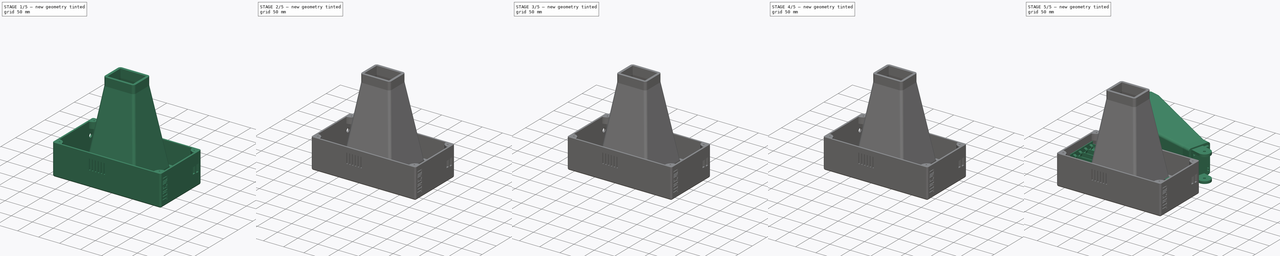
[diagram: build sequence overview — one tinted view per stage of 5, left to right]
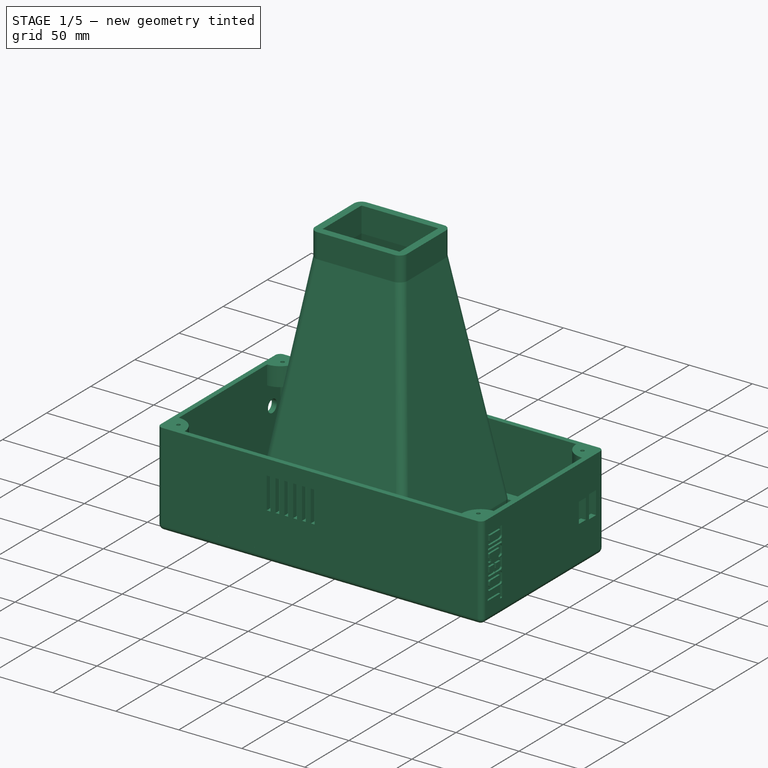
[diagram: stage 1 of 5 — iso view after this stage's code; geometry added in this stage tinted green]
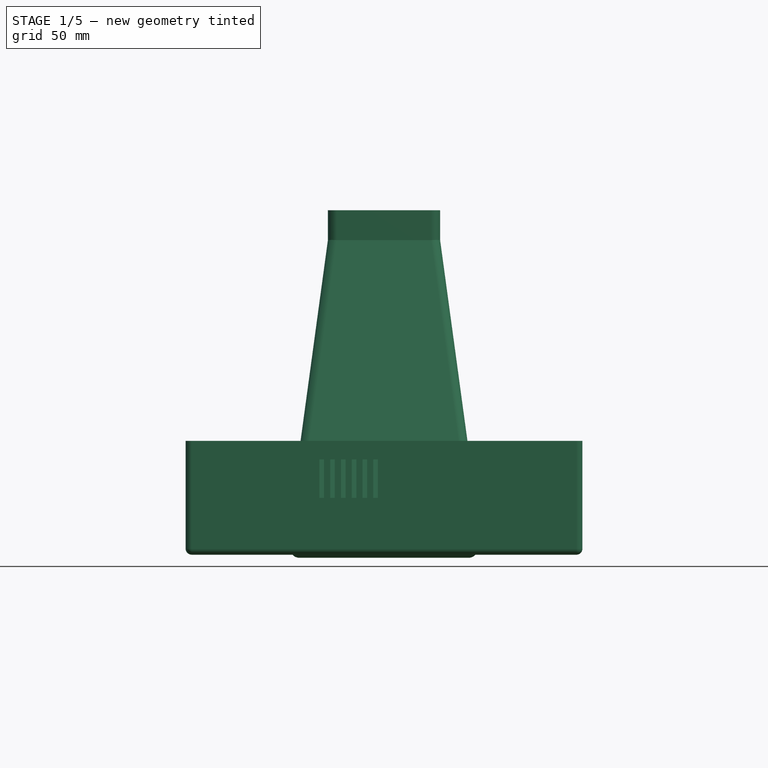
[diagram: stage 1 of 5 — front view after this stage's code; geometry added in this stage tinted green]
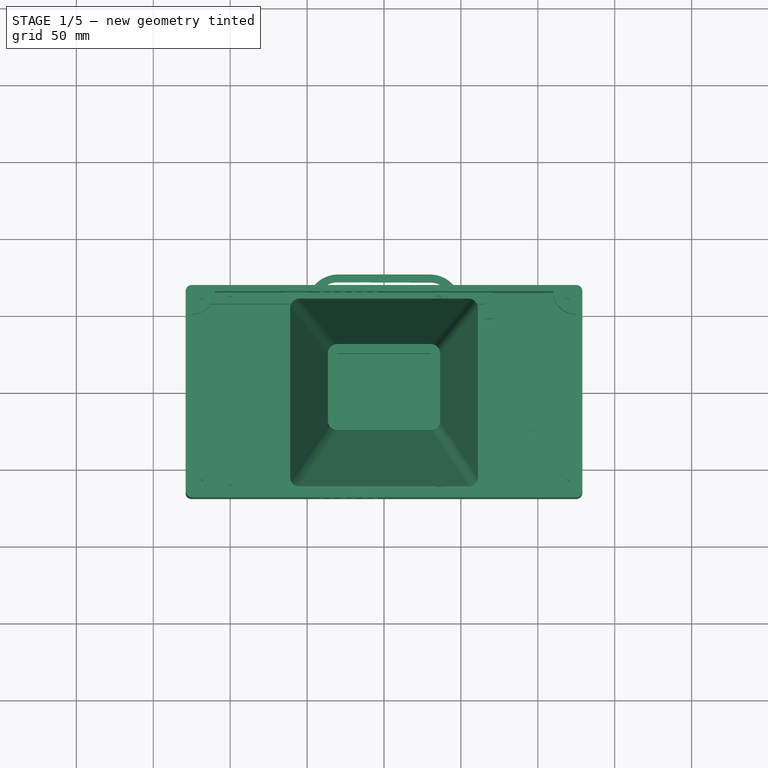
[diagram: stage 1 of 5 — top view after this stage's code; geometry added in this stage tinted green]
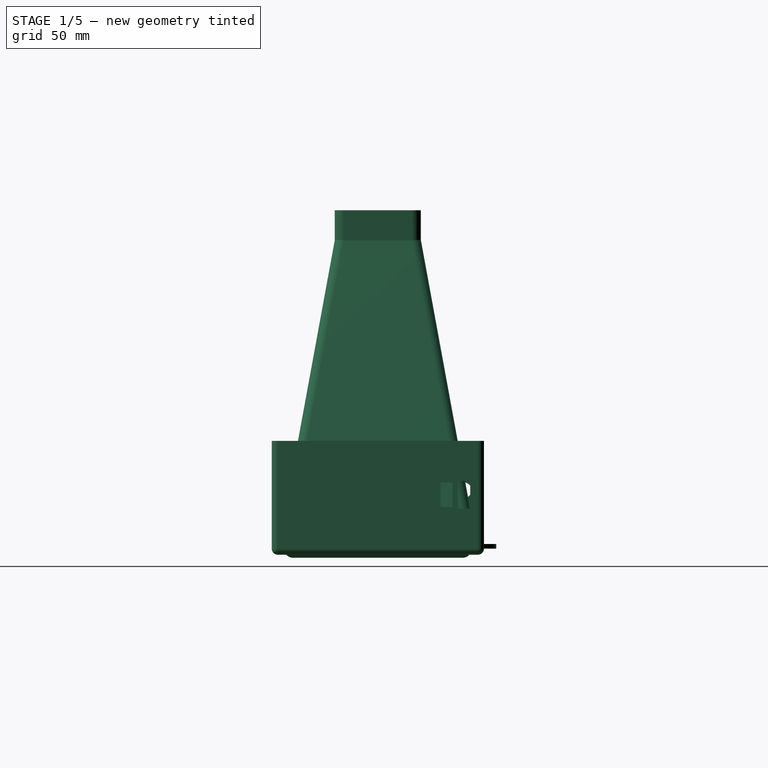
[diagram: stage 1 of 5 — right view after this stage's code; geometry added in this stage tinted green]
FCSTD DOCUMENT  (FreeCAD 0.20R)
Label: Encapsulado FInal
License: All rights reserved
LicenseURL: http://en.wikipedia.org/wiki/All_rights_reserved
objects: Sketcher::SketchObject×71, PartDesign::Pad×45, PartDesign::Pocket×37, PartDesign::Fillet×26, PartDesign::Plane×15, PartDesign::Body×14, Part::Feature×10, App::Part×5, PartDesign::Thickness×3, Part::Compound×2, Part::Compound2×1, PartDesign::Hole×1
note: 336 computed .brp shape members not serialized (recipe doc carries the construction recipe); baked Part::Feature solids carry a one-line shape summary decoded from their .brp

FEATURE [Sketcher::SketchObject] Sketch
  FullyConstrained = true
  MapMode = 5
  Support = -> [XY_Plane001]
  sketch-geometry (4):
    g0: LineSegment StartX=-125 StartY=65 StartZ=0 EndX=125 EndY=65 EndZ=0
    g1: LineSegment StartX=125 StartY=65 StartZ=0 EndX=125 EndY=-65 EndZ=0
    g2: LineSegment StartX=125 StartY=-65 StartZ=0 EndX=-125 EndY=-65 EndZ=0
    g3: LineSegment StartX=-125 StartY=-65 StartZ=0 EndX=-125 EndY=65 EndZ=0
  constraints (11):
    c: Coincident(g0,g1)
    c: Coincident(g1,g2)
    c: Coincident(g2,g3)
    c: Coincident(g3,g0)
    c: Horizontal(g0)
    c: Horizontal(g2)
    c: Vertical(g1)
    c: Vertical(g3)
    c: Symmetric(g1,g0,g-1)
    c: DistanceX(g2,g2) = 250
    c: DistanceY(g1,g1) = 130
FEATURE [PartDesign::Pad] Pad
  Direction = (0,0,1)
  Length = 70
  Length2 = 10
  Profile = -> Sketch
  ReferenceAxis = -> Sketch [N_Axis]
  Type = 0
FEATURE [PartDesign::Thickness] Thickness
  Base = -> Pad [Face6]
  BaseFeature = -> Pad
  Intersection = false
  Join = 0
  Mode = 0
  SupportTransform = false
  Value = 4
FEATURE [PartDesign::Body] Body004  label="SOPORTE"
  Group = -> [Sketch009,Pad007]
  Origin = -> Origin009
  Placement = pos=(-25,0,20) rot=(0,0,1;0rad)
  Tip = -> Pad007
FEATURE [Sketcher::SketchObject] Sketch010
  ExternalGeometry = -> [Thickness]
  FullyConstrained = false
  MapMode = 5
  Support = -> [Thickness]
  sketch-geometry (16):
    g0: LineSegment StartX=-125 StartY=65 StartZ=0 EndX=70.5 EndY=65 EndZ=0
    g1: LineSegment StartX=70.5 StartY=65 StartZ=0 EndX=70.5 EndY=57.93 EndZ=0
    g2: LineSegment StartX=65.5 StartY=57.6 StartZ=0 EndX=-125 EndY=57.6 EndZ=0
    g3: LineSegment StartX=-125 StartY=57.6 StartZ=0 EndX=-125 EndY=65 EndZ=0
    g4: LineSegment StartX=65.5 StartY=57.6 StartZ=0 EndX=65.5 EndY=48.1 EndZ=0
    g5: LineSegment StartX=65.5 StartY=48.1 StartZ=0 EndX=70.5 EndY=48.1 EndZ=0
    g6: LineSegment StartX=70.5 StartY=48.1 StartZ=0 EndX=70.5 EndY=57.93 EndZ=0
    g7: LineSegment StartX=-125 StartY=-65 StartZ=0 EndX=70.5 EndY=-65 EndZ=0
    g8: LineSegment StartX=70.5 StartY=-65 StartZ=0 EndX=70.5 EndY=-57.93 EndZ=0
    g9: LineSegment StartX=65.5 StartY=-57.6 StartZ=0 EndX=-125 EndY=-57.6 EndZ=0
    g10: LineSegment StartX=-125 StartY=-57.6 StartZ=0 EndX=-125 EndY=-65 EndZ=0
    g11: LineSegment StartX=65.5 StartY=-48.1 StartZ=0 EndX=70.5 EndY=-48.1 EndZ=0
    g12: LineSegment StartX=70.5 StartY=-48.1 StartZ=0 EndX=70.5 EndY=-57.93 EndZ=0
    g13: LineSegment StartX=65.5 StartY=57.6 StartZ=0 EndX=65.5 EndY=65 EndZ=0
    g14: LineSegment StartX=65.5 StartY=-57.6 StartZ=0 EndX=65.5 EndY=-65 EndZ=0
    g15: LineSegment StartX=65.5 StartY=-48.1 StartZ=0 EndX=65.5 EndY=-57.6 EndZ=0
  constraints (44):
    c: Coincident(g0,g1)
    c: Coincident(g2,g3)
    c: Coincident(g3,g0)
    c: Horizontal(g0)
    c: Horizontal(g2)
    c: Vertical(g1)
    c: Vertical(g3)
    c: Coincident(g0,g-4)
    c: DistanceX(g0,g0) = 195.5
    c: Coincident(g4,g5)
    c: Coincident(g5,g6)
    c: Horizontal(g5)
    c: Vertical(g4)
    c: Vertical(g6)
    c: DistanceX(g5,g5) = 5
    c: Coincident(g7,g8)
    c: Coincident(g9,g10)
    c: Coincident(g10,g7)
    c: Horizontal(g7)
    c: Horizontal(g9)
    c: Vertical(g8)
    c: Vertical(g10)
    c: Coincident(g7,g-5)
    c: DistanceX(g7,g7) = 195.5
    c: Coincident(g11,g12)
    c: Horizontal(g11)
    c: Vertical(g12)
    c: DistanceX(g11,g11) = 5
    c: Coincident(g2,g4)
    c: Coincident(g1,g6)
    c: Coincident(g12,g8)
    c: Coincident(g13,g2)
    c: PointOnObject(g13,g0)
    c: Vertical(g13)
    c: DistanceY(g13,g13) = 7.4
    c: DistanceY(g4,g4) = 9.5
    c: Coincident(g14,g9)
    c: PointOnObject(g14,g7)
    c: Vertical(g14)
    c: DistanceY(g14,g14) = 7.4
    c: Coincident(g15,g11)
    c: Coincident(g15,g9)
    c: Vertical(g15)
    c: DistanceY(g15,g15) = 9.5
FEATURE [PartDesign::Pad] Pad008
  BaseFeature = -> Thickness
  Direction = (0,0,1)
  Length = 20
  Length2 = 10
  Profile = -> Sketch010
  ReferenceAxis = -> Sketch010 [N_Axis]
  Type = 0
FEATURE [Sketcher::SketchObject] Sketch015
  FullyConstrained = false
  MapMode = 5
  Support = -> [XY_Plane010]
  sketch-geometry (8):
    g0: LineSegment StartX=-124.991 StartY=69 StartZ=0 EndX=124.948 EndY=69 EndZ=0
    g1: LineSegment StartX=129 StartY=64.9482 StartZ=0 EndX=129 EndY=-64.9845 EndZ=0
    g2: LineSegment StartX=124.985 StartY=-69 StartZ=0 EndX=-124.984 EndY=-69 EndZ=0
    g3: LineSegment StartX=-129 StartY=-64.9844 StartZ=0 EndX=-129 EndY=64.9908 EndZ=0
    g4: ArcOfCircle CenterX=124.948 CenterY=64.9482 CenterZ=0 NormalX=0 NormalY=0 NormalZ=1 AngleXU=0 Radius=4.05179 StartAngle=0 EndAngle=1.5708
    g5: ArcOfCircle CenterX=124.985 CenterY=-64.9845 CenterZ=0 NormalX=0 NormalY=0 NormalZ=1 AngleXU=0 Radius=4.01546 StartAngle=4.71239 EndAngle=6.28319
    g6: ArcOfCircle CenterX=-124.984 CenterY=-64.9844 CenterZ=0 NormalX=0 NormalY=0 NormalZ=1 AngleXU=0 Radius=4.01557 StartAngle=3.14159 EndAngle=4.71239
    g7: ArcOfCircle CenterX=-124.991 CenterY=64.9908 CenterZ=0 NormalX=0 NormalY=0 NormalZ=1 AngleXU=0 Radius=4.00925 StartAngle=1.5708 EndAngle=3.14159
  constraints (12):
    c: Horizontal(g0)
    c: Horizontal(g2)
    c: Vertical(g1)
    c: Vertical(g3)
    c: Tangent(g0,g4) = 1.5708
    c: Tangent(g1,g4) = 1.5708
    c: Tangent(g2,g5) = 1.5708
    c: Tangent(g1,g5) = 1.5708
    c: Tangent(g3,g6) = 1.5708
    c: Tangent(g2,g6) = 1.5708
    c: Tangent(g0,g7) = 1.5708
    c: Tangent(g3,g7) = 1.5708
FEATURE [PartDesign::Pad] Pad010
  Direction = (0,0,1)
  Length = 4
  Length2 = 10
  Profile = -> Sketch015
  ReferenceAxis = -> Sketch015 [N_Axis]
  Type = 0
FEATURE [Sketcher::SketchObject] Sketch016
  ExternalGeometry = -> [Pad010]
  FullyConstrained = true
  MapMode = 5
  Placement = pos=(0,0,4) rot=(0,0,1;0rad)
  Support = -> [Pad010]
  sketch-geometry (12):
    g0: Circle CenterX=119 CenterY=59 CenterZ=0 NormalX=0 NormalY=0 NormalZ=1 AngleXU=0 Radius=1.5
    g1: LineSegment StartX=119 StartY=59 StartZ=0 EndX=119 EndY=69 EndZ=0
    g2: LineSegment StartX=119 StartY=59 StartZ=0 EndX=129 EndY=59 EndZ=0
    g3: Circle CenterX=119 CenterY=-59 CenterZ=0 NormalX=0 NormalY=0 NormalZ=1 AngleXU=0 Radius=1.5
    g4: LineSegment StartX=119 StartY=-59 StartZ=0 EndX=129 EndY=-59 EndZ=0
    g5: LineSegment StartX=119 StartY=-59 StartZ=0 EndX=119 EndY=-69 EndZ=0
    g6: Circle CenterX=-119 CenterY=-59 CenterZ=0 NormalX=0 NormalY=0 NormalZ=1 AngleXU=0 Radius=1.5
    g7: LineSegment StartX=-119 StartY=-59 StartZ=0 EndX=-129 EndY=-59 EndZ=0
    g8: LineSegment StartX=-119 StartY=-59 StartZ=0 EndX=-119 EndY=-69 EndZ=0
    g9: Circle CenterX=-119 CenterY=59 CenterZ=0 NormalX=0 NormalY=0 NormalZ=1 AngleXU=0 Radius=1.5
    g10: LineSegment StartX=-119 StartY=59 StartZ=0 EndX=-119 EndY=69 EndZ=0
    g11: LineSegment StartX=-119 StartY=59 StartZ=0 EndX=-129 EndY=59 EndZ=0
  constraints (36):
    c: Radius(g0) = 1.5
    c: Coincident(g1,g0)
    c: PointOnObject(g1,g-3)
    c: Vertical(g1)
    c: Coincident(g2,g0)
    c: PointOnObject(g2,g-4)
    c: Horizontal(g2)
    c: DistanceY(g1,g1) = 10
    c: DistanceX(g2,g2) = 10
    c: Radius(g3) = 1.5
    c: Coincident(g4,g3)
    c: PointOnObject(g4,g-4)
    c: Horizontal(g4)
    c: Coincident(g5,g3)
    c: PointOnObject(g5,g-5)
    c: Vertical(g5)
    c: DistanceX(g4,g4) = 10
    c: DistanceY(g5,g5) = 10
    c: Radius(g6) = 1.5
    c: Coincident(g7,g6)
    c: PointOnObject(g7,g-6)
    c: Horizontal(g7)
    c: Coincident(g8,g6)
    c: PointOnObject(g8,g-5)
    c: Vertical(g8)
    c: DistanceY(g8,g8) = 10
    c: DistanceX(g7,g7) = 10
    c: Radius(g9) = 1.5
    c: Coincident(g10,g9)
    c: PointOnObject(g10,g-3)
    c: Vertical(g10)
    c: Coincident(g11,g9)
    c: PointOnObject(g11,g-6)
    c: Horizontal(g11)
    c: DistanceX(g11,g11) = 10
    c: DistanceY(g10,g10) = 10
FEATURE [PartDesign::Hole] Hole002
  BaseFeature = -> Pad010
  CustomThreadClearance = 0
  Depth = 24
  DepthType = 0
  Diameter = 3.4
  DrillForDepth = false
  DrillPoint = 1
  DrillPointAngle = 118
  HoleCutCountersinkAngle = 90
  HoleCutCustomValues = false
  HoleCutDepth = 3
  HoleCutDiameter = 6.1
  HoleCutType = 1
  ModelThread = false
  Profile = -> Sketch016
  Tapered = false
  TaperedAngle = 90
  ThreadClass = 0
  ThreadDepth = 24
  ThreadDepthType = 0
  ThreadDirection = 0
  ThreadFit = 0
  ThreadSize = 9
  ThreadType = 1
  Threaded = false
  UseCustomThreadClearance = false
FEATURE [Sketcher::SketchObject] Sketch017
  ExternalGeometry = -> [Pad008]
  FullyConstrained = false
  MapMode = 5
  Placement = pos=(0,0,20) rot=(0,0,1;0rad)
  Support = -> [Pad008]
  sketch-geometry (12):
    g0: Circle CenterX=35.5 CenterY=61.5 CenterZ=0 NormalX=0 NormalY=0 NormalZ=1 AngleXU=0 Radius=1.5
    g1: LineSegment StartX=35.5 StartY=61.5 StartZ=0 EndX=35.5 EndY=65 EndZ=0
    g2: LineSegment StartX=35.5 StartY=61.5 StartZ=0 EndX=70.5 EndY=61.5 EndZ=0
    g3: Circle CenterX=-100 CenterY=61.5 CenterZ=0 NormalX=0 NormalY=0 NormalZ=1 AngleXU=0 Radius=1.25558
    g4: LineSegment StartX=-100 StartY=61.5 StartZ=0 EndX=-100 EndY=65 EndZ=0
    g5: LineSegment StartX=-100 StartY=61.5 StartZ=0 EndX=-125 EndY=61.5 EndZ=0
    g6: Circle CenterX=-100 CenterY=-61.5 CenterZ=0 NormalX=0 NormalY=0 NormalZ=1 AngleXU=0 Radius=1.5
    g7: LineSegment StartX=-100 StartY=-61.5 StartZ=0 EndX=-100 EndY=-65 EndZ=0
    g8: LineSegment StartX=-100 StartY=-61.5 StartZ=0 EndX=-125 EndY=-61.5 EndZ=0
    g9: Circle CenterX=35.5 CenterY=-61.5 CenterZ=0 NormalX=0 NormalY=0 NormalZ=1 AngleXU=0 Radius=1.5
    g10: LineSegment StartX=35.5 StartY=-61.5 StartZ=0 EndX=35.5 EndY=-65 EndZ=0
    g11: LineSegment StartX=35.5 StartY=-61.5 StartZ=0 EndX=70.5 EndY=-61.5 EndZ=0
  constraints (35):
    c: Radius(g0) = 1.5
    c: Coincident(g1,g0)
    c: PointOnObject(g1,g-5)
    c: Coincident(g2,g0)
    c: PointOnObject(g2,g-4)
    c: Horizontal(g2)
    c: Vertical(g1)
    c: DistanceX(g2,g2) = 35
    c: DistanceY(g1,g1) = 3.5
    c: Coincident(g4,g3)
    c: PointOnObject(g4,g-5)
    c: Vertical(g4)
    c: Coincident(g5,g3)
    c: PointOnObject(g5,g-3)
    c: Horizontal(g5)
    c: DistanceY(g4,g4) = 3.5
    c: DistanceX(g5,g5) = 25
    c: Coincident(g7,g6)
    c: PointOnObject(g7,g-8)
    c: Vertical(g7)
    c: Coincident(g8,g6)
    c: PointOnObject(g8,g-7)
    c: Horizontal(g8)
    c: Radius(g6) = 1.5
    c: DistanceX(g8,g8) = 25
    c: DistanceY(g7,g7) = 3.5
    c: Radius(g9) = 1.5
    c: Coincident(g10,g9)
    c: PointOnObject(g10,g-8)
    c: Vertical(g10)
    c: Coincident(g11,g9)
    c: PointOnObject(g11,g-6)
    c: Horizontal(g11)
    c: DistanceX(g11,g11) = 35
    c: DistanceY(g10,g10) = 3.5
FEATURE [PartDesign::Pocket] Pocket
  BaseFeature = -> Pad008
  Direction = (0,0,-1)
  Length = 15
  Length2 = 5
  Profile = -> Sketch017
  ReferenceAxis = -> Sketch017 [N_Axis]
  Type = 0
FEATURE [Sketcher::SketchObject] Sketch018
  ExternalGeometry = -> [Pocket]
  FullyConstrained = true
  MapMode = 5
  Placement = pos=(0,0,70) rot=(0,0,1;0rad)
  Support = -> [Pocket]
  sketch-geometry (24):
    g0: LineSegment StartX=-125 StartY=65 StartZ=0 EndX=-110 EndY=65 EndZ=0
    g1: LineSegment StartX=-125 StartY=65 StartZ=0 EndX=-125 EndY=50 EndZ=0
    g2: ArcOfCircle CenterX=-125 CenterY=65 CenterZ=0 NormalX=0 NormalY=0 NormalZ=1 AngleXU=0 Radius=15 StartAngle=4.71239 EndAngle=6.28319
    g3: Circle CenterX=-119 CenterY=59 CenterZ=0 NormalX=0 NormalY=0 NormalZ=1 AngleXU=0 Radius=1.5
    g4: LineSegment StartX=-119 StartY=59 StartZ=0 EndX=-125 EndY=59 EndZ=0
    g5: LineSegment StartX=-119 StartY=59 StartZ=0 EndX=-119 EndY=65 EndZ=0
    g6: LineSegment StartX=125 StartY=65 StartZ=0 EndX=110 EndY=65 EndZ=0
    g7: LineSegment StartX=125 StartY=65 StartZ=0 EndX=125 EndY=50 EndZ=0
    g8: ArcOfCircle CenterX=125 CenterY=65 CenterZ=0 NormalX=0 NormalY=0 NormalZ=1 AngleXU=0 Radius=15 StartAngle=3.14159 EndAngle=4.71239
    g9: Circle CenterX=119 CenterY=59 CenterZ=0 NormalX=0 NormalY=0 NormalZ=1 AngleXU=0 Radius=1.5
    g10: LineSegment StartX=119 StartY=59 StartZ=0 EndX=125 EndY=59 EndZ=0
    g11: LineSegment StartX=119 StartY=59 StartZ=0 EndX=119 EndY=65 EndZ=0
    g12: LineSegment StartX=125 StartY=-65 StartZ=0 EndX=125 EndY=-50 EndZ=0
    g13: LineSegment StartX=125 StartY=-65 StartZ=0 EndX=110 EndY=-65 EndZ=0
    g14: ArcOfCircle CenterX=125 CenterY=-65 CenterZ=0 NormalX=0 NormalY=0 NormalZ=1 AngleXU=0 Radius=15 StartAngle=1.5708 EndAngle=3.14159
    g15: Circle CenterX=119 CenterY=-59 CenterZ=0 NormalX=0 NormalY=0 NormalZ=1 AngleXU=0 Radius=1.5
    g16: LineSegment StartX=119 StartY=-59 StartZ=0 EndX=125 EndY=-59 EndZ=0
    g17: LineSegment StartX=119 StartY=-59 StartZ=0 EndX=119 EndY=-65 EndZ=0
    g18: LineSegment StartX=-125 StartY=-65 StartZ=0 EndX=-110 EndY=-65 EndZ=0
    g19: LineSegment StartX=-125 StartY=-65 StartZ=0 EndX=-125 EndY=-50 EndZ=0
    g20: ArcOfCircle CenterX=-125 CenterY=-65 CenterZ=0 NormalX=0 NormalY=0 NormalZ=1 AngleXU=0 Radius=15 StartAngle=1e-16 EndAngle=1.5708
    g21: Circle CenterX=-119 CenterY=-59 CenterZ=0 NormalX=0 NormalY=0 NormalZ=1 AngleXU=0 Radius=1.5
    g22: LineSegment StartX=-119 StartY=-59 StartZ=0 EndX=-119 EndY=-65 EndZ=0
    g23: LineSegment StartX=-119 StartY=-59 StartZ=0 EndX=-125 EndY=-59 EndZ=0
  constraints (68):
    c: Coincident(g0,g-4)
    c: PointOnObject(g0,g-3)
    c: Coincident(g1,g0)
    c: PointOnObject(g1,g-4)
    c: DistanceX(g0,g0) = 15
    c: Coincident(g2,g0)
    c: Coincident(g2,g0)
    c: Coincident(g2,g1)
    c: Radius(g3) = 1.5
    c: Coincident(g4,g3)
    c: PointOnObject(g4,g1)
    c: Horizontal(g4)
    c: Coincident(g5,g3)
    c: PointOnObject(g5,g0)
    c: Vertical(g5)
    c: DistanceY(g5,g5) = 6
    c: DistanceX(g4,g4) = 6
    c: Coincident(g6,g-6)
    c: PointOnObject(g6,g-3)
    c: Coincident(g7,g6)
    c: PointOnObject(g7,g-6)
    c: DistanceX(g6,g6) = 15
    c: Coincident(g8,g6)
    c: Coincident(g8,g6)
    c: Coincident(g8,g7)
    c: Radius(g9) = 1.5
    c: Coincident(g10,g9)
    c: PointOnObject(g10,g7)
    c: Horizontal(g10)
    c: Coincident(g11,g9)
    c: PointOnObject(g11,g6)
    c: Vertical(g11)
    c: DistanceX(g10,g10) = 6
    c: DistanceY(g11,g11) = 6
    c: Coincident(g12,g-6)
    c: PointOnObject(g12,g-6)
    c: Coincident(g13,g12)
    c: PointOnObject(g13,g-5)
    c: DistanceY(g12,g12) = 15
    c: Coincident(g14,g12)
    c: Coincident(g14,g13)
    c: Coincident(g14,g12)
    c: Radius(g15) = 1.5
    c: Coincident(g16,g15)
    c: PointOnObject(g16,g12)
    c: Horizontal(g16)
    c: Coincident(g17,g15)
    c: PointOnObject(g17,g13)
    c: Vertical(g17)
    c: DistanceX(g16,g16) = 6
    c: DistanceY(g17,g17) = 6
    c: Coincident(g18,g-5)
    c: PointOnObject(g18,g-5)
    c: Coincident(g19,g18)
    c: PointOnObject(g19,g-4)
    c: DistanceX(g18,g18) = 15
    c: Coincident(g20,g18)
    c: Coincident(g20,g18)
    c: Coincident(g20,g19)
    c: Radius(g21) = 1.5
    c: Coincident(g22,g21)
    c: PointOnObject(g22,g18)
    c: Vertical(g22)
    c: Coincident(g23,g21)
    c: PointOnObject(g23,g19)
    c: Horizontal(g23)
    c: DistanceX(g23,g23) = 6
    c: DistanceY(g22,g22) = 6
FEATURE [PartDesign::Pad] Pad011
  BaseFeature = -> Pocket
  Direction = (0,0,1)
  Length = 15
  Length2 = 10
  Profile = -> Sketch018
  ReferenceAxis = -> Sketch018 [N_Axis]
  Reversed = true
  Type = 0
FEATURE [Sketcher::SketchObject] Sketch019
  FullyConstrained = false
  MapMode = 5
  Placement = pos=(0,0,-4) rot=(1,0,0;3.14159rad)
  Support = -> [Pad011]
  sketch-geometry (4):
    g0: LineSegment StartX=-111.093 StartY=45.8732 StartZ=0 EndX=50.9068 EndY=45.8732 EndZ=0
    g1: LineSegment StartX=50.9068 StartY=45.8732 StartZ=0 EndX=50.9068 EndY=-46.1268 EndZ=0
    g2: LineSegment StartX=50.9068 StartY=-46.1268 StartZ=0 EndX=-111.093 EndY=-46.1268 EndZ=0
    g3: LineSegment StartX=-111.093 StartY=-46.1268 StartZ=0 EndX=-111.093 EndY=45.8732 EndZ=0
  constraints (10):
    c: Coincident(g0,g1)
    c: Coincident(g1,g2)
    c: Coincident(g2,g3)
    c: Coincident(g3,g0)
    c: Horizontal(g0)
    c: Horizontal(g2)
    c: Vertical(g1)
    c: Vertical(g3)
    c: DistanceX(g0,g0) = 162
    c: DistanceY(g1,g1) = 92
FEATURE [PartDesign::Pocket] Pocket001
  BaseFeature = -> Pad011
  Direction = (0,0,1)
  Length = 4
  Length2 = 5
  Profile = -> Sketch019
  ReferenceAxis = -> Sketch019 [N_Axis]
  Type = 0
FEATURE [PartDesign::Body] Body011  label="supp_cover001"
  Group = -> [CopyDatumPlane004,Sketch075,Pad050,Sketch076,Pocket033,Sketch077,Pocket034,Fillet024,Fillet025,Sketch078,Pocket035]
  Origin = -> Origin016
  Tip = -> Pocket035
FEATURE [Sketcher::SketchObject] Sketch079
  FullyConstrained = false
  MapMode = 5
  Placement = pos=(0,-55,0) rot=(0,0.707107,0.707107;3.14159rad)
  sketch-geometry (8):
    g0: LineSegment StartX=-55 StartY=9 StartZ=0 EndX=-50 EndY=9 EndZ=0
    g1: LineSegment StartX=-50 StartY=9 StartZ=0 EndX=-50 EndY=4 EndZ=0
    g2: LineSegment StartX=-50 StartY=4 StartZ=0 EndX=-55 EndY=4 EndZ=0
    g3: LineSegment StartX=-55 StartY=4 StartZ=0 EndX=-55 EndY=9 EndZ=0
    g4: LineSegment StartX=55 StartY=4 StartZ=0 EndX=50 EndY=4 EndZ=0
    g5: LineSegment StartX=50 StartY=4 StartZ=0 EndX=50 EndY=9 EndZ=0
    g6: LineSegment StartX=50 StartY=9 StartZ=0 EndX=55 EndY=9 EndZ=0
    g7: LineSegment StartX=55 StartY=9 StartZ=0 EndX=55 EndY=4 EndZ=0
  constraints (20):
    c: Coincident(g0,g1)
    c: Coincident(g1,g2)
    c: Coincident(g2,g3)
    c: Coincident(g3,g0)
    c: Horizontal(g0)
    c: Horizontal(g2)
    c: Vertical(g1)
    c: Vertical(g3)
    c: Coincident(g4,g5)
    c: Coincident(g5,g6)
    c: Coincident(g6,g7)
    c: Coincident(g7,g4)
    c: Horizontal(g4)
    c: Horizontal(g6)
    c: Vertical(g5)
    c: Vertical(g7)
    c: DistanceX(g4,g4) = 5
    c: DistanceX(g0,g0) = 5
    c: DistanceY(g5,g5) = 5
    c: DistanceY(g1,g1) = 5
FEATURE [Sketcher::SketchObject] Sketch080
  FullyConstrained = true
  MapMode = 5
  Support = -> [XY_Plane017]
  sketch-geometry (4):
    g0: LineSegment StartX=-55 StartY=55 StartZ=0 EndX=55 EndY=55 EndZ=0
    g1: LineSegment StartX=55 StartY=55 StartZ=0 EndX=55 EndY=-55 EndZ=0
    g2: LineSegment StartX=55 StartY=-55 StartZ=0 EndX=-55 EndY=-55 EndZ=0
    g3: LineSegment StartX=-55 StartY=-55 StartZ=0 EndX=-55 EndY=55 EndZ=0
  constraints (10):
    c: Coincident(g0,g1)
    c: Coincident(g1,g2)
    c: Coincident(g2,g3)
    c: Coincident(g3,g0)
    c: Horizontal(g2)
    c: Vertical(g1)
    c: DistanceX(g0,g0) = 110
    c: DistanceY(g1,g1) = 110
    c: Symmetric(g0,g0,g-2)
    c: Symmetric(g2,g0,g-1)
FEATURE [PartDesign::Pad] Pad051
  Direction = (0,0,1)
  Length = 220
  Length2 = 10
  Profile = -> Sketch080
  ReferenceAxis = -> Sketch080 [N_Axis]
  Type = 0
FEATURE [Sketcher::SketchObject] Sketch081
  FullyConstrained = true
  MapMode = 5
  Placement = pos=(0,-55,0) rot=(1,0,0;1.5708rad)
  Support = -> [Pad051]
  sketch-geometry (18):
    g0: GeomPoint X=0 Y=220 Z=0
    g1: GeomPoint X=-30.5 Y=220 Z=0
    g2: GeomPoint X=30.5 Y=220 Z=0
    g3: GeomPoint X=0 Y=20 Z=0
    g4: GeomPoint X=-55 Y=20 Z=0
    g5: GeomPoint X=55 Y=20 Z=0
    g6: GeomPoint X=-30.5 Y=200 Z=0
    g7: GeomPoint X=30.5 Y=200 Z=0
    g8: GeomPoint X=-55 Y=220 Z=0
    g9: GeomPoint X=55 Y=220 Z=0
    g10: LineSegment StartX=-55 StartY=20 StartZ=0 EndX=-30.5 EndY=200 EndZ=0
    g11: LineSegment StartX=-30.5 StartY=220 StartZ=0 EndX=-30.5 EndY=200 EndZ=0
    g12: LineSegment StartX=-55 StartY=220 StartZ=0 EndX=-30.5 EndY=220 EndZ=0
    g13: LineSegment StartX=-55 StartY=220 StartZ=0 EndX=-55 EndY=20 EndZ=0
    g14: LineSegment StartX=30.5 StartY=220 StartZ=0 EndX=55 EndY=220 EndZ=0
    g15: LineSegment StartX=55 StartY=20 StartZ=0 EndX=55 EndY=220 EndZ=0
    g16: LineSegment StartX=55 StartY=20 StartZ=0 EndX=30.5 EndY=200 EndZ=0
    g17: LineSegment StartX=30.5 StartY=200 StartZ=0 EndX=30.5 EndY=220 EndZ=0
  constraints (34):
    c: Vertical(g-1,g0)
    c: DistanceY(g-1,g0) = 220
    c: Horizontal(g2,g0)
    c: DistanceX(g1,g2) = 61
    c: Symmetric(g1,g2,g-2)
    c: Vertical(g-1,g3)
    c: DistanceY(g-1,g3) = 20
    c: Horizontal(g3,g5)
    c: DistanceX(g4,g5) = 110
    c: Symmetric(g4,g5,g-2)
    c: Vertical(g7,g2)
    c: Vertical(g6,g1)
    c: Horizontal(g7,g6)
    c: DistanceY(g7,g2) = 20
    c: Vertical(g9,g5)
    c: Vertical(g4,g8)
    c: Horizontal(g8,g0)
    c: Horizontal(g9,g2)
    c: Coincident(g10,g4)
    c: Coincident(g10,g6)
    c: Coincident(g11,g1)
    c: Coincident(g11,g10)
    c: Coincident(g12,g8)
    c: Coincident(g12,g11)
    c: Coincident(g13,g12)
    c: Coincident(g13,g10)
    c: Coincident(g14,g2)
    c: Coincident(g14,g9)
    c: Coincident(g15,g5)
    c: Coincident(g15,g14)
    c: Coincident(g16,g15)
    c: Coincident(g16,g7)
    c: Coincident(g17,g16)
    c: Coincident(g17,g14)
FEATURE [PartDesign::Pocket] Pocket036
  BaseFeature = -> Pad051
  Direction = (0,1,-2e-16)
  Length = 158
  Length2 = 5
  Profile = -> Sketch081
  ReferenceAxis = -> Sketch081 [N_Axis]
  Type = 0
FEATURE [PartDesign::Plane] DatumPlane012
  Length = 156.577
  MapMode = 5
  Placement = pos=(55,0,0) rot=(0.57735,0.57735,0.57735;2.0944rad)
  ResizeMode = 0
  Support = -> [Pocket036]
  Width = 279.577
FEATURE [Sketcher::SketchObject] Sketch082
  FullyConstrained = true
  MapMode = 5
  Placement = pos=(55,0,0) rot=(0.57735,0.57735,0.57735;2.0944rad)
  Support = -> [DatumPlane012]
  sketch-geometry (18):
    g0: GeomPoint X=0 Y=220 Z=0
    g1: GeomPoint X=-22 Y=220 Z=0
    g2: GeomPoint X=22 Y=220 Z=0
    g3: GeomPoint X=-22 Y=200 Z=0
    g4: GeomPoint X=22 Y=200 Z=0
    g5: GeomPoint X=0 Y=20 Z=0
    g6: GeomPoint X=-55 Y=20 Z=0
    g7: GeomPoint X=55 Y=20 Z=0
    g8: GeomPoint X=-55 Y=220 Z=0
    g9: GeomPoint X=55 Y=220 Z=0
    g10: LineSegment StartX=-55 StartY=20 StartZ=0 EndX=-22 EndY=200 EndZ=0
    g11: LineSegment StartX=-22 StartY=220 StartZ=0 EndX=-22 EndY=200 EndZ=0
    g12: LineSegment StartX=-55 StartY=220 StartZ=0 EndX=-22 EndY=220 EndZ=0
    g13: LineSegment StartX=-55 StartY=220 StartZ=0 EndX=-55 EndY=20 EndZ=0
    g14: LineSegment StartX=22 StartY=220 StartZ=0 EndX=22 EndY=200 EndZ=0
    g15: LineSegment StartX=22 StartY=200 StartZ=0 EndX=55 EndY=20 EndZ=0
    g16: LineSegment StartX=55 StartY=20 StartZ=0 EndX=55 EndY=220 EndZ=0
    g17: LineSegment StartX=55 StartY=220 StartZ=0 EndX=22 EndY=220 EndZ=0
  constraints (34):
    c: Vertical(g0,g-1)
    c: DistanceY(g-1,g0) = 220
    c: Horizontal(g2,g0)
    c: DistanceX(g1,g2) = 44
    c: Symmetric(g1,g2,g-2)
    c: Vertical(g3,g1)
    c: Vertical(g4,g2)
    c: Horizontal(g4,g3)
    c: DistanceY(g4,g2) = 20
    c: Vertical(g-1,g5)
    c: DistanceY(g-1,g5) = 20
    c: Horizontal(g7,g5)
    c: DistanceX(g6,g7) = 110
    c: Symmetric(g6,g7,g-2)
    c: Horizontal(g9,g2)
    c: Horizontal(g8,g1)
    c: Vertical(g9,g7)
    c: Vertical(g6,g8)
    c: Coincident(g10,g6)
    c: Coincident(g10,g3)
    c: Coincident(g11,g1)
    c: Coincident(g11,g10)
    c: Coincident(g12,g8)
    c: Coincident(g12,g11)
    c: Coincident(g13,g12)
    c: Coincident(g13,g10)
    c: Coincident(g14,g2)
    c: Coincident(g14,g4)
    c: Coincident(g15,g14)
    c: Coincident(g15,g7)
    c: Coincident(g16,g15)
    c: Coincident(g16,g9)
    c: Coincident(g17,g16)
    c: Coincident(g17,g14)
FEATURE [PartDesign::Pocket] Pocket037
  BaseFeature = -> Pocket036
  Direction = (-1,0,0)
  Length = 158
  Length2 = 5
  Profile = -> Sketch082
  ReferenceAxis = -> Sketch082 [N_Axis]
  Type = 0
FEATURE [PartDesign::Thickness] Thickness002
  Base = -> Pocket037 [Face13]
  BaseFeature = -> Pocket037
  Intersection = false
  Join = 0
  Mode = 0
  SupportTransform = false
  Value = 6
FEATURE [PartDesign::Body] Body012  label="cono001"
  Group = -> [Sketch080,Pad051,Sketch081,Pocket036,DatumPlane012,Sketch082,Pocket037,Thickness002,Sketch079,Pad052]
  Origin = -> Origin017
  Placement = pos=(-0.100429,-201,-6.06644) rot=(-1,0,0;1.5708rad)
  Tip = -> Pad052
FEATURE [Sketcher::SketchObject] Sketch083
  FullyConstrained = false
  MapMode = 5
  Support = -> [XY_Plane018]
  sketch-geometry (20):
    g0: LineSegment StartX=54.5 StartY=57 StartZ=0 EndX=54.5 EndY=-57 EndZ=0
    g1: LineSegment StartX=54.5 StartY=-57 StartZ=0 EndX=-54.5 EndY=-57 EndZ=0
    g2: LineSegment StartX=-54.5 StartY=-57 StartZ=0 EndX=-54.5 EndY=57 EndZ=0
    g3: GeomPoint X=-30 Y=57 Z=0
    g4: GeomPoint X=30 Y=57 Z=0
    g5: ArcOfCircle CenterX=-30 CenterY=57 CenterZ=0 NormalX=0 NormalY=0 NormalZ=1 AngleXU=0 Radius=20 StartAngle=1.5708 EndAngle=3.14159
    g6: ArcOfCircle CenterX=30 CenterY=57 CenterZ=0 NormalX=0 NormalY=0 NormalZ=1 AngleXU=0 Radius=20 StartAngle=2.5e-15 EndAngle=1.5708
    g7: LineSegment StartX=30 StartY=77 StartZ=0 EndX=-30 EndY=77 EndZ=0
    g8: GeomPoint X=-50 Y=57 Z=0
    g9: GeomPoint X=50 Y=57 Z=0
    g10: LineSegment StartX=-54.5 StartY=57 StartZ=0 EndX=-50 EndY=57 EndZ=0
    g11: LineSegment StartX=54.5 StartY=57 StartZ=0 EndX=50 EndY=57 EndZ=0
    g12: ArcOfCircle CenterX=-30 CenterY=57 CenterZ=0 NormalX=0 NormalY=0 NormalZ=1 AngleXU=0 Radius=14.9762 StartAngle=1.56769 EndAngle=3.14159
    g13: ArcOfCircle CenterX=29.9509 CenterY=56.8139 CenterZ=0 NormalX=0 NormalY=0 NormalZ=1 AngleXU=0 Radius=14.9762 StartAngle=0.0124265 EndAngle=1.56769
    g14: LineSegment StartX=29.9974 StartY=71.79 StartZ=0 EndX=-29.9535 EndY=71.9761 EndZ=0
    g15: GeomPoint X=-44.9762 Y=57 Z=0
    g16: GeomPoint X=44.9259 Y=57 Z=0
    g17: LineSegment StartX=-44.9762 StartY=57 StartZ=0 EndX=-30 EndY=57 EndZ=0
    g18: LineSegment StartX=-30 StartY=57 StartZ=0 EndX=30 EndY=57 EndZ=0
    g19: LineSegment StartX=30 StartY=57 StartZ=0 EndX=44.9259 EndY=57 EndZ=0
  constraints (44):
    c: Coincident(g0,g1)
    c: Coincident(g1,g2)
    c: Horizontal(g1)
    c: Vertical(g0)
    c: DistanceX(g2,g0) = 109
    c: DistanceY(g0,g0) = 114
    c: Symmetric(g2,g0,g-2)
    c: Symmetric(g1,g2,g-1)
    c: Horizontal(g3,g2)
    c: DistanceX(g3,g4) = 60
    c: Symmetric(g3,g4,g-2)
    c: Tangent(g6,g7) = -1.5708
    c: Tangent(g7,g5) = -1.5708
    c: Equal(g5,g6)
    c: Coincident(g5,g3)
    c: Coincident(g6,g4)
    c: DistanceY(g6,g6) = 20
    c: PointOnObject(g8,g5)
    c: Horizontal(g8,g2)
    c: PointOnObject(g9,g6)
    c: Horizontal(g0,g9)
    c: Coincident(g10,g2)
    c: Coincident(g10,g8)
    c: Coincident(g11,g0)
    c: Coincident(g11,g9)
    c: PointOnObject(g5,g10)
    c: PointOnObject(g6,g11)
    c: Tangent(g13,g14) = -1.5708
    c: Tangent(g14,g12) = -1.5708
    c: Equal(g12,g13)
    c: Coincident(g12,g5)
    c: DistanceY(g6,g13) = 14.79
    c: PointOnObject(g15,g12)
    c: Horizontal(g5,g15)
    c: PointOnObject(g16,g13)
    c: Horizontal(g16,g6)
    c: Coincident(g17,g15)
    c: Coincident(g18,g17)
    c: Coincident(g18,g6)
    c: Horizontal(g18)
    c: Coincident(g19,g6)
    c: Coincident(g19,g16)
    c: PointOnObject(g12,g17)
    c: PointOnObject(g13,g19)
FEATURE [PartDesign::Pad] Pad053
  Direction = (0,0,1)
  Length = 3
  Length2 = 10
  Profile = -> Sketch083
  ReferenceAxis = -> Sketch083 [N_Axis]
  Type = 0
FEATURE [PartDesign::Plane] DatumPlane013
  Length = 133.171
  MapMode = 5
  Placement = pos=(0,0,3) rot=(0,0,1;0rad)
  ResizeMode = 0
  Support = -> [Pad053]
  Width = 158.171
FEATURE [Sketcher::SketchObject] Sketch084
  FullyConstrained = true
  MapMode = 5
  Placement = pos=(0,0,3) rot=(0,0,1;0rad)
  Support = -> [DatumPlane013]
  sketch-geometry (4):
    g0: LineSegment StartX=-54.5 StartY=57 StartZ=0 EndX=54.5 EndY=57 EndZ=0
    g1: LineSegment StartX=54.5 StartY=57 StartZ=0 EndX=54.5 EndY=53 EndZ=0
    g2: LineSegment StartX=54.5 StartY=53 StartZ=0 EndX=-54.5 EndY=53 EndZ=0
    g3: LineSegment StartX=-54.5 StartY=53 StartZ=0 EndX=-54.5 EndY=57 EndZ=0
  constraints (11):
    c: Coincident(g0,g1)
    c: Coincident(g1,g2)
    c: Coincident(g2,g3)
    c: Coincident(g3,g0)
    c: Horizontal(g0)
    c: Vertical(g1)
    c: Vertical(g3)
    c: DistanceY(g1,g1) = 4
    c: DistanceX(g0,g0) = 109
    c: Symmetric(g2,g1,g-2)
    c: DistanceY(g-1,g0) = 57
FEATURE [PartDesign::Pad] Pad054
  BaseFeature = -> Pad053
  Direction = (0,0,1)
  Length = 16
  Length2 = 10
  Profile = -> Sketch084
  ReferenceAxis = -> Sketch084 [N_Axis]
  Type = 0
FEATURE [PartDesign::Body] Body013  label="porta_muestra001"
  Group = -> [Sketch083,Pad053,DatumPlane013,Sketch084,Pad054]
  Origin = -> Origin018
  Placement = pos=(-1.68372,-201,-9.16845) rot=(-1,0,0;1.5708rad)
  Tip = -> Pad054
FEATURE [App::Part] Part004  label="CAMERA"
  Group = -> [Body006,Body010,Body011,Body012,Body013]
  Origin = -> Origin011
  Placement = pos=(151,114,35) rot=(-0.57735,0.57735,-0.57735;4.18879rad)
FEATURE [PartDesign::Pocket] Pocket038
  BaseFeature = -> Pocket001
  Direction = (-1,0,0)
  Length = 1.5
  Length2 = 5
  Profile = -> Sketch020
  ReferenceAxis = -> Sketch020 [N_Axis]
  Type = 0
FEATURE [Sketcher::SketchObject] Sketch085
  ExternalGeometry = -> [Pocket038]
  FullyConstrained = false
  MapMode = 5
  Placement = pos=(129,0,0) rot=(0.57735,0.57735,0.57735;2.0944rad)
  Support = -> [Pocket038]
  sketch-geometry (12):
    g0: LineSegment StartX=60.1183 StartY=44 StartZ=0 EndX=52.1183 EndY=44 EndZ=0
    g1: LineSegment StartX=52.1183 StartY=44 StartZ=0 EndX=52.1183 EndY=26 EndZ=0
    g2: LineSegment StartX=52.1183 StartY=26 StartZ=0 EndX=60.1183 EndY=26 EndZ=0
    g3: LineSegment StartX=60.1183 StartY=26 StartZ=0 EndX=60.1183 EndY=44 EndZ=0
    g4: LineSegment StartX=48.6207 StartY=43 StartZ=0 EndX=40.6207 EndY=43 EndZ=0
    g5: LineSegment StartX=40.6207 StartY=43 StartZ=0 EndX=40.6207 EndY=27 EndZ=0
    g6: LineSegment StartX=40.6207 StartY=27 StartZ=0 EndX=48.6207 EndY=27 EndZ=0
    g7: LineSegment StartX=48.6207 StartY=27 StartZ=0 EndX=48.6207 EndY=43 EndZ=0
    g8: LineSegment StartX=57.0232 StartY=26 StartZ=0 EndX=57.0232 EndY=0 EndZ=0
    g9: LineSegment StartX=57.0232 StartY=44 StartZ=0 EndX=57.0232 EndY=70 EndZ=0
    g10: LineSegment StartX=43.5526 StartY=43 StartZ=0 EndX=43.5526 EndY=70 EndZ=0
    g11: LineSegment StartX=44.6751 StartY=27 StartZ=0 EndX=44.6751 EndY=0 EndZ=0
  constraints (34):
    c: Coincident(g0,g1)
    c: Coincident(g1,g2)
    c: Coincident(g2,g3)
    c: Coincident(g3,g0)
    c: Horizontal(g0)
    c: Horizontal(g2)
    c: Vertical(g1)
    c: Vertical(g3)
    c: Coincident(g4,g5)
    c: Coincident(g5,g6)
    c: Coincident(g6,g7)
    c: Coincident(g7,g4)
    c: Horizontal(g4)
    c: Horizontal(g6)
    c: Vertical(g5)
    c: Vertical(g7)
    c: DistanceX(g2,g2) = 8
    c: DistanceX(g6,g6) = 8
    c: DistanceY(g3,g3) = 18
    c: DistanceY(g7,g7) = 16
    c: PointOnObject(g8,g2)
    c: PointOnObject(g8,g-5)
    c: Vertical(g8)
    c: PointOnObject(g9,g0)
    c: PointOnObject(g9,g-4)
    c: PointOnObject(g10,g4)
    c: PointOnObject(g10,g-4)
    c: PointOnObject(g11,g6)
    c: PointOnObject(g11,g-5)
    c: Vertical(g11)
    c: Vertical(g9)
    c: Vertical(g10)
    c: Equal(g9,g8)
    c: Equal(g10,g11)
FEATURE [PartDesign::Pocket] Pocket039
  BaseFeature = -> Pocket038
  Direction = (-1,0,0)
  Length = 4
  Length2 = 5
  Profile = -> Sketch085
  ReferenceAxis = -> Sketch085 [N_Axis]
  Type = 0
FEATURE [Sketcher::SketchObject] Sketch086
  FullyConstrained = false
  MapMode = 5
  Placement = pos=(-129,0,0) rot=(0.57735,-0.57735,-0.57735;2.0944rad)
  Support = -> [Pocket039]
  sketch-geometry (93):
    g0: LineSegment StartX=50.7637 StartY=16.6739 StartZ=0 EndX=49.6955 EndY=16.6739 EndZ=0
    g1: LineSegment StartX=49.0832 StartY=16.0616 StartZ=0 EndX=49.0832 EndY=13.5439 EndZ=0
    g2: LineSegment StartX=49.9664 StartY=12.6607 StartZ=0 EndX=60.3778 EndY=12.6607 EndZ=0
    g3: LineSegment StartX=61.0195 StartY=13.3023 StartZ=0 EndX=61.0195 EndY=16.0831 EndZ=0
    g4: LineSegment StartX=60.2757 StartY=16.8269 StartZ=0 EndX=59.3873 EndY=16.8269 EndZ=0
    g5: LineSegment StartX=59.3873 StartY=16.8269 StartZ=0 EndX=59.3873 EndY=19.0099 EndZ=0
    g6: LineSegment StartX=59.3873 StartY=19.0099 StartZ=0 EndX=60.9813 EndY=19.0099 EndZ=0
    g7: LineSegment StartX=63.016 StartY=16.9752 StartZ=0 EndX=63.016 EndY=12.8188 EndZ=0
    g8: LineSegment StartX=60.5892 StartY=10.392 StartZ=0 EndX=49.3445 EndY=10.392 EndZ=0
    g9: LineSegment StartX=46.9891 StartY=12.7474 StartZ=0 EndX=46.9891 EndY=17.1588 EndZ=0
    g10: LineSegment StartX=48.8154 StartY=18.9852 StartZ=0 EndX=50.7637 EndY=18.9852 EndZ=0
    g11: LineSegment StartX=50.7637 StartY=18.9852 StartZ=0 EndX=50.7637 EndY=16.6739 EndZ=0
    g12: ArcOfCircle CenterX=48.8154 CenterY=17.1588 CenterZ=0 NormalX=0 NormalY=0 NormalZ=1 AngleXU=0 Radius=1.82634 StartAngle=1.5708 EndAngle=3.14159
    g13: ArcOfCircle CenterX=49.6955 CenterY=16.0616 CenterZ=0 NormalX=0 NormalY=0 NormalZ=1 AngleXU=0 Radius=0.612324 StartAngle=1.5708 EndAngle=3.14159
    g14: ArcOfCircle CenterX=49.9664 CenterY=13.5439 CenterZ=0 NormalX=0 NormalY=0 NormalZ=1 AngleXU=0 Radius=0.883242 StartAngle=3.14159 EndAngle=4.71239
    g15: ArcOfCircle CenterX=49.3445 CenterY=12.7474 CenterZ=0 NormalX=0 NormalY=0 NormalZ=1 AngleXU=0 Radius=2.35536 StartAngle=3.14159 EndAngle=4.71239
    g16: ArcOfCircle CenterX=60.3778 CenterY=13.3023 CenterZ=0 NormalX=0 NormalY=0 NormalZ=1 AngleXU=0 Radius=0.641643 StartAngle=4.71239 EndAngle=6.28319
    g17: ArcOfCircle CenterX=60.2757 CenterY=16.0831 CenterZ=0 NormalX=0 NormalY=0 NormalZ=1 AngleXU=0 Radius=0.743815 StartAngle=0 EndAngle=1.5708
    g18: ArcOfCircle CenterX=60.5892 CenterY=12.8188 CenterZ=0 NormalX=0 NormalY=0 NormalZ=1 AngleXU=0 Radius=2.42675 StartAngle=4.71239 EndAngle=6.28319
    g19: ArcOfCircle CenterX=60.9813 CenterY=16.9752 CenterZ=0 NormalX=0 NormalY=0 NormalZ=1 AngleXU=0 Radius=2.03465 StartAngle=0 EndAngle=1.5708
    g20: LineSegment StartX=47.1392 StartY=28.382 StartZ=0 EndX=49.1425 EndY=28.382 EndZ=0
    g21: LineSegment StartX=49.1425 StartY=28.382 StartZ=0 EndX=49.1425 EndY=23.2078 EndZ=0
    g22: LineSegment StartX=50.0567 StartY=22.2936 StartZ=0 EndX=53.9641 EndY=22.2936 EndZ=0
    g23: LineSegment StartX=53.9641 StartY=22.2936 StartZ=0 EndX=53.9641 EndY=27.9396 EndZ=0
    g24: LineSegment StartX=53.9641 StartY=27.9396 StartZ=0 EndX=55.9674 EndY=27.9396 EndZ=0
    g25: LineSegment StartX=55.9674 StartY=27.9396 StartZ=0 EndX=55.9674 EndY=22.2646 EndZ=0
    g26: LineSegment StartX=55.9674 StartY=22.2646 StartZ=0 EndX=60.3817 EndY=22.2646 EndZ=0
    g27: LineSegment StartX=61.0277 StartY=22.9105 StartZ=0 EndX=61.0277 EndY=28.4136 EndZ=0
    g28: LineSegment StartX=61.0277 StartY=28.4136 StartZ=0 EndX=63.031 EndY=28.4136 EndZ=0
    g29: LineSegment StartX=63.031 StartY=28.4136 StartZ=0 EndX=63.031 EndY=22.6888 EndZ=0
    g30: LineSegment StartX=60.3544 StartY=20.0123 StartZ=0 EndX=49.4297 EndY=20.0123 EndZ=0
    g31: LineSegment StartX=47.1392 StartY=22.3028 StartZ=0 EndX=47.1392 EndY=28.382 EndZ=0
    g32: ArcOfCircle CenterX=49.4297 CenterY=22.3028 CenterZ=0 NormalX=0 NormalY=0 NormalZ=1 AngleXU=0 Radius=2.29053 StartAngle=3.14159 EndAngle=4.71239
    g33: ArcOfCircle CenterX=50.0567 CenterY=23.2078 CenterZ=0 NormalX=0 NormalY=0 NormalZ=1 AngleXU=0 Radius=0.9142 StartAngle=3.14159 EndAngle=4.71239
    g34: ArcOfCircle CenterX=60.3817 CenterY=22.9105 CenterZ=0 NormalX=0 NormalY=0 NormalZ=1 AngleXU=0 Radius=0.645903 StartAngle=4.71239 EndAngle=6.28319
    g35: ArcOfCircle CenterX=60.3544 CenterY=22.6888 CenterZ=0 NormalX=0 NormalY=0 NormalZ=1 AngleXU=0 Radius=2.67652 StartAngle=4.71239 EndAngle=6.28319
    g36: LineSegment StartX=47.1694 StartY=29.2482 StartZ=0 EndX=47.1694 EndY=31.3813 EndZ=0
    g37: LineSegment StartX=47.1694 StartY=31.3813 StartZ=0 EndX=55.7871 EndY=35.1525 EndZ=0
    g38: LineSegment StartX=55.7871 StartY=35.1525 StartZ=0 EndX=47.1114 EndY=38.8921 EndZ=0
    g39: LineSegment StartX=47.1114 StartY=38.8921 StartZ=0 EndX=47.1114 EndY=41.0252 EndZ=0
    g40: LineSegment StartX=47.1114 StartY=41.0252 StartZ=0 EndX=63.0583 EndY=41.0252 EndZ=0
    g41: LineSegment StartX=63.0583 StartY=41.0252 StartZ=0 EndX=63.0583 EndY=38.5866 EndZ=0
    g42: LineSegment StartX=63.0583 StartY=38.5866 StartZ=0 EndX=53.2063 EndY=38.5866 EndZ=0
    g43: LineSegment StartX=53.2063 StartY=38.5866 StartZ=0 EndX=59.0263 EndY=36.1795 EndZ=0
    g44: LineSegment StartX=59.0263 StartY=36.1795 StartZ=0 EndX=59.0263 EndY=34.0201 EndZ=0
    g45: LineSegment StartX=59.0263 StartY=34.0201 StartZ=0 EndX=53.891 EndY=31.6868 EndZ=0
    g46: LineSegment StartX=53.891 StartY=31.6868 StartZ=0 EndX=63.1163 EndY=31.6868 EndZ=0
    g47: LineSegment StartX=63.1163 StartY=31.6868 StartZ=0 EndX=63.1163 EndY=29.2482 EndZ=0
    g48: LineSegment StartX=63.1163 StartY=29.2482 StartZ=0 EndX=47.1694 EndY=29.2482 EndZ=0
    g49: LineSegment StartX=49.7575 StartY=41.7746 StartZ=0 EndX=60.3103 EndY=41.7746 EndZ=0
    g50: LineSegment StartX=63.1486 StartY=44.6129 StartZ=0 EndX=63.1486 EndY=48.4119 EndZ=0
    g51: LineSegment StartX=60.9418 StartY=50.6187 StartZ=0 EndX=49.6252 EndY=50.6187 EndZ=0
    g52: LineSegment StartX=47.1099 StartY=48.1034 StartZ=0 EndX=47.1099 EndY=44.4223 EndZ=0
    g53: LineSegment StartX=50.2337 StartY=44.0086 StartZ=0 EndX=60.0262 EndY=44.0086 EndZ=0
    g54: LineSegment StartX=61.1073 StartY=45.0897 StartZ=0 EndX=61.1073 EndY=47.7482 EndZ=0
    g55: LineSegment StartX=60.3172 StartY=48.5383 StartZ=0 EndX=50.2046 EndY=48.5383 EndZ=0
    g56: LineSegment StartX=49.1248 StartY=47.4585 StartZ=0 EndX=49.1248 EndY=45.1175 EndZ=0
    g57: ArcOfCircle CenterX=49.7575 CenterY=44.4223 CenterZ=0 NormalX=0 NormalY=0 NormalZ=1 AngleXU=0 Radius=2.64764 StartAngle=3.14159 EndAngle=4.71239
    g58: ArcOfCircle CenterX=49.6252 CenterY=48.1034 CenterZ=0 NormalX=0 NormalY=0 NormalZ=1 AngleXU=0 Radius=2.51532 StartAngle=1.5708 EndAngle=3.14159
    g59: ArcOfCircle CenterX=60.9418 CenterY=48.4119 CenterZ=0 NormalX=0 NormalY=0 NormalZ=1 AngleXU=0 Radius=2.20679 StartAngle=0 EndAngle=1.5708
    g60: ArcOfCircle CenterX=60.3103 CenterY=44.6129 CenterZ=0 NormalX=0 NormalY=0 NormalZ=1 AngleXU=0 Radius=2.83826 StartAngle=4.71239 EndAngle=6.28319
    g61: ArcOfCircle CenterX=60.0262 CenterY=45.0897 CenterZ=0 NormalX=0 NormalY=0 NormalZ=1 AngleXU=0 Radius=1.08103 StartAngle=4.71239 EndAngle=6.28319
    g62: ArcOfCircle CenterX=60.3172 CenterY=47.7482 CenterZ=0 NormalX=0 NormalY=0 NormalZ=1 AngleXU=0 Radius=0.79005 StartAngle=0 EndAngle=1.5708
    g63: ArcOfCircle CenterX=50.2046 CenterY=47.4585 CenterZ=0 NormalX=0 NormalY=0 NormalZ=1 AngleXU=0 Radius=1.07974 StartAngle=1.5708 EndAngle=3.14159
    g64: ArcOfCircle CenterX=50.2337 CenterY=45.1175 CenterZ=0 NormalX=0 NormalY=0 NormalZ=1 AngleXU=0 Radius=1.10889 StartAngle=3.14159 EndAngle=4.71239
    g65: LineSegment StartX=50.1858 StartY=59.1188 StartZ=0 EndX=49.778 EndY=59.1188 EndZ=0
    g66: LineSegment StartX=49.2088 StartY=58.5496 StartZ=0 EndX=49.2088 EndY=55.5539 EndZ=0
    g67: LineSegment StartX=50.2267 StartY=54.536 StartZ=0 EndX=53.5333 EndY=54.536 EndZ=0
    g68: LineSegment StartX=54.3535 StartY=55.3562 StartZ=0 EndX=54.3535 EndY=59.2026 EndZ=0
    g69: LineSegment StartX=56.4572 StartY=61.3063 StartZ=0 EndX=61.0911 EndY=61.3063 EndZ=0
    g70: LineSegment StartX=63.2964 StartY=59.101 StartZ=0 EndX=63.2964 EndY=53.4834 EndZ=0
    g71: LineSegment StartX=61.9205 StartY=52.1074 StartZ=0 EndX=60.5408 EndY=52.1074 EndZ=0
    g72: LineSegment StartX=60.5408 StartY=52.1074 StartZ=0 EndX=60.5408 EndY=54.403 EndZ=0
    g73: LineSegment StartX=60.5408 StartY=54.403 StartZ=0 EndX=60.894 EndY=54.403 EndZ=0
    g74: LineSegment StartX=61.4137 StartY=54.9228 StartZ=0 EndX=61.4137 EndY=58.3606 EndZ=0
    g75: LineSegment StartX=60.6101 StartY=59.1643 StartZ=0 EndX=57.1746 EndY=59.1643 EndZ=0
    g76: LineSegment StartX=56.315 StartY=58.3047 StartZ=0 EndX=56.315 EndY=54.5678 EndZ=0
    g77: LineSegment StartX=54.1016 StartY=52.3544 StartZ=0 EndX=49.494 EndY=52.3544 EndZ=0
    g78: LineSegment StartX=47.266 StartY=54.5825 StartZ=0 EndX=47.266 EndY=59.3928 EndZ=0
    g79: LineSegment StartX=49.0522 StartY=61.179 StartZ=0 EndX=50.1858 EndY=61.179 EndZ=0
    g80: LineSegment StartX=50.1858 StartY=61.179 StartZ=0 EndX=50.1858 EndY=59.1188 EndZ=0
    g81: ArcOfCircle CenterX=49.0522 CenterY=59.3928 CenterZ=0 NormalX=0 NormalY=0 NormalZ=1 AngleXU=0 Radius=1.78625 StartAngle=1.5708 EndAngle=3.14159
    g82: ArcOfCircle CenterX=49.494 CenterY=54.5825 CenterZ=0 NormalX=0 NormalY=0 NormalZ=1 AngleXU=0 Radius=2.22808 StartAngle=3.14159 EndAngle=4.71239
    g83: ArcOfCircle CenterX=49.778 CenterY=58.5496 CenterZ=0 NormalX=0 NormalY=0 NormalZ=1 AngleXU=0 Radius=0.569221 StartAngle=1.5708 EndAngle=3.14159
    g84: ArcOfCircle CenterX=50.2267 CenterY=55.5539 CenterZ=0 NormalX=0 NormalY=0 NormalZ=1 AngleXU=0 Radius=1.01792 StartAngle=3.14159 EndAngle=4.71239
    g85: ArcOfCircle CenterX=54.1016 CenterY=54.5678 CenterZ=0 NormalX=0 NormalY=0 NormalZ=1 AngleXU=0 Radius=2.21339 StartAngle=4.71239 EndAngle=6.28319
    g86: ArcOfCircle CenterX=53.5333 CenterY=55.3562 CenterZ=0 NormalX=0 NormalY=0 NormalZ=1 AngleXU=0 Radius=0.820232 StartAngle=4.71239 EndAngle=6.28319
    g87: ArcOfCircle CenterX=56.4572 CenterY=59.2026 CenterZ=0 NormalX=0 NormalY=0 NormalZ=1 AngleXU=0 Radius=2.10364 StartAngle=1.5708 EndAngle=3.14159
    g88: ArcOfCircle CenterX=57.1746 CenterY=58.3047 CenterZ=0 NormalX=0 NormalY=0 NormalZ=1 AngleXU=0 Radius=0.859604 StartAngle=1.5708 EndAngle=3.14159
    g89: ArcOfCircle CenterX=60.6101 CenterY=58.3606 CenterZ=0 NormalX=0 NormalY=0 NormalZ=1 AngleXU=0 Radius=0.803651 StartAngle=0 EndAngle=1.5708
    g90: ArcOfCircle CenterX=60.894 CenterY=54.9228 CenterZ=0 NormalX=0 NormalY=0 NormalZ=1 AngleXU=0 Radius=0.519753 StartAngle=4.71239 EndAngle=6.28319
    g91: ArcOfCircle CenterX=61.9205 CenterY=53.4834 CenterZ=0 NormalX=0 NormalY=0 NormalZ=1 AngleXU=0 Radius=1.37596 StartAngle=4.71239 EndAngle=6.28319
    g92: ArcOfCircle CenterX=61.0911 CenterY=59.101 CenterZ=0 NormalX=0 NormalY=0 NormalZ=1 AngleXU=0 Radius=2.2053 StartAngle=0 EndAngle=1.5708
  constraints (155):
    c: Vertical(g1)
    c: Horizontal(g2)
    c: Vertical(g3)
    c: Coincident(g4,g5)
    c: Vertical(g5)
    c: Coincident(g5,g6)
    c: Vertical(g7)
    c: Horizontal(g8)
    c: Vertical(g9)
    c: Horizontal(g10)
    c: Coincident(g10,g11)
    c: Coincident(g11,g0)
    c: Vertical(g11)
    c: Horizontal(g4)
    c: Horizontal(g6)
    c: Tangent(g10,g12) = 1.5708
    c: Tangent(g9,g12) = 1.5708
    c: Tangent(g0,g13) = -1.5708
    c: Tangent(g1,g13) = -1.5708
    c: Tangent(g1,g14) = -1.5708
    c: Tangent(g2,g14) = -1.5708
    c: Horizontal(g0)
    c: Tangent(g9,g15) = 1.5708
    c: Tangent(g8,g15) = 1.5708
    c: Tangent(g3,g16) = -1.5708
    c: Tangent(g2,g16) = -1.5708
    c: Tangent(g3,g17) = -1.5708
    c: Tangent(g4,g17) = -1.5708
    c: Tangent(g8,g18) = 1.5708
    c: Tangent(g7,g18) = 1.5708
    c: Tangent(g7,g19) = 1.5708
    c: Tangent(g6,g19) = 1.5708
    c: Horizontal(g20)
    c: Coincident(g20,g21)
    c: Vertical(g21)
    c: Horizontal(g22)
    c: Coincident(g22,g23)
    c: Vertical(g23)
    c: Coincident(g23,g24)
    c: Coincident(g24,g25)
    c: Vertical(g25)
    c: Coincident(g25,g26)
    c: Horizontal(g26)
    c: Vertical(g27)
    c: Coincident(g27,g28)
    c: Horizontal(g28)
    c: Coincident(g28,g29)
    c: Vertical(g29)
    c: Horizontal(g30)
    c: Coincident(g31,g20)
    c: Vertical(g31)
    c: Horizontal(g24)
    c: Equal(g20,g24)
    c: Equal(g24,g28)
    c: Tangent(g31,g32) = 1.5708
    c: Tangent(g30,g32) = 1.5708
    c: Tangent(g21,g33) = -1.5708
    c: Tangent(g22,g33) = -1.5708
    c: Tangent(g26,g34) = -1.5708
    c: Tangent(g27,g34) = -1.5708
    c: Tangent(g29,g35) = 1.5708
    c: Tangent(g30,g35) = 1.5708
    c: Coincident(g36,g37)
    c: Coincident(g37,g38)
    c: Coincident(g38,g39)
    c: Coincident(g39,g40)
    c: Horizontal(g40)
    c: Coincident(g40,g41)
    c: Vertical(g41)
    c: Coincident(g41,g42)
    c: Horizontal(g42)
    c: Coincident(g42,g43)
    c: Coincident(g43,g44)
    c: Vertical(g44)
    c: Coincident(g44,g45)
    c: Coincident(g45,g46)
    c: Horizontal(g46)
    c: Coincident(g46,g47)
    c: Vertical(g47)
    c: Coincident(g47,g48)
    c: Coincident(g48,g36)
    c: Horizontal(g48)
    c: Vertical(g36)
    c: Vertical(g39)
    c: Equal(g48,g40)
    c: Equal(g47,g41)
    c: Equal(g36,g39)
    c: Horizontal(g49)
    c: Horizontal(g51)
    c: Vertical(g50)
    c: Vertical(g52)
    c: Horizontal(g53)
    c: Horizontal(g55)
    c: Vertical(g54)
    c: Vertical(g56)
    c: Tangent(g52,g57) = -1.5708
    c: Tangent(g49,g57) = -1.5708
    c: Tangent(g52,g58) = -1.5708
    c: Tangent(g51,g58) = -1.5708
    c: Tangent(g51,g59) = -1.5708
    c: Tangent(g50,g59) = -1.5708
    c: Tangent(g50,g60) = -1.5708
    c: Tangent(g49,g60) = -1.5708
    c: Tangent(g53,g61) = -1.5708
    c: Tangent(g54,g61) = -1.5708
    c: Tangent(g54,g62) = -1.5708
    c: Tangent(g55,g62) = -1.5708
    c: Tangent(g56,g63) = -1.5708
    c: Tangent(g55,g63) = -1.5708
    c: Tangent(g56,g64) = -1.5708
    c: Tangent(g53,g64) = -1.5708
    c: Vertical(g66)
    c: Horizontal(g67)
    c: Vertical(g68)
    c: Horizontal(g69)
    c: Vertical(g70)
    c: Horizontal(g71)
    c: Coincident(g71,g72)
    c: Vertical(g72)
    c: Coincident(g72,g73)
    c: Horizontal(g73)
    c: Vertical(g74)
    c: Horizontal(g75)
    c: Vertical(g76)
    c: Horizontal(g77)
    c: Vertical(g78)
    c: Horizontal(g79)
    c: Coincident(g79,g80)
    c: Coincident(g80,g65)
    c: Vertical(g80)
    c: Horizontal(g65)
    c: Tangent(g79,g81) = 1.5708
    c: Tangent(g78,g81) = 1.5708
    c: Tangent(g78,g82) = 1.5708
    c: Tangent(g77,g82) = 1.5708
    c: Tangent(g65,g83) = -1.5708
    c: Tangent(g66,g83) = -1.5708
    c: Tangent(g66,g84) = -1.5708
    c: Tangent(g67,g84) = -1.5708
    c: Tangent(g76,g85) = 1.5708
    c: Tangent(g77,g85) = 1.5708
    c: Tangent(g67,g86) = -1.5708
    c: Tangent(g68,g86) = -1.5708
    c: Tangent(g68,g87) = 1.5708
    c: Tangent(g69,g87) = 1.5708
    c: Tangent(g76,g88) = -1.5708
    c: Tangent(g75,g88) = -1.5708
    c: Tangent(g74,g89) = -1.5708
    c: Tangent(g75,g89) = -1.5708
    c: Tangent(g73,g90) = -1.5708
    c: Tangent(g74,g90) = -1.5708
    c: Tangent(g71,g91) = 1.5708
    c: Tangent(g70,g91) = 1.5708
    c: Tangent(g70,g92) = 1.5708
    c: Tangent(g69,g92) = 1.5708
FEATURE [PartDesign::Pocket] Pocket040
  BaseFeature = -> Pocket039
  Direction = (1,0,0)
  Length = 1.5
  Length2 = 5
  Profile = -> Sketch086
  ReferenceAxis = -> Sketch086 [N_Axis]
  Type = 0
FEATURE [Sketcher::SketchObject] Sketch087
  FullyConstrained = false
  MapMode = 5
  Placement = pos=(-129,0,0) rot=(0.57735,-0.57735,-0.57735;2.0944rad)
  Support = -> [Pocket040]
  sketch-geometry (1):
    g0: Circle CenterX=-55.9956 CenterY=37.9465 CenterZ=0 NormalX=0 NormalY=0 NormalZ=1 AngleXU=0 Radius=5
  constraints (1):
    c: Radius(g0) = 5
FEATURE [PartDesign::Pocket] Pocket041
  BaseFeature = -> Pocket040
  Direction = (1,0,0)
  Length = 5
  Length2 = 5
  Profile = -> Sketch087
  ReferenceAxis = -> Sketch087 [N_Axis]
  Type = 0
FEATURE [Sketcher::SketchObject] Sketch088
  FullyConstrained = false
  MapMode = 5
  Placement = pos=(0,0,-4) rot=(1,0,0;3.14159rad)
  Support = -> [Pocket041]
  sketch-geometry (103):
    g0: LineSegment StartX=110.396 StartY=-56.0873 StartZ=0 EndX=110.396 EndY=-52.0873 EndZ=0
    g1: LineSegment StartX=110.396 StartY=-52.0873 StartZ=0 EndX=99.9063 EndY=-52.0873 EndZ=0
    g2: LineSegment StartX=99.9063 StartY=-52.0873 StartZ=0 EndX=99.9063 EndY=-35.6065 EndZ=0
    g3: LineSegment StartX=99.9063 StartY=-35.6065 StartZ=0 EndX=95.9063 EndY=-35.6065 EndZ=0
    g4: LineSegment StartX=95.9063 StartY=-35.6065 StartZ=0 EndX=95.9063 EndY=-52.0873 EndZ=0
    g5: LineSegment StartX=95.9063 StartY=-52.0873 StartZ=0 EndX=85.4165 EndY=-52.0873 EndZ=0
    g6: LineSegment StartX=85.4165 StartY=-52.0873 StartZ=0 EndX=85.4165 EndY=-56.0873 EndZ=0
    g7: LineSegment StartX=85.4165 StartY=-56.0873 StartZ=0 EndX=110.396 EndY=-56.0873 EndZ=0
    g8: LineSegment StartX=85.7795 StartY=-30.0601 StartZ=0 EndX=85.7795 EndY=-16.8934 EndZ=0
    g9: LineSegment StartX=109.129 StartY=-30.0601 StartZ=0 EndX=109.129 EndY=-16.8934 EndZ=0
    g10: LineSegment StartX=102.103 StartY=-33.6212 StartZ=0 EndX=92.7039 EndY=-33.6212 EndZ=0
    g11: LineSegment StartX=102.103 StartY=-13.5709 StartZ=0 EndX=92.7039 EndY=-13.5709 EndZ=0
    g12: Circle CenterX=109.129 CenterY=-30.0601 CenterZ=0 NormalX=0 NormalY=0 NormalZ=1 AngleXU=0 Radius=1
    g13: Circle CenterX=107.823 CenterY=-33.1517 CenterZ=0 NormalX=0 NormalY=0 NormalZ=1 AngleXU=0 Radius=1
    g14: Circle CenterX=102.103 CenterY=-33.6212 CenterZ=0 NormalX=0 NormalY=0 NormalZ=1 AngleXU=0 Radius=1
    g15: BSplineCurve PolesCount=3 KnotsCount=2 Degree=2 IsPeriodic=0
    g16: GeomPoint X=109.129 Y=-30.0601 Z=0
    g17: GeomPoint X=102.103 Y=-33.6212 Z=0
    g18: Circle CenterX=92.7039 CenterY=-33.6212 CenterZ=0 NormalX=0 NormalY=0 NormalZ=1 AngleXU=0 Radius=1
    g19: Circle CenterX=86.5639 CenterY=-33.1641 CenterZ=0 NormalX=0 NormalY=0 NormalZ=1 AngleXU=0 Radius=1
    g20: Circle CenterX=85.7795 CenterY=-30.0601 CenterZ=0 NormalX=0 NormalY=0 NormalZ=1 AngleXU=0 Radius=1
    g21: BSplineCurve PolesCount=3 KnotsCount=2 Degree=2 IsPeriodic=0
    g22: GeomPoint X=92.7039 Y=-33.6212 Z=0
    g23: GeomPoint X=85.7795 Y=-30.0601 Z=0
    g24: Circle CenterX=92.7039 CenterY=-13.5709 CenterZ=0 NormalX=0 NormalY=0 NormalZ=1 AngleXU=0 Radius=1
    g25: Circle CenterX=87.0659 CenterY=-13.9317 CenterZ=0 NormalX=0 NormalY=0 NormalZ=1 AngleXU=0 Radius=1
    g26: Circle CenterX=85.7795 CenterY=-16.8934 CenterZ=0 NormalX=0 NormalY=0 NormalZ=1 AngleXU=0 Radius=1
    g27: BSplineCurve PolesCount=3 KnotsCount=2 Degree=2 IsPeriodic=0
    g28: GeomPoint X=92.7039 Y=-13.5709 Z=0
    g29: GeomPoint X=85.7795 Y=-16.8934 Z=0
    g30: Circle CenterX=102.103 CenterY=-13.5709 CenterZ=0 NormalX=0 NormalY=0 NormalZ=1 AngleXU=0 Radius=1
    g31: Circle CenterX=108.793 CenterY=-13.9721 CenterZ=0 NormalX=0 NormalY=0 NormalZ=1 AngleXU=0 Radius=1
    g32: Circle CenterX=109.129 CenterY=-16.8934 CenterZ=0 NormalX=0 NormalY=0 NormalZ=1 AngleXU=0 Radius=1
    g33: BSplineCurve PolesCount=3 KnotsCount=2 Degree=2 IsPeriodic=0
    g34: GeomPoint X=102.103 Y=-13.5709 Z=0
    g35: GeomPoint X=109.129 Y=-16.8934 Z=0
    g36: LineSegment StartX=101.524 StartY=-31.1479 StartZ=0 EndX=92.95 EndY=-31.1479 EndZ=0
    g37: LineSegment StartX=91.5349 StartY=-29.7328 StartZ=0 EndX=91.5349 EndY=-17.8058 EndZ=0
    g38: LineSegment StartX=93.4054 StartY=-15.9353 StartZ=0 EndX=101.662 EndY=-15.9353 EndZ=0
    g39: LineSegment StartX=103.342 StartY=-17.6158 StartZ=0 EndX=103.342 EndY=-29.3299 EndZ=0
    g40: ArcOfCircle CenterX=101.524 CenterY=-29.3299 CenterZ=0 NormalX=0 NormalY=0 NormalZ=1 AngleXU=0 Radius=1.81797 StartAngle=4.71239 EndAngle=6.28319
    g41: ArcOfCircle CenterX=101.662 CenterY=-17.6158 CenterZ=0 NormalX=0 NormalY=0 NormalZ=1 AngleXU=0 Radius=1.68046 StartAngle=0 EndAngle=1.5708
    g42: ArcOfCircle CenterX=93.4054 CenterY=-17.8058 CenterZ=0 NormalX=0 NormalY=0 NormalZ=1 AngleXU=0 Radius=1.87046 StartAngle=1.5708 EndAngle=3.14159
    g43: ArcOfCircle CenterX=92.95 CenterY=-29.7328 CenterZ=0 NormalX=0 NormalY=0 NormalZ=1 AngleXU=0 Radius=1.41512 StartAngle=3.14159 EndAngle=4.71239
    g44: LineSegment StartX=109.227 StartY=-11.613 StartZ=0 EndX=104.227 EndY=-11.613 EndZ=0
    g45: LineSegment StartX=104.227 StartY=-11.613 StartZ=0 EndX=104.227 EndY=2.5211 EndZ=0
    g46: LineSegment StartX=101.349 StartY=5.39861 StartZ=0 EndX=89.285 EndY=5.39861 EndZ=0
    g47: LineSegment StartX=89.285 StartY=5.39861 StartZ=0 EndX=89.285 EndY=9.39861 EndZ=0
    g48: LineSegment StartX=89.285 StartY=9.39861 StartZ=0 EndX=105.013 EndY=9.39861 EndZ=0
    g49: LineSegment StartX=109.227 StartY=5.18521 StartZ=0 EndX=109.227 EndY=-11.613 EndZ=0
    g50: ArcOfCircle CenterX=105.013 CenterY=5.18521 CenterZ=0 NormalX=0 NormalY=0 NormalZ=1 AngleXU=0 Radius=4.2134 StartAngle=0 EndAngle=1.5708
    g51: ArcOfCircle CenterX=101.349 CenterY=2.5211 CenterZ=0 NormalX=0 NormalY=0 NormalZ=1 AngleXU=0 Radius=2.8775 StartAngle=0 EndAngle=1.5708
    g52: LineSegment StartX=110.225 StartY=10.768 StartZ=0 EndX=90.9308 EndY=10.768 EndZ=0
    g53: LineSegment StartX=86.2369 StartY=15.4619 StartZ=0 EndX=86.2369 EndY=27.9017 EndZ=0
    g54: LineSegment StartX=89.4406 StartY=31.1054 StartZ=0 EndX=110.225 EndY=31.1054 EndZ=0
    g55: LineSegment StartX=110.225 StartY=31.1054 StartZ=0 EndX=110.225 EndY=10.768 EndZ=0
    g56: ArcOfCircle CenterX=90.9308 CenterY=15.4619 CenterZ=0 NormalX=0 NormalY=0 NormalZ=1 AngleXU=0 Radius=4.69391 StartAngle=3.14159 EndAngle=4.71239
    g57: ArcOfCircle CenterX=89.4406 CenterY=27.9017 CenterZ=0 NormalX=0 NormalY=0 NormalZ=1 AngleXU=0 Radius=3.20368 StartAngle=1.5708 EndAngle=3.14159
    g58: LineSegment StartX=104.034 StartY=13.2837 StartZ=0 EndX=94.1372 EndY=13.2837 EndZ=0
    g59: LineSegment StartX=92.1824 StartY=15.2385 StartZ=0 EndX=92.1824 EndY=27.0736 EndZ=0
    g60: LineSegment StartX=93.7377 StartY=28.629 StartZ=0 EndX=104.034 EndY=28.629 EndZ=0
    g61: LineSegment StartX=104.034 StartY=28.629 StartZ=0 EndX=104.034 EndY=13.2837 EndZ=0
    g62: ArcOfCircle CenterX=94.1372 CenterY=15.2385 CenterZ=0 NormalX=0 NormalY=0 NormalZ=1 AngleXU=0 Radius=1.95482 StartAngle=3.14159 EndAngle=4.71239
    g63: ArcOfCircle CenterX=93.7377 CenterY=27.0736 CenterZ=0 NormalX=0 NormalY=0 NormalZ=1 AngleXU=0 Radius=1.55535 StartAngle=1.5708 EndAngle=3.14159
    g64: LineSegment StartX=110.094 StartY=36.4318 StartZ=0 EndX=104.168 EndY=36.4318 EndZ=0
    g65: LineSegment StartX=104.168 StartY=36.4318 StartZ=0 EndX=104.168 EndY=35.826 EndZ=0
    g66: LineSegment StartX=103.271 StartY=34.9282 StartZ=0 EndX=95.6171 EndY=34.9282 EndZ=0
    g67: LineSegment StartX=94.351 StartY=36.1944 StartZ=0 EndX=94.351 EndY=40.4422 EndZ=0
    g68: LineSegment StartX=110.006 StartY=48.195 StartZ=0 EndX=110.006 EndY=50.9368 EndZ=0
    g69: LineSegment StartX=110.006 StartY=50.9368 StartZ=0 EndX=88.8674 EndY=50.9368 EndZ=0
    g70: LineSegment StartX=88.8674 StartY=50.9368 StartZ=0 EndX=88.8674 EndY=48.1508 EndZ=0
    g71: LineSegment StartX=88.8674 StartY=48.1508 StartZ=0 EndX=104.08 EndY=48.1508 EndZ=0
    g72: LineSegment StartX=104.124 StartY=32.9382 StartZ=0 EndX=94.351 EndY=32.9382 EndZ=0
    g73: Circle CenterX=110.094 CenterY=36.4318 CenterZ=0 NormalX=0 NormalY=0 NormalZ=1 AngleXU=0 Radius=1
    g74: Circle CenterX=109.917 CenterY=33.5131 CenterZ=0 NormalX=0 NormalY=0 NormalZ=1 AngleXU=0 Radius=1
    g75: Circle CenterX=104.124 CenterY=32.9382 CenterZ=0 NormalX=0 NormalY=0 NormalZ=1 AngleXU=0 Radius=1
    g76: BSplineCurve PolesCount=3 KnotsCount=2 Degree=2 IsPeriodic=0
    g77: GeomPoint X=110.094 Y=36.4318 Z=0
    g78: GeomPoint X=104.124 Y=32.9382 Z=0
    g79: ArcOfCircle CenterX=103.271 CenterY=35.826 CenterZ=0 NormalX=0 NormalY=0 NormalZ=1 AngleXU=0 Radius=0.897762 StartAngle=4.71239 EndAngle=6.28319
    g80: ArcOfCircle CenterX=95.6171 CenterY=36.1944 CenterZ=0 NormalX=0 NormalY=0 NormalZ=1 AngleXU=0 Radius=1.26614 StartAngle=3.14159 EndAngle=4.71239
    g81: ArcOfCircle CenterX=95.8684 CenterY=40.4422 CenterZ=0 NormalX=0 NormalY=0 NormalZ=1 AngleXU=0 Radius=1.51741 StartAngle=1.57081 EndAngle=3.14159
    g82-g85: Circle x4 (B-spline internal-alignment scaffolding for g86; pole/knot coordinates omitted)
    g86: BSplineCurve PolesCount=4 KnotsCount=2 Degree=3 IsPeriodic=0
    g87: GeomPoint X=95.8684 Y=41.9596 Z=0
    g88: GeomPoint X=110.006 Y=48.195 Z=0
    g89-g92: Circle x4 (B-spline internal-alignment scaffolding for g93; pole/knot coordinates omitted)
    g93: BSplineCurve PolesCount=4 KnotsCount=2 Degree=3 IsPeriodic=0
    g94: GeomPoint X=104.08 Y=48.1508 Z=0
    g95: GeomPoint X=88.1545 Y=40.752 Z=0
    g96: LineSegment StartX=88.1545 StartY=40.752 StartZ=0 EndX=88.1545 EndY=36.2758 EndZ=0
    g97: Circle CenterX=88.1545 CenterY=36.2758 CenterZ=0 NormalX=0 NormalY=0 NormalZ=1 AngleXU=0 Radius=1
    g98: Circle CenterX=88.3909 CenterY=32.8565 CenterZ=0 NormalX=0 NormalY=0 NormalZ=1 AngleXU=0 Radius=1
    g99: Circle CenterX=94.351 CenterY=32.9382 CenterZ=0 NormalX=0 NormalY=0 NormalZ=1 AngleXU=0 Radius=1
    g100: BSplineCurve PolesCount=3 KnotsCount=2 Degree=2 IsPeriodic=0
    g101: GeomPoint X=88.1545 Y=36.2758 Z=0
    g102: GeomPoint X=94.351 Y=32.9382 Z=0
  constraints (171):
    c: Coincident(g0,g1)
    c: Horizontal(g1)
    c: Coincident(g1,g2)
    c: Vertical(g2)
    c: Coincident(g2,g3)
    c: Coincident(g3,g4)
    c: Coincident(g4,g5)
    c: Horizontal(g5)
    c: Coincident(g5,g6)
    c: Vertical(g6)
    c: Coincident(g6,g7)
    c: Coincident(g7,g0)
    c: Horizontal(g7)
    c: Vertical(g0)
    c: Vertical(g4)
    c: Horizontal(g3)
    c: Equal(g0,g6)
    c: Equal(g1,g5)
    c: DistanceY(g0,g0) = 4
    c: DistanceX(g3,g3) = 4
    c: Vertical(g8)
    c: Vertical(g9)
    c: Horizontal(g10)
    c: Horizontal(g11)
    c: Equal(g9,g8)
    c: Equal(g10,g11)
    c: Weight(g12) = 1
    c: Coincident(g15,g9)
    c: Equal(g12,g13)
    c: Equal(g12,g14)
    c: Coincident(g15,g10)
    c: InternalAlignment(g12,g15)
    c: InternalAlignment(g13,g15)
    c: InternalAlignment(g14,g15)
    c: InternalAlignment(g16,g15)
    c: InternalAlignment(g17,g15)
    c: Weight(g18) = 1
    c: Coincident(g21,g10)
    c: Equal(g18,g19)
    c: Equal(g18,g20)
    c: Coincident(g21,g8)
    c: InternalAlignment(g18,g21)
    c: InternalAlignment(g19,g21)
    c: InternalAlignment(g20,g21)
    c: InternalAlignment(g22,g21)
    c: InternalAlignment(g23,g21)
    c: Weight(g24) = 1
    c: Coincident(g27,g11)
    c: Equal(g24,g25)
    c: Equal(g24,g26)
    c: Coincident(g27,g8)
    c: InternalAlignment(g24,g27)
    c: InternalAlignment(g25,g27)
    c: InternalAlignment(g26,g27)
    c: InternalAlignment(g28,g27)
    c: InternalAlignment(g29,g27)
    c: Weight(g30) = 1
    c: Coincident(g33,g11)
    c: Equal(g30,g31)
    c: Equal(g30,g32)
    c: Coincident(g33,g9)
    c: InternalAlignment(g30,g33)
    c: InternalAlignment(g31,g33)
    c: InternalAlignment(g32,g33)
    c: InternalAlignment(g34,g33)
    c: InternalAlignment(g35,g33)
    c: Horizontal(g36)
    c: Horizontal(g38)
    c: Vertical(g37)
    c: Vertical(g39)
    c: Tangent(g36,g40) = 1.5708
    c: Tangent(g39,g40) = 1.5708
    c: Tangent(g39,g41) = 1.5708
    c: Tangent(g38,g41) = 1.5708
    c: Tangent(g38,g42) = 1.5708
    c: Tangent(g37,g42) = 1.5708
    c: Tangent(g37,g43) = 1.5708
    c: Tangent(g36,g43) = 1.5708
    c: Horizontal(g44)
    c: Coincident(g44,g45)
    c: Vertical(g45)
    c: Coincident(g46,g47)
    c: Coincident(g47,g48)
    c: Coincident(g49,g44)
    c: Vertical(g49)
    c: Horizontal(g46)
    c: Horizontal(g48)
    c: Vertical(g47)
    c: DistanceX(g44,g44) = 5
    c: DistanceY(g47,g47) = 4
    c: Tangent(g49,g50) = 1.5708
    c: Tangent(g48,g50) = 1.5708
    c: Tangent(g45,g51) = -1.5708
    c: Tangent(g46,g51) = -1.5708
    c: Coincident(g54,g55)
    c: Coincident(g55,g52)
    c: Horizontal(g52)
    c: Horizontal(g54)
    c: Vertical(g53)
    c: Vertical(g55)
    c: Tangent(g52,g56) = 1.5708
    c: Tangent(g53,g56) = 1.5708
    c: Tangent(g53,g57) = 1.5708
    c: Tangent(g54,g57) = 1.5708
    c: Coincident(g60,g61)
    c: Coincident(g61,g58)
    c: Horizontal(g58)
    c: Horizontal(g60)
    c: Vertical(g59)
    c: Vertical(g61)
    c: Tangent(g58,g62) = 1.5708
    c: Tangent(g59,g62) = 1.5708
    c: Tangent(g59,g63) = 1.5708
    c: Tangent(g60,g63) = 1.5708
    c: Horizontal(g64)
    c: Coincident(g64,g65)
    c: Horizontal(g66)
    c: Vertical(g68)
    c: Coincident(g68,g69)
    c: Horizontal(g69)
    c: Coincident(g69,g70)
    c: Vertical(g70)
    c: Coincident(g70,g71)
    c: Horizontal(g71)
    c: Horizontal(g72)
    c: Vertical(g67)
    c: Vertical(g65)
    c: Weight(g73) = 1
    c: Coincident(g76,g64)
    c: Equal(g73,g74)
    c: Equal(g73,g75)
    c: Coincident(g76,g72)
    c: InternalAlignment(g73,g76)
    c: InternalAlignment(g74,g76)
    c: InternalAlignment(g75,g76)
    c: InternalAlignment(g77,g76)
    c: InternalAlignment(g78,g76)
    c: Tangent(g65,g79) = 1.5708
    c: Tangent(g66,g79) = 1.5708
    c: Tangent(g66,g80) = 1.5708
    c: Tangent(g67,g80) = 1.5708
    c: Tangent(g67,g81) = 1.5708
    c: Weight(g82) = 1
    c: Coincident(g86,g81)
    c: Equal(g82,g83)
    c: Equal(g82,g84)
    c: Equal(g82,g85)
    c: Coincident(g86,g68)
    c: InternalAlignment(g82-g85 -> g86) x4
    c: InternalAlignment(g87,g86)
    c: InternalAlignment(g88,g86)
    c: Weight(g89) = 1
    c: Coincident(g93,g71)
    c: Equal(g89,g90)
    c: Equal(g89,g91)
    c: Equal(g89,g92)
    c: InternalAlignment(g89-g92 -> g93) x4
    c: InternalAlignment(g94,g93)
    c: InternalAlignment(g95,g93)
    c: Coincident(g96,g93)
    c: Vertical(g96)
    c: Weight(g97) = 1
    c: Coincident(g100,g96)
    c: Equal(g97,g98)
    c: Equal(g97,g99)
    c: Coincident(g100,g72)
    c: InternalAlignment(g97,g100)
    c: InternalAlignment(g98,g100)
    c: InternalAlignment(g99,g100)
    c: InternalAlignment(g101,g100)
    c: InternalAlignment(g102,g100)
FEATURE [PartDesign::Pocket] Pocket042
  BaseFeature = -> Pocket041
  Direction = (0,0,1)
  Length = 1.5
  Length2 = 5
  Profile = -> Sketch088
  ReferenceAxis = -> Sketch088 [N_Axis]
  Type = 0
FEATURE [Sketcher::SketchObject] Sketch089
  FullyConstrained = false
  MapMode = 5
  Placement = pos=(0,0,4) rot=(0,0,1;0rad)
  Support = -> [Hole002]
  sketch-geometry (54):
    g0: LineSegment StartX=36.7238 StartY=37.3435 StartZ=0 EndX=48.2043 EndY=45.2363 EndZ=0
    g1: LineSegment StartX=48.2043 StartY=45.2363 StartZ=0 EndX=48.2043 EndY=-25.0812 EndZ=0
    g2: LineSegment StartX=48.2043 StartY=-25.0812 StartZ=0 EndX=52.7964 EndY=-25.0812 EndZ=0
    g3: LineSegment StartX=52.7964 StartY=-25.0812 StartZ=0 EndX=52.7964 EndY=46.8148 EndZ=0
    g4: LineSegment StartX=52.7964 StartY=46.8148 StartZ=0 EndX=62.0686 EndY=49.7323 EndZ=0
    g5: LineSegment StartX=62.0686 StartY=49.7323 StartZ=0 EndX=62.0686 EndY=-41.0947 EndZ=0
    g6: LineSegment StartX=36.7238 StartY=37.3435 StartZ=0 EndX=36.7238 EndY=-28.6689 EndZ=0
    g7: Circle CenterX=36.7238 CenterY=-28.6689 CenterZ=0 NormalX=0 NormalY=0 NormalZ=1 AngleXU=0 Radius=1
    g8: Circle CenterX=46.1097 CenterY=-36.9204 CenterZ=0 NormalX=0 NormalY=0 NormalZ=1 AngleXU=0 Radius=1
    g9: Circle CenterX=62.0686 CenterY=-41.0947 CenterZ=0 NormalX=0 NormalY=0 NormalZ=1 AngleXU=0 Radius=1
    g10: BSplineCurve PolesCount=3 KnotsCount=2 Degree=2 IsPeriodic=0
    g11: GeomPoint X=36.7238 Y=-28.6689 Z=0
    g12: GeomPoint X=62.0686 Y=-41.0947 Z=0
    g13: LineSegment StartX=67.0756 StartY=50.3113 StartZ=0 EndX=67.0756 EndY=-41.6952 EndZ=0
    g14: LineSegment StartX=77.8297 StartY=-41.6952 StartZ=0 EndX=77.8297 EndY=50.3113 EndZ=0
    g15: Circle CenterX=67.0756 CenterY=50.3113 CenterZ=0 NormalX=0 NormalY=0 NormalZ=1 AngleXU=0 Radius=1
    g16: Circle CenterX=72.3466 CenterY=52.139 CenterZ=0 NormalX=0 NormalY=0 NormalZ=1 AngleXU=0 Radius=1
    g17: Circle CenterX=77.8297 CenterY=50.3113 CenterZ=0 NormalX=0 NormalY=0 NormalZ=1 AngleXU=0 Radius=1
    g18: BSplineCurve PolesCount=3 KnotsCount=2 Degree=2 IsPeriodic=0
    g19: GeomPoint X=67.0756 Y=50.3113 Z=0
    g20: GeomPoint X=77.8297 Y=50.3113 Z=0
    g21: Circle CenterX=67.0756 CenterY=-41.6952 CenterZ=0 NormalX=0 NormalY=0 NormalZ=1 AngleXU=0 Radius=1
    g22: Circle CenterX=72.713 CenterY=-42.9749 CenterZ=0 NormalX=0 NormalY=0 NormalZ=1 AngleXU=0 Radius=1
    g23: Circle CenterX=77.8297 CenterY=-41.6952 CenterZ=0 NormalX=0 NormalY=0 NormalZ=1 AngleXU=0 Radius=1
    g24: BSplineCurve PolesCount=3 KnotsCount=2 Degree=2 IsPeriodic=0
    g25: GeomPoint X=67.0756 Y=-41.6952 Z=0
    g26: GeomPoint X=77.8297 Y=-41.6952 Z=0
    g27: Circle CenterX=82.2322 CenterY=50.1276 CenterZ=0 NormalX=0 NormalY=0 NormalZ=1 AngleXU=0 Radius=1
    g28: Circle CenterX=99.5035 CenterY=47.0054 CenterZ=0 NormalX=0 NormalY=0 NormalZ=1 AngleXU=0 Radius=1
    g29: Circle CenterX=109.208 CenterY=37.3333 CenterZ=0 NormalX=0 NormalY=0 NormalZ=1 AngleXU=0 Radius=1
    g30: BSplineCurve PolesCount=3 KnotsCount=2 Degree=2 IsPeriodic=0
    g31: GeomPoint X=82.2322 Y=50.1276 Z=0
    g32: GeomPoint X=109.208 Y=37.3333 Z=0
    g33: Circle CenterX=82.2322 CenterY=-41.3192 CenterZ=0 NormalX=0 NormalY=0 NormalZ=1 AngleXU=0 Radius=1
    g34: Circle CenterX=100.985 CenterY=-37.1423 CenterZ=0 NormalX=0 NormalY=0 NormalZ=1 AngleXU=0 Radius=1
    g35: Circle CenterX=109.336 CenterY=-28.6224 CenterZ=0 NormalX=0 NormalY=0 NormalZ=1 AngleXU=0 Radius=1
    g36: BSplineCurve PolesCount=3 KnotsCount=2 Degree=2 IsPeriodic=0
    g37: GeomPoint X=82.2322 Y=-41.3192 Z=0
    g38: GeomPoint X=109.336 Y=-28.6224 Z=0
    g39: LineSegment StartX=109.208 StartY=37.3333 StartZ=0 EndX=109.208 EndY=13.5132 EndZ=0
    g40: LineSegment StartX=109.208 StartY=13.5132 StartZ=0 EndX=96.8215 EndY=13.5132 EndZ=0
    g41: LineSegment StartX=96.8215 StartY=13.5132 StartZ=0 EndX=96.8215 EndY=34.284 EndZ=0
    g42: LineSegment StartX=96.8215 StartY=34.284 StartZ=0 EndX=92.9412 EndY=34.284 EndZ=0
    g43: LineSegment StartX=92.9412 StartY=34.284 StartZ=0 EndX=92.9412 EndY=8.96804 EndZ=0
    g44: LineSegment StartX=92.9412 StartY=8.96804 StartZ=0 EndX=109.336 EndY=8.96804 EndZ=0
    g45: LineSegment StartX=109.336 StartY=8.96804 StartZ=0 EndX=109.336 EndY=-28.6224 EndZ=0
    g46: LineSegment StartX=82.2322 StartY=-41.3192 StartZ=0 EndX=82.2322 EndY=-4.0426 EndZ=0
    g47: LineSegment StartX=82.2322 StartY=-4.0426 StartZ=0 EndX=93.1295 EndY=-4.0426 EndZ=0
    g48: LineSegment StartX=93.1295 StartY=-4.0426 StartZ=0 EndX=93.1295 EndY=-24.87 EndZ=0
    g49: LineSegment StartX=93.1295 StartY=-24.87 StartZ=0 EndX=96.8694 EndY=-24.87 EndZ=0
    g50: LineSegment StartX=96.8694 StartY=-24.87 StartZ=0 EndX=96.8694 EndY=-0.496148 EndZ=0
    g51: LineSegment StartX=96.8694 StartY=-0.496148 StartZ=0 EndX=82.2322 EndY=-0.496148 EndZ=0
    g52: LineSegment StartX=82.2322 StartY=-0.496148 StartZ=0 EndX=82.2322 EndY=50.1276 EndZ=0
    g53: LineSegment StartX=82.2322 StartY=-0.496148 StartZ=0 EndX=82.2322 EndY=-4.0426 EndZ=0
  constraints (93):
    c: Coincident(g0,g1)
    c: Vertical(g1)
    c: Coincident(g1,g2)
    c: Horizontal(g2)
    c: Coincident(g2,g3)
    c: Vertical(g3)
    c: Coincident(g3,g4)
    c: Coincident(g4,g5)
    c: Vertical(g5)
    c: Coincident(g0,g6)
    c: Vertical(g6)
    c: Weight(g7) = 1
    c: Coincident(g10,g6)
    c: Equal(g7,g8)
    c: Equal(g7,g9)
    c: Coincident(g10,g5)
    c: InternalAlignment(g7,g10)
    c: InternalAlignment(g8,g10)
    c: InternalAlignment(g9,g10)
    c: InternalAlignment(g11,g10)
    c: InternalAlignment(g12,g10)
    c: Vertical(g13)
    c: Vertical(g14)
    c: Equal(g13,g14)
    c: Weight(g15) = 1
    c: Coincident(g18,g13)
    c: Equal(g15,g16)
    c: Equal(g15,g17)
    c: Coincident(g18,g14)
    c: InternalAlignment(g15,g18)
    c: InternalAlignment(g16,g18)
    c: InternalAlignment(g17,g18)
    c: InternalAlignment(g19,g18)
    c: InternalAlignment(g20,g18)
    c: Weight(g21) = 1
    c: Coincident(g24,g13)
    c: Equal(g21,g22)
    c: Equal(g21,g23)
    c: Coincident(g24,g14)
    c: InternalAlignment(g21,g24)
    c: InternalAlignment(g22,g24)
    c: InternalAlignment(g23,g24)
    c: InternalAlignment(g25,g24)
    c: InternalAlignment(g26,g24)
    c: Weight(g27) = 1
    c: Equal(g27,g28)
    c: Equal(g27,g29)
    c: InternalAlignment(g27,g30)
    c: InternalAlignment(g28,g30)
    c: InternalAlignment(g29,g30)
    c: InternalAlignment(g31,g30)
    c: InternalAlignment(g32,g30)
    c: Weight(g33) = 1
    c: Equal(g33,g34)
    c: Equal(g33,g35)
    c: InternalAlignment(g33,g36)
    c: InternalAlignment(g34,g36)
    c: InternalAlignment(g35,g36)
    c: InternalAlignment(g37,g36)
    c: InternalAlignment(g38,g36)
    c: Coincident(g39,g30)
    c: Vertical(g39)
    c: Coincident(g39,g40)
    c: Horizontal(g40)
    c: Coincident(g40,g41)
    c: Vertical(g41)
    c: Coincident(g41,g42)
    c: Horizontal(g42)
    c: Coincident(g42,g43)
    c: Vertical(g43)
    c: Coincident(g43,g44)
    c: Horizontal(g44)
    c: Coincident(g44,g45)
    c: Coincident(g45,g36)
    c: Vertical(g45)
    c: Coincident(g46,g36)
    c: Vertical(g46)
    c: Coincident(g46,g47)
    c: Horizontal(g47)
    c: Coincident(g47,g48)
    c: Vertical(g48)
    c: Coincident(g48,g49)
    c: Horizontal(g49)
    c: Coincident(g49,g50)
    c: Vertical(g50)
    c: Coincident(g50,g51)
    c: Horizontal(g51)
    c: Coincident(g51,g52)
    c: Coincident(g52,g30)
    c: Vertical(g52)
    c: Coincident(g53,g51)
    c: Coincident(g53,g46)
    c: Vertical(g53)
FEATURE [PartDesign::Pocket] Pocket043
  BaseFeature = -> Hole002
  Direction = (0,0,-1)
  Length = 1.5
  Length2 = 5
  Profile = -> Sketch089
  ReferenceAxis = -> Sketch089 [N_Axis]
  Type = 0
FEATURE [Sketcher::SketchObject] Sketch090
  ExternalGeometry = -> [Pocket042]
  FullyConstrained = false
  MapMode = 5
  Placement = pos=(0,-69,0) rot=(1,0,0;1.5708rad)
  Support = -> [Pocket042]
  sketch-geometry (30):
    g0: LineSegment StartX=-41.9842 StartY=58 StartZ=0 EndX=-38.9842 EndY=58 EndZ=0
    g1: LineSegment StartX=-38.9842 StartY=58 StartZ=0 EndX=-38.9842 EndY=33 EndZ=0
    g2: LineSegment StartX=-38.9842 StartY=33 StartZ=0 EndX=-41.9842 EndY=33 EndZ=0
    g3: LineSegment StartX=-41.9842 StartY=33 StartZ=0 EndX=-41.9842 EndY=58 EndZ=0
    g4: LineSegment StartX=-34.9842 StartY=58 StartZ=0 EndX=-31.9842 EndY=58 EndZ=0
    g5: LineSegment StartX=-31.9842 StartY=58 StartZ=0 EndX=-31.9842 EndY=33 EndZ=0
    g6: LineSegment StartX=-31.9842 StartY=33 StartZ=0 EndX=-34.9842 EndY=33 EndZ=0
    g7: LineSegment StartX=-34.9842 StartY=33 StartZ=0 EndX=-34.9842 EndY=58 EndZ=0
    g8: LineSegment StartX=-27.9842 StartY=58 StartZ=0 EndX=-24.9842 EndY=58 EndZ=0
    g9: LineSegment StartX=-24.9842 StartY=58 StartZ=0 EndX=-24.9842 EndY=33 EndZ=0
    g10: LineSegment StartX=-24.9842 StartY=33 StartZ=0 EndX=-27.9842 EndY=33 EndZ=0
    g11: LineSegment StartX=-27.9842 StartY=33 StartZ=0 EndX=-27.9842 EndY=58 EndZ=0
    g12: LineSegment StartX=-20.9842 StartY=58 StartZ=0 EndX=-17.9842 EndY=58 EndZ=0
    g13: LineSegment StartX=-17.9842 StartY=58 StartZ=0 EndX=-17.9842 EndY=33 EndZ=0
    g14: LineSegment StartX=-17.9842 StartY=33 StartZ=0 EndX=-20.9842 EndY=33 EndZ=0
    g15: LineSegment StartX=-20.9842 StartY=33 StartZ=0 EndX=-20.9842 EndY=58 EndZ=0
    g16: LineSegment StartX=-13.9842 StartY=58 StartZ=0 EndX=-10.9842 EndY=58 EndZ=0
    g17: LineSegment StartX=-10.9842 StartY=58 StartZ=0 EndX=-10.9842 EndY=33 EndZ=0
    g18: LineSegment StartX=-10.9842 StartY=33 StartZ=0 EndX=-13.9842 EndY=33 EndZ=0
    g19: LineSegment StartX=-13.9842 StartY=33 StartZ=0 EndX=-13.9842 EndY=58 EndZ=0
    g20: LineSegment StartX=-38.9842 StartY=58 StartZ=0 EndX=-34.9842 EndY=58 EndZ=0
    g21: LineSegment StartX=-31.9842 StartY=58 StartZ=0 EndX=-27.9842 EndY=58 EndZ=0
    g22: LineSegment StartX=-17.9842 StartY=58 StartZ=0 EndX=-13.9842 EndY=58 EndZ=0
    g23: LineSegment StartX=-24.9842 StartY=58 StartZ=0 EndX=-20.9842 EndY=58 EndZ=0
    g24: LineSegment StartX=-6.98417 StartY=58 StartZ=0 EndX=-3.98417 EndY=58 EndZ=0
    g25: LineSegment StartX=-3.98417 StartY=58 StartZ=0 EndX=-3.98417 EndY=33 EndZ=0
    g26: LineSegment StartX=-3.98417 StartY=33 StartZ=0 EndX=-6.98417 EndY=33 EndZ=0
    g27: LineSegment StartX=-6.98417 StartY=33 StartZ=0 EndX=-6.98417 EndY=58 EndZ=0
    g28: LineSegment StartX=-10.9842 StartY=58 StartZ=0 EndX=-6.98417 EndY=58 EndZ=0
    g29: LineSegment StartX=-20.9842 StartY=33 StartZ=0 EndX=-20.9842 EndY=0 EndZ=0
  constraints (84):
    c: Coincident(g0,g1)
    c: Coincident(g1,g2)
    c: Coincident(g2,g3)
    c: Coincident(g3,g0)
    c: Horizontal(g0)
    c: Horizontal(g2)
    c: Vertical(g1)
    c: Vertical(g3)
    c: Coincident(g4,g5)
    c: Coincident(g5,g6)
    c: Coincident(g6,g7)
    c: Coincident(g7,g4)
    c: Horizontal(g4)
    c: Horizontal(g6)
    c: Vertical(g5)
    c: Vertical(g7)
    c: Coincident(g8,g9)
    c: Coincident(g9,g10)
    c: Coincident(g10,g11)
    c: Coincident(g11,g8)
    c: Horizontal(g8)
    c: Horizontal(g10)
    c: Vertical(g9)
    c: Vertical(g11)
    c: Coincident(g12,g13)
    c: Coincident(g13,g14)
    c: Coincident(g14,g15)
    c: Coincident(g15,g12)
    c: Horizontal(g12)
    c: Horizontal(g14)
    c: Vertical(g13)
    c: Vertical(g15)
    c: Coincident(g16,g17)
    c: Coincident(g17,g18)
    c: Coincident(g18,g19)
    c: Coincident(g19,g16)
    c: Horizontal(g16)
    c: Horizontal(g18)
    c: Vertical(g17)
    c: Vertical(g19)
    c: DistanceX(g0,g0) = 3
    c: DistanceY(g3,g3) = 25
    c: Equal(g0,g4)
    c: Equal(g4,g8)
    c: Equal(g8,g12)
    c: Equal(g12,g16)
    c: Equal(g3,g7)
    c: Equal(g7,g11)
    c: Equal(g11,g15)
    c: Equal(g15,g19)
    c: Coincident(g20,g0)
    c: Coincident(g20,g4)
    c: Horizontal(g20)
    c: Coincident(g21,g4)
    c: Coincident(g21,g8)
    c: Coincident(g22,g12)
    c: Coincident(g22,g16)
    c: Coincident(g23,g8)
    c: Coincident(g23,g12)
    c: Horizontal(g23)
    c: Horizontal(g22)
    c: Horizontal(g21)
    c: DistanceX(g20,g20) = 4
    c: DistanceX(g21,g21) = 4
    c: DistanceX(g23,g23) = 4
    c: DistanceX(g22,g22) = 4
    c: Coincident(g24,g25)
    c: Coincident(g25,g26)
    c: Coincident(g26,g27)
    c: Coincident(g27,g24)
    c: Horizontal(g24)
    c: Horizontal(g26)
    c: Vertical(g25)
    c: Vertical(g27)
    c: Equal(g16,g24)
    c: Equal(g17,g27)
    c: Coincident(g28,g16)
    c: Coincident(g28,g24)
    c: Horizontal(g28)
    c: DistanceX(g28,g28) = 4
    c: Coincident(g29,g14)
    c: PointOnObject(g29,g-3)
    c: Vertical(g29)
    c: DistanceY(g29,g29) = 33
FEATURE [PartDesign::Pocket] Pocket044
  BaseFeature = -> Pocket042
  Direction = (0,1,-2e-16)
  Length = 4
  Length2 = 5
  Profile = -> Sketch090
  ReferenceAxis = -> Sketch090 [N_Axis]
  Type = 0
FEATURE [Sketcher::SketchObject] Sketch091
  FullyConstrained = false
  MapMode = 5
  Placement = pos=(0,0,4) rot=(0,0,1;0rad)
  Support = -> [Pocket043]
  sketch-geometry (29):
    g0: LineSegment StartX=-40.9561 StartY=32.0565 StartZ=0 EndX=-37.9561 EndY=32.0565 EndZ=0
    g1: LineSegment StartX=-37.9561 StartY=32.0565 StartZ=0 EndX=-37.9561 EndY=-7.94353 EndZ=0
    g2: LineSegment StartX=-37.9561 StartY=-7.94353 StartZ=0 EndX=-40.9561 EndY=-7.94353 EndZ=0
    g3: LineSegment StartX=-40.9561 StartY=-7.94353 StartZ=0 EndX=-40.9561 EndY=32.0565 EndZ=0
    g4: LineSegment StartX=-33.9561 StartY=32.0565 StartZ=0 EndX=-30.9561 EndY=32.0565 EndZ=0
    g5: LineSegment StartX=-30.9561 StartY=32.0565 StartZ=0 EndX=-30.9561 EndY=-7.94353 EndZ=0
    g6: LineSegment StartX=-30.9561 StartY=-7.94353 StartZ=0 EndX=-33.9561 EndY=-7.94353 EndZ=0
    g7: LineSegment StartX=-33.9561 StartY=-7.94353 StartZ=0 EndX=-33.9561 EndY=32.0565 EndZ=0
    g8: LineSegment StartX=-26.9561 StartY=32.0565 StartZ=0 EndX=-23.9561 EndY=32.0565 EndZ=0
    g9: LineSegment StartX=-23.9561 StartY=32.0565 StartZ=0 EndX=-23.9561 EndY=-7.94353 EndZ=0
    g10: LineSegment StartX=-23.9561 StartY=-7.94353 StartZ=0 EndX=-26.9561 EndY=-7.94353 EndZ=0
    g11: LineSegment StartX=-26.9561 StartY=-7.94353 StartZ=0 EndX=-26.9561 EndY=32.0565 EndZ=0
    g12: LineSegment StartX=-19.9561 StartY=32.0565 StartZ=0 EndX=-16.9561 EndY=32.0565 EndZ=0
    g13: LineSegment StartX=-16.9561 StartY=32.0565 StartZ=0 EndX=-16.9561 EndY=-7.94353 EndZ=0
    g14: LineSegment StartX=-16.9561 StartY=-7.94353 StartZ=0 EndX=-19.9561 EndY=-7.94353 EndZ=0
    g15: LineSegment StartX=-19.9561 StartY=-7.94353 StartZ=0 EndX=-19.9561 EndY=32.0565 EndZ=0
    g16: LineSegment StartX=-12.9561 StartY=32.0565 StartZ=0 EndX=-9.9561 EndY=32.0565 EndZ=0
    g17: LineSegment StartX=-9.9561 StartY=32.0565 StartZ=0 EndX=-9.9561 EndY=-7.94353 EndZ=0
    g18: LineSegment StartX=-9.9561 StartY=-7.94353 StartZ=0 EndX=-12.9561 EndY=-7.94353 EndZ=0
    g19: LineSegment StartX=-12.9561 StartY=-7.94353 StartZ=0 EndX=-12.9561 EndY=32.0565 EndZ=0
    g20: LineSegment StartX=-5.9561 StartY=32.0565 StartZ=0 EndX=-2.9561 EndY=32.0565 EndZ=0
    g21: LineSegment StartX=-2.9561 StartY=32.0565 StartZ=0 EndX=-2.9561 EndY=-7.94353 EndZ=0
    g22: LineSegment StartX=-2.9561 StartY=-7.94353 StartZ=0 EndX=-5.9561 EndY=-7.94353 EndZ=0
    g23: LineSegment StartX=-5.9561 StartY=-7.94353 StartZ=0 EndX=-5.9561 EndY=32.0565 EndZ=0
    g24: LineSegment StartX=-37.9561 StartY=32.0565 StartZ=0 EndX=-33.9561 EndY=32.0565 EndZ=0
    g25: LineSegment StartX=-30.9561 StartY=32.0565 StartZ=0 EndX=-26.9561 EndY=32.0565 EndZ=0
    g26: LineSegment StartX=-23.9561 StartY=32.0565 StartZ=0 EndX=-19.9561 EndY=32.0565 EndZ=0
    g27: LineSegment StartX=-16.9561 StartY=32.0565 StartZ=0 EndX=-12.9561 EndY=32.0565 EndZ=0
    g28: LineSegment StartX=-9.9561 StartY=32.0565 StartZ=0 EndX=-5.9561 EndY=32.0565 EndZ=0
  constraints (80):
    c: Coincident(g0,g1)
    c: Coincident(g1,g2)
    c: Coincident(g2,g3)
    c: Coincident(g3,g0)
    c: Horizontal(g0)
    c: Horizontal(g2)
    c: Vertical(g1)
    c: Vertical(g3)
    c: Coincident(g4,g5)
    c: Coincident(g5,g6)
    c: Coincident(g6,g7)
    c: Coincident(g7,g4)
    c: Horizontal(g4)
    c: Horizontal(g6)
    c: Vertical(g5)
    c: Vertical(g7)
    c: Coincident(g8,g9)
    c: Coincident(g9,g10)
    c: Coincident(g10,g11)
    c: Coincident(g11,g8)
    c: Horizontal(g8)
    c: Horizontal(g10)
    c: Vertical(g9)
    c: Vertical(g11)
    c: Coincident(g12,g13)
    c: Coincident(g13,g14)
    c: Coincident(g14,g15)
    c: Coincident(g15,g12)
    c: Horizontal(g12)
    c: Horizontal(g14)
    c: Vertical(g13)
    c: Vertical(g15)
    c: Coincident(g16,g17)
    c: Coincident(g17,g18)
    c: Coincident(g18,g19)
    c: Coincident(g19,g16)
    c: Horizontal(g16)
    c: Horizontal(g18)
    c: Vertical(g17)
    c: Vertical(g19)
    c: Coincident(g20,g21)
    c: Coincident(g21,g22)
    c: Coincident(g22,g23)
    c: Coincident(g23,g20)
    c: Horizontal(g20)
    c: Horizontal(g22)
    c: Vertical(g21)
    c: Vertical(g23)
    c: DistanceX(g0,g0) = 3
    c: DistanceY(g3,g3) = 40
    c: Equal(g0,g4)
    c: Equal(g4,g8)
    c: Equal(g8,g12)
    c: Equal(g12,g16)
    c: Equal(g16,g20)
    c: Coincident(g24,g0)
    c: Coincident(g24,g4)
    c: Coincident(g25,g4)
    c: Coincident(g25,g8)
    c: Horizontal(g25)
    c: Coincident(g26,g8)
    c: Coincident(g26,g12)
    c: Coincident(g27,g12)
    c: Coincident(g27,g16)
    c: Coincident(g28,g16)
    c: Coincident(g28,g20)
    c: Horizontal(g24)
    c: Horizontal(g26)
    c: Horizontal(g27)
    c: Horizontal(g28)
    c: DistanceX(g24,g24) = 4
    c: DistanceX(g25,g25) = 4
    c: DistanceX(g26,g26) = 4
    c: DistanceX(g27,g27) = 4
    c: DistanceX(g28,g28) = 4
    c: Equal(g3,g7)
    c: Equal(g7,g11)
    c: Equal(g11,g15)
    c: Equal(g15,g19)
    c: Equal(g19,g23)
FEATURE [PartDesign::Pocket] Pocket045
  BaseFeature = -> Pocket043
  Direction = (0,0,-1)
  Length = 4
  Length2 = 5
  Profile = -> Sketch091
  ReferenceAxis = -> Sketch091 [N_Axis]
  Type = 0
FEATURE [PartDesign::Body] Body005  label="Tapa Caja"
  Group = -> [Sketch015,Pad010,Sketch016,Hole002,Sketch089,Pocket043,Sketch091,Pocket045]
  Origin = -> Origin010
  Placement = pos=(0,0,70) rot=(0,0,1;0rad)
  Tip = -> Pocket045
FEATURE [Sketcher::SketchObject] Sketch092
  ExternalGeometry = -> [Pocket044]
  FullyConstrained = false
  MapMode = 5
  Placement = pos=(0,69,0) rot=(0,0.707107,0.707107;3.14159rad)
  Support = -> [Pocket044]
  sketch-geometry (35):
    g0: LineSegment StartX=4.13124 StartY=58 StartZ=0 EndX=7.13124 EndY=58 EndZ=0
    g1: LineSegment StartX=7.13124 StartY=58 StartZ=0 EndX=7.13124 EndY=33 EndZ=0
    g2: LineSegment StartX=7.13124 StartY=33 StartZ=0 EndX=4.13124 EndY=33 EndZ=0
    g3: LineSegment StartX=4.13124 StartY=33 StartZ=0 EndX=4.13124 EndY=58 EndZ=0
    g4: LineSegment StartX=11.1312 StartY=58 StartZ=0 EndX=14.1312 EndY=58 EndZ=0
    g5: LineSegment StartX=14.1312 StartY=58 StartZ=0 EndX=14.1312 EndY=33 EndZ=0
    g6: LineSegment StartX=14.1312 StartY=33 StartZ=0 EndX=11.1312 EndY=33 EndZ=0
    g7: LineSegment StartX=11.1312 StartY=33 StartZ=0 EndX=11.1312 EndY=58 EndZ=0
    g8: LineSegment StartX=18.1312 StartY=58 StartZ=0 EndX=21.1312 EndY=58 EndZ=0
    g9: LineSegment StartX=21.1312 StartY=58 StartZ=0 EndX=21.1312 EndY=33 EndZ=0
    g10: LineSegment StartX=21.1312 StartY=33 StartZ=0 EndX=18.1312 EndY=33 EndZ=0
    g11: LineSegment StartX=18.1312 StartY=33 StartZ=0 EndX=18.1312 EndY=58 EndZ=0
    g12: LineSegment StartX=32.1312 StartY=58 StartZ=0 EndX=35.1312 EndY=58 EndZ=0
    g13: LineSegment StartX=35.1312 StartY=58 StartZ=0 EndX=35.1312 EndY=33 EndZ=0
    g14: LineSegment StartX=35.1312 StartY=33 StartZ=0 EndX=32.1312 EndY=33 EndZ=0
    g15: LineSegment StartX=32.1312 StartY=33 StartZ=0 EndX=32.1312 EndY=58 EndZ=0
    g16: LineSegment StartX=39.1312 StartY=58 StartZ=0 EndX=42.1312 EndY=58 EndZ=0
    g17: LineSegment StartX=42.1312 StartY=58 StartZ=0 EndX=42.1312 EndY=33 EndZ=0
    g18: LineSegment StartX=42.1312 StartY=33 StartZ=0 EndX=39.1312 EndY=33 EndZ=0
    g19: LineSegment StartX=39.1312 StartY=33 StartZ=0 EndX=39.1312 EndY=58 EndZ=0
    g20: LineSegment StartX=25.1312 StartY=58 StartZ=0 EndX=28.1312 EndY=58 EndZ=0
    g21: LineSegment StartX=28.1312 StartY=58 StartZ=0 EndX=28.1312 EndY=33 EndZ=0
    g22: LineSegment StartX=28.1312 StartY=33 StartZ=0 EndX=25.1312 EndY=33 EndZ=0
    g23: LineSegment StartX=25.1312 StartY=33 StartZ=0 EndX=25.1312 EndY=58 EndZ=0
    g24: LineSegment StartX=7.13124 StartY=58 StartZ=0 EndX=11.1312 EndY=58 EndZ=0
    g25: LineSegment StartX=14.1312 StartY=58 StartZ=0 EndX=18.1312 EndY=58 EndZ=0
    g26: LineSegment StartX=21.1312 StartY=58 StartZ=0 EndX=25.1312 EndY=58 EndZ=0
    g27: LineSegment StartX=28.1312 StartY=58 StartZ=0 EndX=32.1312 EndY=58 EndZ=0
    g28: LineSegment StartX=35.1312 StartY=58 StartZ=0 EndX=39.1312 EndY=58 EndZ=0
    g29: LineSegment StartX=18.1312 StartY=33 StartZ=0 EndX=18.1312 EndY=0 EndZ=0
    g30: Circle CenterX=-109.016 CenterY=34.9779 CenterZ=0 NormalX=0 NormalY=0 NormalZ=1 AngleXU=0 Radius=5
    g31: LineSegment StartX=49.4504 StartY=40.0956 StartZ=0 EndX=65.4504 EndY=40.0956 EndZ=0
    g32: LineSegment StartX=65.4504 StartY=40.0956 StartZ=0 EndX=65.4504 EndY=32.0956 EndZ=0
    g33: LineSegment StartX=65.4504 StartY=32.0956 StartZ=0 EndX=49.4504 EndY=32.0956 EndZ=0
    g34: LineSegment StartX=49.4504 StartY=32.0956 StartZ=0 EndX=49.4504 EndY=40.0956 EndZ=0
  constraints (95):
    c: Coincident(g0,g1)
    c: Coincident(g1,g2)
    c: Coincident(g2,g3)
    c: Coincident(g3,g0)
    c: Horizontal(g0)
    c: Horizontal(g2)
    c: Vertical(g1)
    c: Vertical(g3)
    c: Coincident(g4,g5)
    c: Coincident(g5,g6)
    c: Coincident(g6,g7)
    c: Coincident(g7,g4)
    c: Horizontal(g4)
    c: Horizontal(g6)
    c: Vertical(g5)
    c: Vertical(g7)
    c: Coincident(g8,g9)
    c: Coincident(g9,g10)
    c: Coincident(g10,g11)
    c: Coincident(g11,g8)
    c: Horizontal(g8)
    c: Horizontal(g10)
    c: Vertical(g9)
    c: Vertical(g11)
    c: Coincident(g12,g13)
    c: Coincident(g13,g14)
    c: Coincident(g14,g15)
    c: Coincident(g15,g12)
    c: Horizontal(g12)
    c: Horizontal(g14)
    c: Vertical(g13)
    c: Vertical(g15)
    c: Coincident(g16,g17)
    c: Coincident(g17,g18)
    c: Coincident(g18,g19)
    c: Coincident(g19,g16)
    c: Horizontal(g16)
    c: Horizontal(g18)
    c: Vertical(g17)
    c: Vertical(g19)
    c: DistanceX(g0,g0) = 3
    c: DistanceY(g3,g3) = 25
    c: Equal(g0,g4)
    c: Equal(g4,g8)
    c: Equal(g8,g12)
    c: Equal(g12,g16)
    c: Coincident(g20,g21)
    c: Coincident(g21,g22)
    c: Coincident(g22,g23)
    c: Coincident(g23,g20)
    c: Horizontal(g20)
    c: Horizontal(g22)
    c: Vertical(g21)
    c: Vertical(g23)
    c: Equal(g8,g20)
    c: Coincident(g24,g0)
    c: Coincident(g24,g4)
    c: Horizontal(g24)
    c: Coincident(g25,g4)
    c: Coincident(g25,g8)
    c: Coincident(g26,g8)
    c: Coincident(g26,g20)
    c: Coincident(g27,g20)
    c: Coincident(g27,g12)
    c: Coincident(g28,g12)
    c: Coincident(g28,g16)
    c: Horizontal(g25)
    c: Horizontal(g26)
    c: Horizontal(g27)
    c: Horizontal(g28)
    c: DistanceX(g24,g24) = 4
    c: Distance(g25) = 4
    c: Distance(g26) = 4
    c: Distance(g27) = 4
    c: Distance(g28) = 4
    c: Equal(g3,g7)
    c: Equal(g7,g11)
    c: Equal(g11,g23)
    c: Equal(g23,g15)
    c: Equal(g15,g19)
    c: Coincident(g29,g10)
    c: PointOnObject(g29,g-3)
    c: Vertical(g29)
    c: DistanceY(g29,g29) = 33
    c: Radius(g30) = 5
    c: Coincident(g31,g32)
    c: Coincident(g32,g33)
    c: Coincident(g33,g34)
    c: Coincident(g34,g31)
    c: Horizontal(g31)
    c: Horizontal(g33)
    c: Vertical(g32)
    c: Vertical(g34)
    c: DistanceY(g32,g32) = 8
    c: DistanceX(g31,g31) = 16
FEATURE [PartDesign::Pocket] Pocket046
  BaseFeature = -> Pocket044
  Direction = (0,-1,2e-16)
  Length = 4
  Length2 = 5
  Profile = -> Sketch092
  ReferenceAxis = -> Sketch092 [N_Axis]
  Type = 0
FEATURE [PartDesign::Body] Body  label="Caja"
  Group = -> [Sketch,Pad,Thickness,Sketch010,Pad008,Sketch017,Pocket,Sketch018,Pad011,Sketch019,Pocket001,Sketch020,Pocket038,Sketch085,Pocket039,Sketch086,Pocket040,Sketch087,Pocket041,Sketch088,Pocket042,Sketch090,Pocket044,Sketch092,Pocket046]
  Origin = -> Origin001
  Tip = -> Pocket046
FEATURE [App::Part] Part  label="CAJA PRINCIPAL"
  Group = -> [Body,Body005]
  Origin = -> Origin
FEATURE [Part::Feature] Feature  label="Jetson nano_fixed"
  Placement = pos=(20,-39,29) rot=(0,0,1;1.5708rad)
  shape: large baked B-rep (31 MB .brp); summary skipped
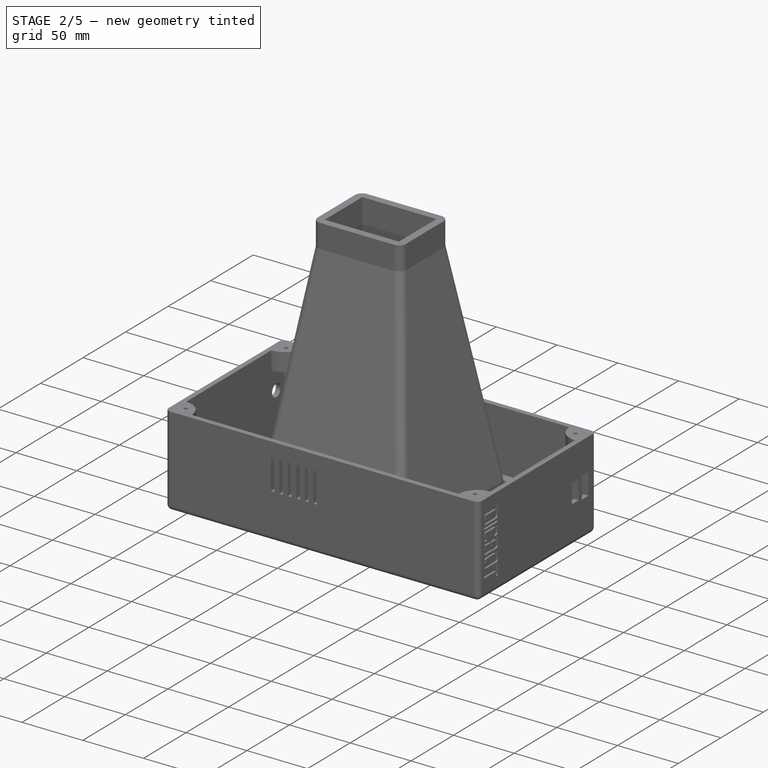
[diagram: stage 2 of 5 — iso view after this stage's code; geometry added in this stage tinted green]
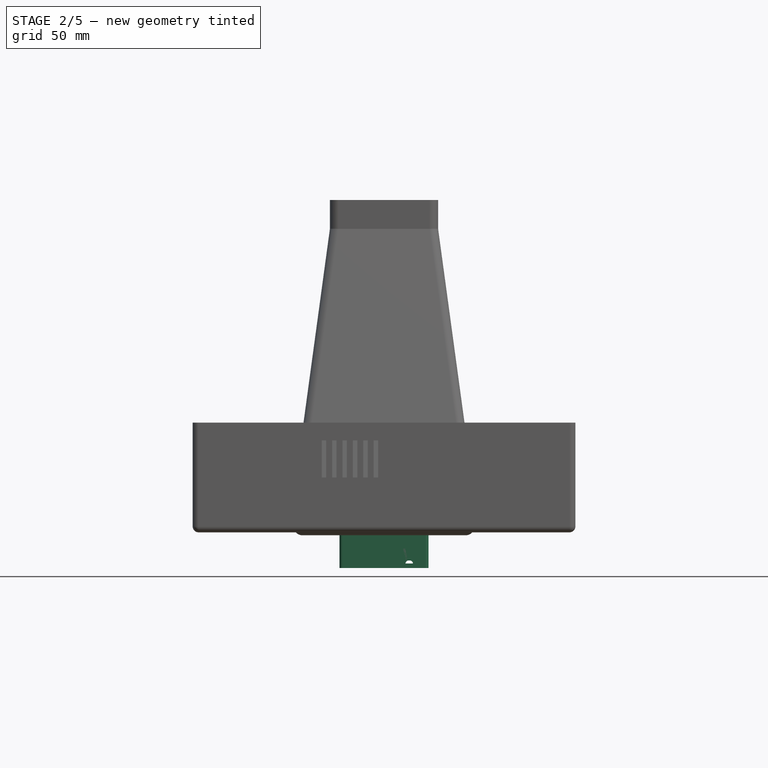
[diagram: stage 2 of 5 — front view after this stage's code; geometry added in this stage tinted green]
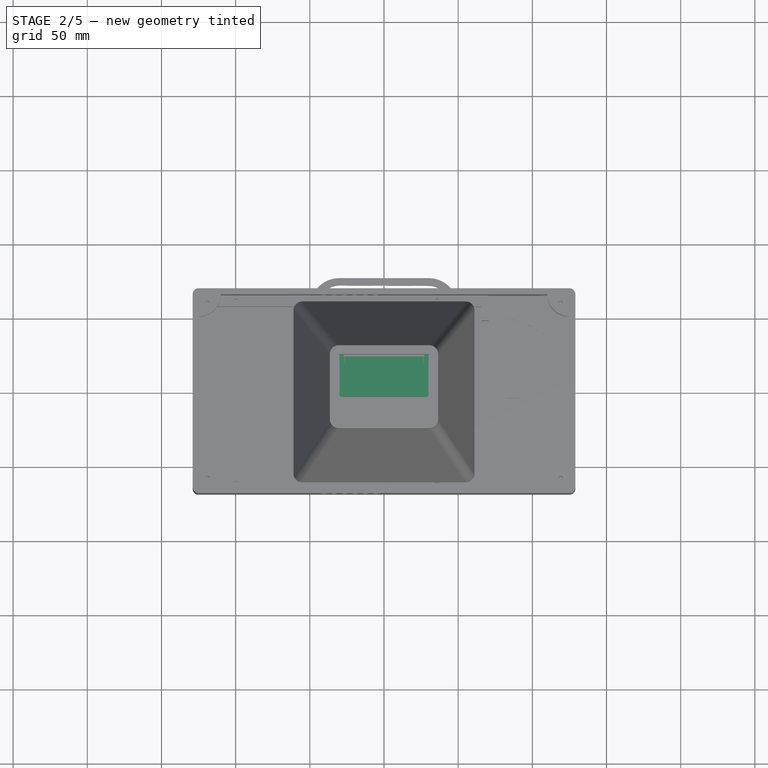
[diagram: stage 2 of 5 — top view after this stage's code; geometry added in this stage tinted green]
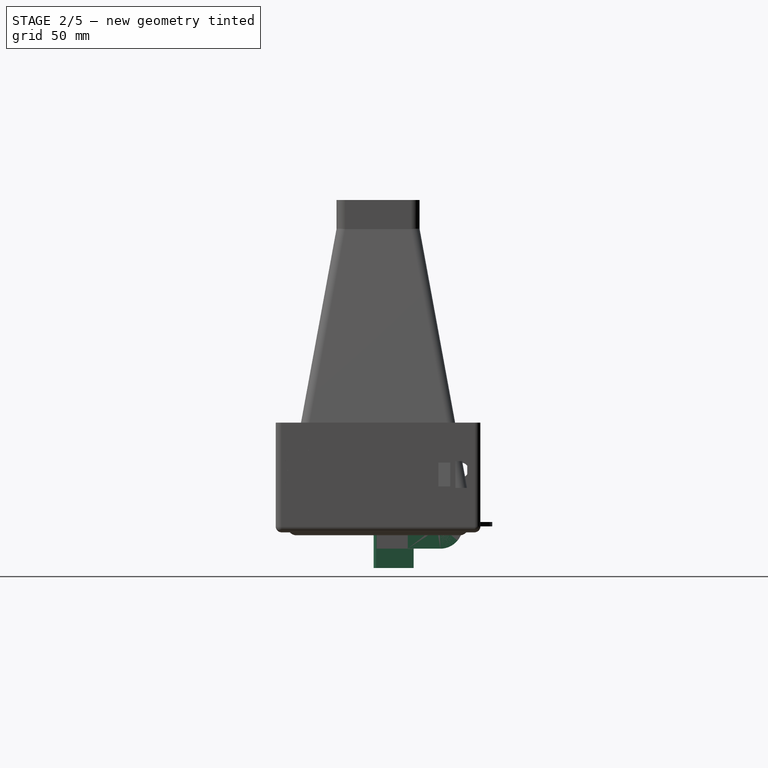
[diagram: stage 2 of 5 — right view after this stage's code; geometry added in this stage tinted green]
FEATURE [PartDesign::Body] Body006  label="supp_base"
  Group = -> [Sketch023,Pad037,Sketch001,Pad001,Sketch002,Pocket007,Fillet,Fillet001,Fillet002,Fillet003,Sketch003,Pocket008,Sketch004,Pocket009,DatumPlane007,Sketch050,Pad024,Sketch051,Pocket021,Fillet014,Fillet015]
  Origin = -> Origin012
  Placement = pos=(0,42,45) rot=(1,0,0;3.14159rad)
  Tip = -> Fillet015
FEATURE [PartDesign::Plane] DatumPlane008
  Length = 60
  MapMode = 5
  Placement = pos=(0,0,0) rot=(-1,0,0;1.5708rad)
  ResizeMode = 0
  Width = 60
FEATURE [Sketcher::SketchObject] Sketch063
  FullyConstrained = true
  MapMode = 5
  Placement = pos=(0,0,0) rot=(-1,0,0;1.5708rad)
  Support = -> [DatumPlane008]
  sketch-geometry (4):
    g0: LineSegment StartX=-30 StartY=-12 StartZ=0 EndX=30 EndY=-12 EndZ=0
    g1: LineSegment StartX=30 StartY=-12 StartZ=0 EndX=30 EndY=-15 EndZ=0
    g2: LineSegment StartX=30 StartY=-15 StartZ=0 EndX=-30 EndY=-15 EndZ=0
    g3: LineSegment StartX=-30 StartY=-15 StartZ=0 EndX=-30 EndY=-12 EndZ=0
  constraints (11):
    c: Coincident(g0,g1)
    c: Coincident(g1,g2)
    c: Coincident(g2,g3)
    c: Coincident(g3,g0)
    c: Horizontal(g0)
    c: Vertical(g1)
    c: Vertical(g3)
    c: DistanceX(g2,g2) = 60
    c: Symmetric(g2,g1,g-2)
    c: DistanceY(g1,g1) = 3
    c: DistanceY(g1,g-1) = 15
FEATURE [Sketcher::SketchObject] Sketch064
  FullyConstrained = true
  MapMode = 5
  Placement = pos=(0,0,0) rot=(1,0,0;1.5708rad)
  Support = -> [XZ_Plane015]
  sketch-geometry (4):
    g0: LineSegment StartX=-30 StartY=15 StartZ=0 EndX=30 EndY=15 EndZ=0
    g1: LineSegment StartX=30 StartY=15 StartZ=0 EndX=30 EndY=-15 EndZ=0
    g2: LineSegment StartX=30 StartY=-15 StartZ=0 EndX=-30 EndY=-15 EndZ=0
    g3: LineSegment StartX=-30 StartY=-15 StartZ=0 EndX=-30 EndY=15 EndZ=0
  constraints (10):
    c: Coincident(g0,g1)
    c: Coincident(g1,g2)
    c: Coincident(g2,g3)
    c: Coincident(g3,g0)
    c: Horizontal(g2)
    c: Vertical(g1)
    c: DistanceX(g0,g0) = 60
    c: DistanceY(g1,g1) = 30
    c: Symmetric(g0,g0,g-2)
    c: Symmetric(g0,g2,g-1)
FEATURE [PartDesign::Pad] Pad038
  Direction = (0,-1,2e-16)
  Length = 3
  Length2 = 10
  Placement = pos=(0,0,0) rot=(1,0,0;1.5708rad)
  Profile = -> Sketch064
  ReferenceAxis = -> Sketch064 [N_Axis]
  Type = 0
FEATURE [Sketcher::SketchObject] Sketch065
  ExternalGeometry = -> [Pad038]
  FullyConstrained = true
  MapMode = 5
  Placement = pos=(0,0,0) rot=(-1,0,0;1.5708rad)
  Support = -> [Pad038]
  sketch-geometry (8):
    g0: LineSegment StartX=-30 StartY=15 StartZ=0 EndX=-27 EndY=15 EndZ=0
    g1: LineSegment StartX=-27 StartY=15 StartZ=0 EndX=-27 EndY=-15 EndZ=0
    g2: LineSegment StartX=-27 StartY=-15 StartZ=0 EndX=-30 EndY=-15 EndZ=0
    g3: LineSegment StartX=-30 StartY=-15 StartZ=0 EndX=-30 EndY=15 EndZ=0
    g4: LineSegment StartX=27 StartY=15 StartZ=0 EndX=30 EndY=15 EndZ=0
    g5: LineSegment StartX=30 StartY=15 StartZ=0 EndX=30 EndY=-15 EndZ=0
    g6: LineSegment StartX=30 StartY=-15 StartZ=0 EndX=27 EndY=-15 EndZ=0
    g7: LineSegment StartX=27 StartY=-15 StartZ=0 EndX=27 EndY=15 EndZ=0
  constraints (23):
    c: Coincident(g0,g1)
    c: Coincident(g1,g2)
    c: Coincident(g2,g3)
    c: Coincident(g3,g0)
    c: Horizontal(g0)
    c: Horizontal(g2)
    c: Vertical(g1)
    c: Coincident(g4,g5)
    c: Coincident(g5,g6)
    c: Coincident(g6,g7)
    c: Coincident(g7,g4)
    c: Horizontal(g4)
    c: Horizontal(g6)
    c: Vertical(g5)
    c: Vertical(g7)
    c: Symmetric(g0,g2,g-1)
    c: Horizontal(g0,g4)
    c: Horizontal(g6,g1)
    c: DistanceY(g3,g3) = 30
    c: Vertical(g4,g-4)
    c: Vertical(g0,g-3)
    c: DistanceX(g4,g4) = 3
    c: DistanceX(g0,g0) = 3
FEATURE [PartDesign::Pad] Pad039
  BaseFeature = -> Pad038
  Direction = (0,1,-2e-16)
  Length = 57
  Length2 = 10
  Placement = pos=(0,0,0) rot=(1,0,0;1.5708rad)
  Profile = -> Sketch065
  ReferenceAxis = -> Sketch065 [N_Axis]
  Type = 0
FEATURE [Sketcher::SketchObject] Sketch066
  FullyConstrained = true
  MapMode = 5
  Placement = pos=(-30,0,0) rot=(0.707107,0,-0.707107;3.14159rad)
  Support = -> [Pad039]
  sketch-geometry (13):
    g0: GeomPoint X=0 Y=-57 Z=0
    g1: GeomPoint X=0 Y=-42 Z=0
    g2: ArcOfCircle CenterX=0 CenterY=-42 CenterZ=0 NormalX=0 NormalY=0 NormalZ=1 AngleXU=0 Radius=15 StartAngle=3.14159 EndAngle=6.28319
    g3: GeomPoint X=15 Y=-42 Z=0
    g4: GeomPoint X=-15 Y=-42 Z=0
    g5: GeomPoint X=15 Y=-57 Z=0
    g6: GeomPoint X=-15 Y=-57 Z=0
    g7: LineSegment StartX=15 StartY=-42 StartZ=0 EndX=15 EndY=-57 EndZ=0
    g8: LineSegment StartX=15 StartY=-57 StartZ=0 EndX=0 EndY=-57 EndZ=0
    g9: LineSegment StartX=-15 StartY=-57 StartZ=0 EndX=0 EndY=-57 EndZ=0
    g10: LineSegment StartX=-15 StartY=-57 StartZ=0 EndX=-15 EndY=-42 EndZ=0
    g11: GeomPoint X=0 Y=-39 Z=0
    g12: Circle CenterX=0 CenterY=-42 CenterZ=0 NormalX=0 NormalY=0 NormalZ=1 AngleXU=0 Radius=3
  constraints (25):
    c: PointOnObject(g0,g-2)
    c: DistanceY(g0,g-1) = 57
    c: PointOnObject(g1,g-2)
    c: DistanceY(g0,g1) = 15
    c: Coincident(g2,g1)
    c: PointOnObject(g0,g2)
    c: Horizontal(g4,g2)
    c: Horizontal(g3,g2)
    c: Horizontal(g6,g0)
    c: Vertical(g4,g6)
    c: Horizontal(g5,g0)
    c: Coincident(g7,g3)
    c: Coincident(g7,g5)
    c: Coincident(g8,g7)
    c: Coincident(g8,g0)
    c: Coincident(g9,g6)
    c: Coincident(g9,g8)
    c: Coincident(g10,g9)
    c: Coincident(g10,g4)
    c: Tangent(g2,g7) = 1.5708
    c: Coincident(g2,g10)
    c: PointOnObject(g11,g-2)
    c: DistanceY(g2,g11) = 3
    c: Coincident(g12,g2)
    c: PointOnObject(g11,g12)
FEATURE [PartDesign::Pocket] Pocket027
  BaseFeature = -> Pad039
  Direction = (1,0,2e-16)
  Length = 60
  Length2 = 5
  Placement = pos=(0,0,0) rot=(1,0,0;1.5708rad)
  Profile = -> Sketch066
  ReferenceAxis = -> Sketch066 [N_Axis]
  Type = 0
FEATURE [PartDesign::Fillet] Fillet016
  Base = -> Pocket027 [Edge16]
  BaseFeature = -> Pocket027
  Placement = pos=(0,0,0) rot=(1,0,0;1.5708rad)
  Radius = 2
  SupportTransform = false
  UseAllEdges = false
FEATURE [PartDesign::Fillet] Fillet017
  Base = -> Fillet016 [Edge10]
  BaseFeature = -> Fillet016
  Placement = pos=(0,0,0) rot=(1,0,0;1.5708rad)
  Radius = 2
  SupportTransform = false
  UseAllEdges = false
FEATURE [PartDesign::Fillet] Fillet018
  Base = -> Fillet017 [Edge22]
  BaseFeature = -> Fillet017
  Placement = pos=(0,0,0) rot=(1,0,0;1.5708rad)
  Radius = 2
  SupportTransform = false
  UseAllEdges = false
FEATURE [PartDesign::Fillet] Fillet019
  Base = -> Fillet018 [Edge19]
  BaseFeature = -> Fillet018
  Placement = pos=(0,0,0) rot=(1,0,0;1.5708rad)
  Radius = 2
  SupportTransform = false
  UseAllEdges = false
FEATURE [PartDesign::Plane] DatumPlane009
  Length = 80.7133
  MapMode = 5
  Placement = pos=(0,-6.6e-15,-15) rot=(1,0,0;3.14159rad)
  ResizeMode = 0
  Support = -> [Fillet019]
  Width = 96.7133
FEATURE [Sketcher::SketchObject] Sketch067
  ExternalGeometry = -> [Fillet019]
  FullyConstrained = false
  MapMode = 5
  Placement = pos=(0,-6.6e-15,-15) rot=(1,0,0;3.14159rad)
  Support = -> [DatumPlane009]
  sketch-geometry (17):
    g0: GeomPoint X=-30 Y=3 Z=0
    g1: GeomPoint X=-30 Y=-20 Z=0
    g2: GeomPoint X=30 Y=3 Z=0
    g3: GeomPoint X=30 Y=-20 Z=0
    g4: GeomPoint X=-11.5 Y=3 Z=0
    g5: GeomPoint X=11.5 Y=3 Z=0
    g6: GeomPoint X=19.5 Y=3 Z=0
    g7: GeomPoint X=-11.5 Y=-5 Z=0
    g8: GeomPoint X=19.5 Y=-5 Z=0
    g9: LineSegment StartX=-30 StartY=-20 StartZ=0 EndX=30 EndY=-20 EndZ=0
    g10: LineSegment StartX=30 StartY=-20 StartZ=0 EndX=30 EndY=3 EndZ=0
    g11: LineSegment StartX=30 StartY=3 StartZ=0 EndX=19.5 EndY=3 EndZ=0
    g12: LineSegment StartX=19.5 StartY=3 StartZ=0 EndX=19.5 EndY=-5 EndZ=0
    g13: LineSegment StartX=19.5 StartY=-5 StartZ=0 EndX=-11.5 EndY=-5 EndZ=0
    g14: LineSegment StartX=-11.5 StartY=-5 StartZ=0 EndX=-11.5 EndY=3 EndZ=0
    g15: LineSegment StartX=-11.5 StartY=3 StartZ=0 EndX=-30 EndY=3 EndZ=0
    g16: LineSegment StartX=-30 StartY=3 StartZ=0 EndX=-30 EndY=-20 EndZ=0
  constraints (33):
    c: PointOnObject(g1,g-4)
    c: PointOnObject(g3,g-5)
    c: Horizontal(g0,g-3)
    c: Horizontal(g-3,g2)
    c: Vertical(g-5,g2)
    c: Vertical(g-4,g0)
    c: DistanceY(g1,g0) = 23
    c: DistanceY(g3,g2) = 23
    c: PointOnObject(g4,g-3)
    c: Symmetric(g5,g4,g-2)
    c: DistanceX(g4,g5) = 23
    c: PointOnObject(g6,g-3)
    c: DistanceX(g5,g6) = 8
    c: Vertical(g7,g4)
    c: Vertical(g8,g6)
    c: Horizontal(g8,g7)
    c: DistanceY(g8,g6) = 8
    c: Coincident(g9,g1)
    c: Coincident(g9,g3)
    c: Coincident(g10,g9)
    c: Coincident(g10,g2)
    c: Coincident(g11,g10)
    c: Coincident(g11,g6)
    c: Coincident(g12,g8)
    c: Vertical(g12)
    c: Coincident(g13,g7)
    c: Horizontal(g13)
    c: Coincident(g14,g4)
    c: Vertical(g14)
    c: Coincident(g15,g0)
    c: Horizontal(g15)
    c: Coincident(g16,g9)
    c: Vertical(g16)
FEATURE [PartDesign::Pad] Pad040
  BaseFeature = -> Fillet019
  Direction = (0,-2e-16,-1)
  Length = 13
  Length2 = 10
  Placement = pos=(0,0,0) rot=(1,0,0;1.5708rad)
  Profile = -> Sketch067
  ReferenceAxis = -> Sketch067 [N_Axis]
  Type = 0
FEATURE [Sketcher::SketchObject] Sketch068
  ExternalGeometry = -> [Pad040]
  FullyConstrained = true
  MapMode = 5
  Placement = pos=(0,20,-8.8e-15) rot=(-1,0,0;1.5708rad)
  Support = -> [Pad040]
  sketch-geometry (4):
    g0: LineSegment StartX=-27 StartY=25 StartZ=0 EndX=27 EndY=25 EndZ=0
    g1: LineSegment StartX=27 StartY=25 StartZ=0 EndX=27 EndY=15 EndZ=0
    g2: LineSegment StartX=27 StartY=15 StartZ=0 EndX=-27 EndY=15 EndZ=0
    g3: LineSegment StartX=-27 StartY=15 StartZ=0 EndX=-27 EndY=25 EndZ=0
  constraints (12):
    c: Coincident(g0,g1)
    c: Coincident(g1,g2)
    c: Coincident(g2,g3)
    c: Coincident(g3,g0)
    c: Horizontal(g0)
    c: Horizontal(g2)
    c: Vertical(g1)
    c: Vertical(g3)
    c: Vertical(g1,g-3)
    c: Vertical(g2,g-3)
    c: Horizontal(g2,g-3)
    c: DistanceY(g1,g1) = 10
FEATURE [PartDesign::Pocket] Pocket028
  BaseFeature = -> Pad040
  Direction = (0,-1,2e-16)
  Length = 20
  Length2 = 5
  Placement = pos=(0,0,0) rot=(1,0,0;1.5708rad)
  Profile = -> Sketch068
  ReferenceAxis = -> Sketch068 [N_Axis]
  Type = 0
FEATURE [PartDesign::Fillet] Fillet020
  Base = -> Pocket028 [Edge86]
  BaseFeature = -> Pocket028
  Placement = pos=(0,0,0) rot=(1,0,0;1.5708rad)
  Radius = 2
  SupportTransform = false
  UseAllEdges = false
FEATURE [PartDesign::Fillet] Fillet021
  Base = -> Fillet020 [Edge40]
  BaseFeature = -> Fillet020
  Placement = pos=(0,0,0) rot=(1,0,0;1.5708rad)
  Radius = 2
  SupportTransform = false
  UseAllEdges = false
FEATURE [PartDesign::Fillet] Fillet022
  Base = -> Fillet021 [Edge51]
  BaseFeature = -> Fillet021
  Placement = pos=(0,0,0) rot=(1,0,0;1.5708rad)
  Radius = 2
  SupportTransform = false
  UseAllEdges = false
FEATURE [PartDesign::Fillet] Fillet023
  Base = -> Fillet022 [Edge32]
  BaseFeature = -> Fillet022
  Placement = pos=(0,0,0) rot=(1,0,0;1.5708rad)
  Radius = 2
  SupportTransform = false
  UseAllEdges = false
FEATURE [PartDesign::Pad] Pad041
  BaseFeature = -> Fillet023
  Direction = (0,1,2e-16)
  Length = 20
  Length2 = 10
  Placement = pos=(0,0,0) rot=(1,0,0;1.5708rad)
  Profile = -> Sketch063
  ReferenceAxis = -> Sketch063 [N_Axis]
  Type = 0
FEATURE [PartDesign::Plane] DatumPlane010
  Length = 77.8288
  MapMode = 5
  Placement = pos=(0,7.2e-15,0) rot=(-1,0,0;1.5708rad)
  ResizeMode = 0
  Support = -> [Pad041]
  Width = 64.8288
FEATURE [Sketcher::SketchObject] Sketch069
  ExternalGeometry = -> [Pad041]
  FullyConstrained = true
  MapMode = 5
  Placement = pos=(0,7.2e-15,0) rot=(-1,0,0;1.5708rad)
  Support = -> [DatumPlane010]
  sketch-geometry (8):
    g0: GeomPoint X=-22.5 Y=25 Z=0
    g1: GeomPoint X=22.5 Y=25 Z=0
    g2: Circle CenterX=-22.5 CenterY=25 CenterZ=0 NormalX=0 NormalY=0 NormalZ=1 AngleXU=0 Radius=2.5
    g3: Circle CenterX=22.5 CenterY=25 CenterZ=0 NormalX=0 NormalY=0 NormalZ=1 AngleXU=0 Radius=2.5
    g4: GeomPoint X=-22.5 Y=-12 Z=0
    g5: GeomPoint X=22.5 Y=-12 Z=0
    g6: Circle CenterX=22.5 CenterY=-12 CenterZ=0 NormalX=0 NormalY=0 NormalZ=1 AngleXU=0 Radius=2.5
    g7: Circle CenterX=-22.5 CenterY=-12 CenterZ=0 NormalX=0 NormalY=0 NormalZ=1 AngleXU=0 Radius=2.5
  constraints (16):
    c: PointOnObject(g0,g-3)
    c: PointOnObject(g1,g-3)
    c: DistanceX(g1,g-4) = 2.5
    c: DistanceX(g-5,g0) = 2.5
    c: Coincident(g2,g0)
    c: PointOnObject(g-5,g2)
    c: Coincident(g3,g1)
    c: PointOnObject(g-4,g3)
    c: PointOnObject(g4,g-8)
    c: PointOnObject(g5,g-8)
    c: DistanceX(g5,g-6) = 2.5
    c: DistanceX(g-7,g4) = 2.5
    c: Coincident(g6,g5)
    c: PointOnObject(g-6,g6)
    c: Coincident(g7,g4)
    c: PointOnObject(g-7,g7)
FEATURE [PartDesign::Pad] Pad042
  BaseFeature = -> Pad041
  Direction = (0,1,-4e-16)
  Length = 20
  Length2 = 10
  Placement = pos=(0,0,0) rot=(1,0,0;1.5708rad)
  Profile = -> Sketch069
  ReferenceAxis = -> Sketch069 [N_Axis]
  Type = 0
FEATURE [PartDesign::Plane] DatumPlane011
  Length = 77.8288
  MapMode = 5
  Placement = pos=(0,20,-8.8e-15) rot=(-1,0,0;1.5708rad)
  ResizeMode = 0
  Support = -> [Pad042]
  Width = 64.8288
FEATURE [Sketcher::SketchObject] Sketch070
  ExternalGeometry = -> [Pad042]
  FullyConstrained = true
  MapMode = 5
  Placement = pos=(0,20,-8.8e-15) rot=(-1,0,0;1.5708rad)
  Support = -> [DatumPlane011]
  sketch-geometry (12):
    g0: GeomPoint X=-22.5 Y=25 Z=0
    g1: GeomPoint X=22.5 Y=25 Z=0
    g2: GeomPoint X=-22.5 Y=-12 Z=0
    g3: GeomPoint X=22.5 Y=-12 Z=0
    g4: GeomPoint X=-21 Y=25 Z=0
    g5: GeomPoint X=-21 Y=-12 Z=0
    g6: GeomPoint X=24 Y=-12 Z=0
    g7: GeomPoint X=24 Y=25 Z=0
    g8: Circle CenterX=-22.5 CenterY=25 CenterZ=0 NormalX=0 NormalY=0 NormalZ=1 AngleXU=0 Radius=1.5
    g9: Circle CenterX=22.5 CenterY=25 CenterZ=0 NormalX=0 NormalY=0 NormalZ=1 AngleXU=0 Radius=1.5
    g10: Circle CenterX=22.5 CenterY=-12 CenterZ=0 NormalX=0 NormalY=0 NormalZ=1 AngleXU=0 Radius=1.5
    g11: Circle CenterX=-22.5 CenterY=-12 CenterZ=0 NormalX=0 NormalY=0 NormalZ=1 AngleXU=0 Radius=1.5
  constraints (24):
    c: PointOnObject(g0,g-3)
    c: DistanceX(g-3,g0) = 2.5
    c: PointOnObject(g1,g-4)
    c: PointOnObject(g2,g-5)
    c: PointOnObject(g3,g-6)
    c: DistanceX(g1,g-4) = 2.5
    c: Vertical(g1,g3)
    c: Vertical(g2,g0)
    c: PointOnObject(g4,g-3)
    c: PointOnObject(g5,g-5)
    c: PointOnObject(g6,g-6)
    c: PointOnObject(g7,g-4)
    c: Vertical(g4,g5)
    c: Vertical(g6,g7)
    c: DistanceX(g2,g5) = 1.5
    c: DistanceX(g3,g6) = 1.5
    c: Coincident(g8,g0)
    c: PointOnObject(g4,g8)
    c: Coincident(g9,g1)
    c: PointOnObject(g7,g9)
    c: Coincident(g10,g3)
    c: PointOnObject(g6,g10)
    c: Coincident(g11,g2)
    c: PointOnObject(g5,g11)
FEATURE [PartDesign::Pocket] Pocket029
  BaseFeature = -> Pad042
  Direction = (0,-1,7e-16)
  Length = 20
  Length2 = 5
  Placement = pos=(0,0,0) rot=(1,0,0;1.5708rad)
  Profile = -> Sketch070
  ReferenceAxis = -> Sketch070 [N_Axis]
  Type = 0
FEATURE [PartDesign::Body] Body010  label="supp_head001"
  Group = -> [Sketch064,Pad038,Sketch065,Pad039,Sketch066,Pocket027,Fillet016,Fillet017,Fillet018,Fillet019,DatumPlane009,Sketch067,Pad040,Sketch068,Pocket028,Fillet020,Fillet021,Fillet022,Fillet023,DatumPlane008,Sketch063,Pad041,DatumPlane010,Sketch069,Pad042,DatumPlane011,Sketch070,Pocket029,Sketch071,Pad043,Sketch072,Pocket030,Sketch073,Pocket031,Sketch074,Pocket032,Pad044,Pad045,Pad046,Pad047,Pad048,Pad049]
  Origin = -> Origin015
  Tip = -> Pad049
FEATURE [PartDesign::Plane] CopyDatumPlane004
  Length = 60
  Placement = pos=(0,20,-4e-15) rot=(-1,0,0;1.5708rad)
  ResizeMode = 0
  Width = 60
FEATURE [Sketcher::SketchObject] Sketch075
  FullyConstrained = true
  MapMode = 5
  Placement = pos=(0,20,-4e-15) rot=(-1,0,0;1.5708rad)
  Support = -> [CopyDatumPlane004]
  sketch-geometry (20):
    g0: GeomPoint X=22.5 Y=25 Z=0
    g1: GeomPoint X=-22.5 Y=25 Z=0
    g2: GeomPoint X=-22.5 Y=-12 Z=0
    g3: GeomPoint X=22.5 Y=-12 Z=0
    g4: GeomPoint X=-21 Y=25 Z=0
    g5: GeomPoint X=24 Y=25 Z=0
    g6: GeomPoint X=-21 Y=-12 Z=0
    g7: GeomPoint X=24 Y=-12 Z=0
    g8: Circle CenterX=-22.5 CenterY=25 CenterZ=0 NormalX=0 NormalY=0 NormalZ=1 AngleXU=0 Radius=1.5
    g9: Circle CenterX=22.5 CenterY=25 CenterZ=0 NormalX=0 NormalY=0 NormalZ=1 AngleXU=0 Radius=1.5
    g10: Circle CenterX=22.5 CenterY=-12 CenterZ=0 NormalX=0 NormalY=0 NormalZ=1 AngleXU=0 Radius=1.5
    g11: Circle CenterX=-22.5 CenterY=-12 CenterZ=0 NormalX=0 NormalY=0 NormalZ=1 AngleXU=0 Radius=1.5
    g12: LineSegment StartX=-30 StartY=28 StartZ=0 EndX=30 EndY=28 EndZ=0
    g13: LineSegment StartX=30 StartY=28 StartZ=0 EndX=30 EndY=15.2 EndZ=0
    g14: LineSegment StartX=30 StartY=15.2 StartZ=0 EndX=26.8 EndY=15.2 EndZ=0
    g15: LineSegment StartX=26.8 StartY=15.2 StartZ=0 EndX=26.8 EndY=-15 EndZ=0
    g16: LineSegment StartX=26.8 StartY=-15 StartZ=0 EndX=-26.8 EndY=-15 EndZ=0
    g17: LineSegment StartX=-26.8 StartY=-15 StartZ=0 EndX=-26.8 EndY=15.2 EndZ=0
    g18: LineSegment StartX=-26.8 StartY=15.2 StartZ=0 EndX=-30 EndY=15.2 EndZ=0
    g19: LineSegment StartX=-30 StartY=15.2 StartZ=0 EndX=-30 EndY=28 EndZ=0
  constraints (51):
    c: DistanceY(g-1,g0) = 25
    c: Horizontal(g0,g1)
    c: DistanceX(g-1,g0) = 22.5
    c: DistanceX(g1,g-1) = 22.5
    c: Vertical(g2,g1)
    c: Vertical(g3,g0)
    c: Horizontal(g3,g2)
    c: DistanceY(g3,g-1) = 12
    c: Horizontal(g7,g3)
    c: Horizontal(g5,g0)
    c: Horizontal(g4,g1)
    c: Horizontal(g6,g2)
    c: Vertical(g4,g6)
    c: Vertical(g7,g5)
    c: DistanceX(g1,g4) = 1.5
    c: DistanceX(g0,g5) = 1.5
    c: Coincident(g8,g1)
    c: PointOnObject(g4,g8)
    c: Coincident(g9,g0)
    c: PointOnObject(g5,g9)
    c: Coincident(g10,g3)
    c: PointOnObject(g7,g10)
    c: Coincident(g11,g2)
    c: PointOnObject(g6,g11)
    c: Horizontal(g12)
    c: Coincident(g13,g12)
    c: Vertical(g13)
    c: Coincident(g14,g13)
    c: Vertical(g15)
    c: Horizontal(g16)
    c: Coincident(g17,g16)
    c: Coincident(g18,g17)
    c: Coincident(g19,g12)
    c: DistanceY(g-1,g12) = 28
    c: DistanceX(g-1,g14) = 26.8
    c: DistanceX(g-1,g15) = 26.8
    c: DistanceX(g-1,g16) = 26.8
    c: DistanceX(g16,g-1) = 26.8
    c: DistanceX(g17,g-1) = 26.8
    c: DistanceY(g16,g-1) = 15
    c: DistanceY(g15,g-1) = 15
    c: DistanceY(g14,g9) = 9.8
    c: DistanceY(g17,g8) = 9.8
    c: Horizontal(g18,g17)
    c: Horizontal(g19,g18)
    c: Horizontal(g13,g14)
    c: DistanceX(g-1,g13) = 30
    c: DistanceX(g18,g-1) = 30
    c: DistanceX(g12,g12) = 60
    c: Vertical(g19,g18)
    c: Horizontal(g15,g14)
FEATURE [PartDesign::Pad] Pad050
  Direction = (0,1,2e-16)
  Length = 4
  Length2 = 10
  Placement = pos=(0,20,-4e-15) rot=(-1,0,0;1.5708rad)
  Profile = -> Sketch075
  ReferenceAxis = -> Sketch075 [N_Axis]
  Type = 0
FEATURE [Sketcher::SketchObject] Sketch076
  ExternalGeometry = -> [Pad050]
  FullyConstrained = true
  MapMode = 5
  Placement = pos=(0,24,-3e-15) rot=(-1,0,0;1.5708rad)
  Support = -> [Pad050]
  sketch-geometry (8):
    g0: GeomPoint X=-20 Y=25 Z=0
    g1: GeomPoint X=20 Y=25 Z=0
    g2: GeomPoint X=20 Y=-12 Z=0
    g3: GeomPoint X=-20 Y=-12 Z=0
    g4: Circle CenterX=-22.5 CenterY=25 CenterZ=0 NormalX=0 NormalY=0 NormalZ=1 AngleXU=0 Radius=2.5
    g5: Circle CenterX=22.5 CenterY=25 CenterZ=0 NormalX=0 NormalY=0 NormalZ=1 AngleXU=0 Radius=2.5
    g6: Circle CenterX=22.5 CenterY=-12 CenterZ=0 NormalX=0 NormalY=0 NormalZ=1 AngleXU=0 Radius=2.5
    g7: Circle CenterX=-22.5 CenterY=-12 CenterZ=0 NormalX=0 NormalY=0 NormalZ=1 AngleXU=0 Radius=2.5
  constraints (16):
    c: Horizontal(g-4,g1)
    c: Horizontal(g0,g-3)
    c: Horizontal(g3,g-6)
    c: Horizontal(g2,g-5)
    c: DistanceX(g-3,g0) = 2.5
    c: DistanceX(g1,g-4) = 2.5
    c: Vertical(g1,g2)
    c: Vertical(g3,g0)
    c: Coincident(g4,g-3)
    c: PointOnObject(g0,g4)
    c: Coincident(g5,g-4)
    c: PointOnObject(g1,g5)
    c: Coincident(g6,g-5)
    c: PointOnObject(g2,g6)
    c: Coincident(g7,g-6)
    c: PointOnObject(g3,g7)
FEATURE [PartDesign::Pocket] Pocket033
  BaseFeature = -> Pad050
  Direction = (0,-1,-4e-16)
  Length = 2
  Length2 = 5
  Placement = pos=(0,20,-4e-15) rot=(-1,0,0;1.5708rad)
  Profile = -> Sketch076
  ReferenceAxis = -> Sketch076 [N_Axis]
  Type = 0
FEATURE [Sketcher::SketchObject] Sketch077
  FullyConstrained = true
  MapMode = 5
  Placement = pos=(0,20,-28) rot=(0,1,0;3.14159rad)
  Support = -> [Pocket033]
  sketch-geometry (5):
    g0: GeomPoint X=-14.5 Y=0 Z=0
    g1: LineSegment StartX=-14.5 StartY=0 StartZ=0 EndX=-19.5 EndY=0 EndZ=0
    g2: LineSegment StartX=-19.5 StartY=0 StartZ=0 EndX=-19.5 EndY=4 EndZ=0
    g3: LineSegment StartX=-19.5 StartY=4 StartZ=0 EndX=-14.5 EndY=4 EndZ=0
    g4: LineSegment StartX=-14.5 StartY=4 StartZ=0 EndX=-14.5 EndY=0 EndZ=0
  constraints (13):
    c: PointOnObject(g0,g-1)
    c: DistanceX(g0,g-1) = 14.5
    c: Coincident(g1,g2)
    c: Coincident(g2,g3)
    c: Coincident(g3,g4)
    c: Coincident(g4,g1)
    c: Horizontal(g1)
    c: Horizontal(g3)
    c: Vertical(g2)
    c: Vertical(g4)
    c: Coincident(g1,g0)
    c: DistanceX(g1,g1) = 5
    c: DistanceY(g4,g4) = 4
FEATURE [PartDesign::Pocket] Pocket034
  BaseFeature = -> Pocket033
  Direction = (0,-4e-16,1)
  Length = 5
  Length2 = 5
  Placement = pos=(0,20,-4e-15) rot=(-1,0,0;1.5708rad)
  Profile = -> Sketch077
  ReferenceAxis = -> Sketch077 [N_Axis]
  Type = 0
FEATURE [PartDesign::Fillet] Fillet024
  Base = -> Pocket034 [Edge37]
  BaseFeature = -> Pocket034
  Placement = pos=(0,20,-4e-15) rot=(-1,0,0;1.5708rad)
  Radius = 2
  SupportTransform = false
  UseAllEdges = false
FEATURE [PartDesign::Fillet] Fillet025
  Base = -> Fillet024 [Edge19]
  BaseFeature = -> Fillet024
  Placement = pos=(0,20,-4e-15) rot=(-1,0,0;1.5708rad)
  Radius = 2
  SupportTransform = false
  UseAllEdges = false
FEATURE [Sketcher::SketchObject] Sketch078
  FullyConstrained = true
  MapMode = 5
  Placement = pos=(0,24,-3e-15) rot=(-1,0,0;1.5708rad)
  Support = -> [Fillet025]
  sketch-geometry (3):
    g0: GeomPoint X=10 Y=-8 Z=0
    g1: GeomPoint X=14 Y=-8 Z=0
    g2: Circle CenterX=10 CenterY=-8 CenterZ=0 NormalX=0 NormalY=0 NormalZ=1 AngleXU=0 Radius=4
  constraints (6):
    c: DistanceX(g0,g1) = 4
    c: Horizontal(g1,g0)
    c: DistanceY(g0,g-1) = 8
    c: DistanceX(g-1,g0) = 10
    c: Coincident(g2,g0)
    c: PointOnObject(g1,g2)
FEATURE [PartDesign::Pocket] Pocket035
  BaseFeature = -> Fillet025
  Direction = (0,-1,-7e-16)
  Length = 4
  Length2 = 5
  Placement = pos=(0,20,-4e-15) rot=(-1,0,0;1.5708rad)
  Profile = -> Sketch078
  ReferenceAxis = -> Sketch078 [N_Axis]
  Type = 0
FEATURE [PartDesign::Pad] Pad052
  BaseFeature = -> Thickness002
  Direction = (0,1,-2e-16)
  Length = 110
  Length2 = 10
  Profile = -> Sketch079
  ReferenceAxis = -> Sketch079 [N_Axis]
  Type = 0
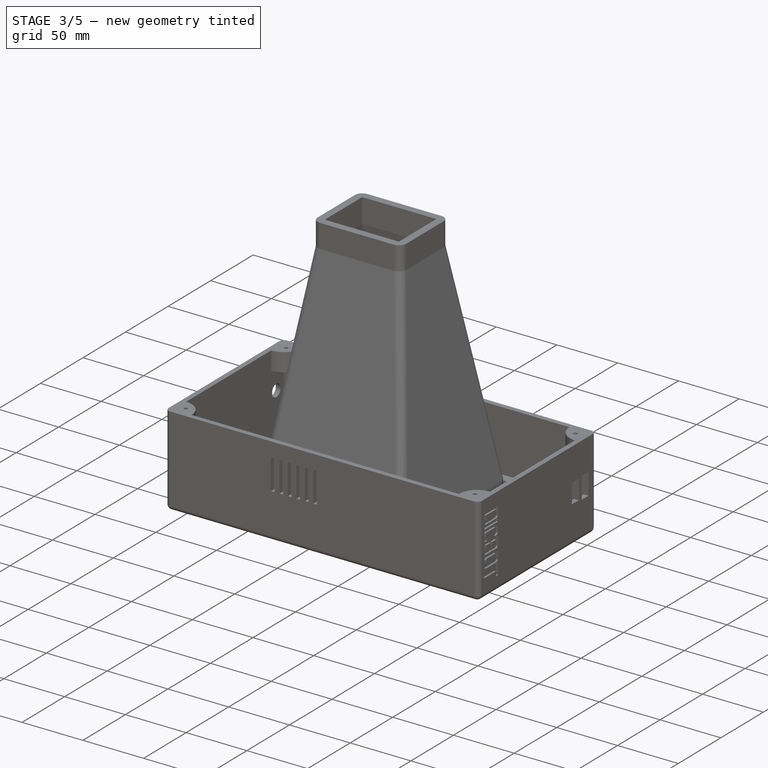
[diagram: stage 3 of 5 — iso view after this stage's code; geometry added in this stage tinted green]
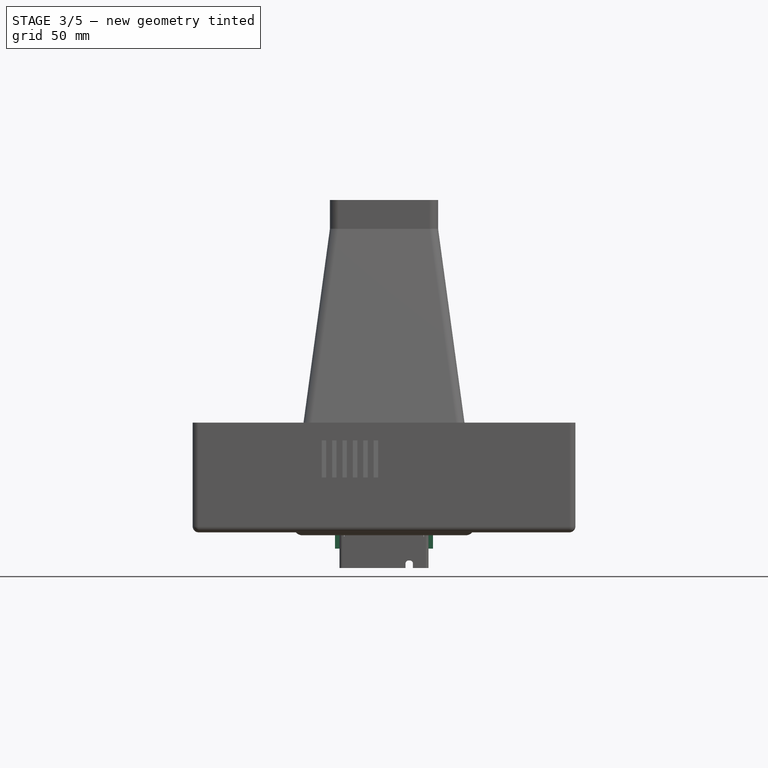
[diagram: stage 3 of 5 — front view after this stage's code; geometry added in this stage tinted green]
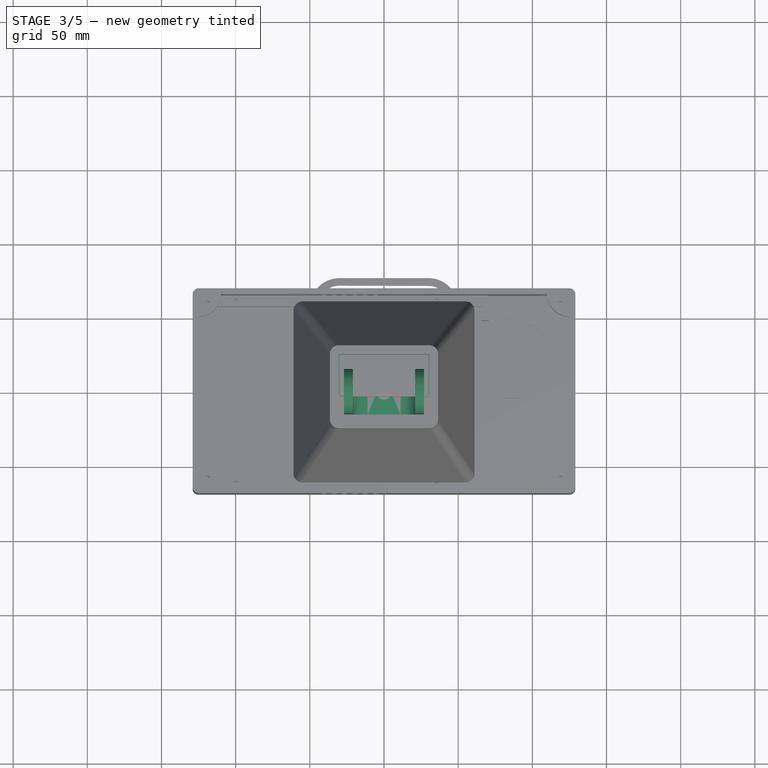
[diagram: stage 3 of 5 — top view after this stage's code; geometry added in this stage tinted green]
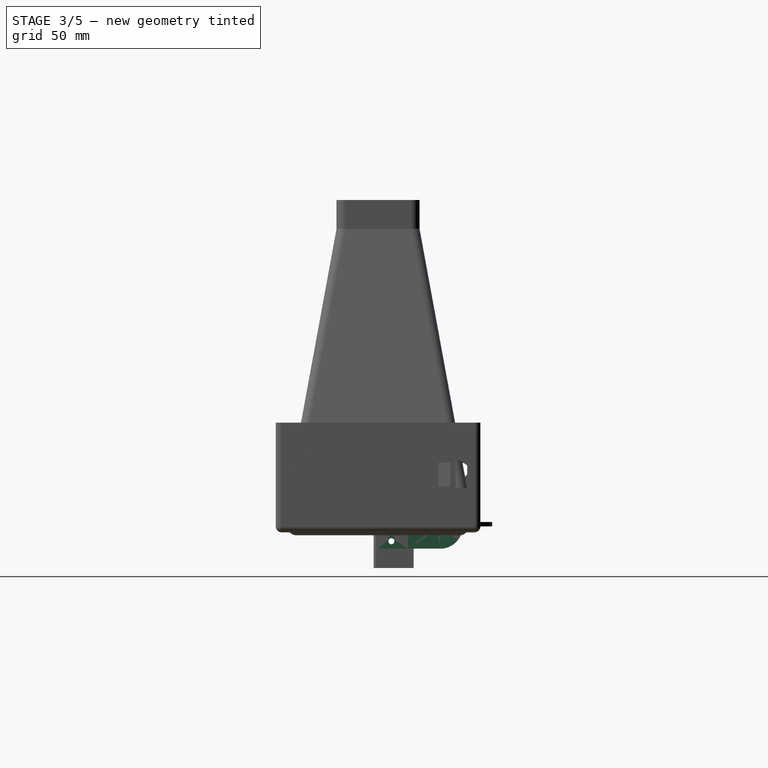
[diagram: stage 3 of 5 — right view after this stage's code; geometry added in this stage tinted green]
FEATURE [Sketcher::SketchObject] Sketch023
  FullyConstrained = true
  MapMode = 5
  Support = -> [XY_Plane012]
  sketch-geometry (4):
    g0: LineSegment StartX=-27 StartY=15 StartZ=0 EndX=27 EndY=15 EndZ=0
    g1: LineSegment StartX=27 StartY=15 StartZ=0 EndX=27 EndY=-15 EndZ=0
    g2: LineSegment StartX=27 StartY=-15 StartZ=0 EndX=-27 EndY=-15 EndZ=0
    g3: LineSegment StartX=-27 StartY=-15 StartZ=0 EndX=-27 EndY=15 EndZ=0
  constraints (10):
    c: Coincident(g0,g1)
    c: Coincident(g1,g2)
    c: Coincident(g2,g3)
    c: Coincident(g3,g0)
    c: Horizontal(g2)
    c: Vertical(g1)
    c: Symmetric(g0,g0,g-2)
    c: Symmetric(g0,g2,g-1)
    c: DistanceX(g0,g0) = 54
    c: DistanceY(g1,g1) = 30
FEATURE [PartDesign::Pad] Pad037
  Direction = (0,0,1)
  Length = 3
  Length2 = 10
  Profile = -> Sketch023
  ReferenceAxis = -> Sketch023 [N_Axis]
  Type = 0
FEATURE [Sketcher::SketchObject] Sketch001
  ExternalGeometry = -> [Pad037]
  FullyConstrained = true
  MapMode = 5
  Placement = pos=(0,0,3) rot=(0,0,1;0rad)
  Support = -> [Pad037]
  sketch-geometry (8):
    g0: LineSegment StartX=-27 StartY=15 StartZ=0 EndX=-21 EndY=15 EndZ=0
    g1: LineSegment StartX=-21 StartY=15 StartZ=0 EndX=-21 EndY=-15 EndZ=0
    g2: LineSegment StartX=-21 StartY=-15 StartZ=0 EndX=-27 EndY=-15 EndZ=0
    g3: LineSegment StartX=-27 StartY=-15 StartZ=0 EndX=-27 EndY=15 EndZ=0
    g4: LineSegment StartX=21 StartY=15 StartZ=0 EndX=27 EndY=15 EndZ=0
    g5: LineSegment StartX=27 StartY=15 StartZ=0 EndX=27 EndY=-15 EndZ=0
    g6: LineSegment StartX=27 StartY=-15 StartZ=0 EndX=21 EndY=-15 EndZ=0
    g7: LineSegment StartX=21 StartY=-15 StartZ=0 EndX=21 EndY=15 EndZ=0
  constraints (23):
    c: Coincident(g0,g1)
    c: Coincident(g1,g2)
    c: Coincident(g2,g3)
    c: Coincident(g3,g0)
    c: Horizontal(g0)
    c: Horizontal(g2)
    c: Vertical(g1)
    c: Coincident(g4,g5)
    c: Coincident(g5,g6)
    c: Coincident(g6,g7)
    c: Coincident(g7,g4)
    c: Horizontal(g4)
    c: Horizontal(g6)
    c: Vertical(g5)
    c: Vertical(g7)
    c: Symmetric(g0,g2,g-1)
    c: Horizontal(g4,g0)
    c: Horizontal(g6,g1)
    c: DistanceY(g3,g3) = 30
    c: Vertical(g0,g-3)
    c: Vertical(g4,g-4)
    c: DistanceX(g0,g0) = 6
    c: DistanceX(g4,g4) = 6
FEATURE [PartDesign::Pad] Pad001
  BaseFeature = -> Pad037
  Direction = (0,0,1)
  Length = 57
  Length2 = 10
  Profile = -> Sketch001
  ReferenceAxis = -> Sketch001 [N_Axis]
  Type = 0
FEATURE [Sketcher::SketchObject] Sketch002
  FullyConstrained = false
  MapMode = 5
  Placement = pos=(-27,0,0) rot=(0.57735,-0.57735,-0.57735;2.0944rad)
  Support = -> [Pad001]
  sketch-geometry (12):
    g0: GeomPoint X=0 Y=60 Z=0
    g1: GeomPoint X=0 Y=45 Z=0
    g2: ArcOfCircle CenterX=0 CenterY=45 CenterZ=0 NormalX=0 NormalY=0 NormalZ=1 AngleXU=0 Radius=15 StartAngle=0 EndAngle=3.14159
    g3: GeomPoint X=-15 Y=45 Z=0
    g4: GeomPoint X=15 Y=45 Z=0
    g5: GeomPoint X=-15 Y=60 Z=0
    g6: GeomPoint X=15 Y=60 Z=0
    g7: LineSegment StartX=-15 StartY=60 StartZ=0 EndX=-15 EndY=45 EndZ=0
    g8: LineSegment StartX=-15 StartY=60 StartZ=0 EndX=0 EndY=60 EndZ=0
    g9: LineSegment StartX=15 StartY=60 StartZ=0 EndX=0 EndY=60 EndZ=0
    g10: LineSegment StartX=15 StartY=60 StartZ=0 EndX=15 EndY=45 EndZ=0
    g11: GeomPoint X=0 Y=40.2247 Z=0
  constraints (21):
    c: PointOnObject(g0,g-2)
    c: DistanceY(g-1,g0) = 60
    c: PointOnObject(g1,g-2)
    c: DistanceY(g1,g0) = 15
    c: Coincident(g2,g1)
    c: PointOnObject(g0,g2)
    c: Horizontal(g4,g2)
    c: Horizontal(g3,g2)
    c: Vertical(g6,g2)
    c: Vertical(g5,g2)
    c: Horizontal(g6,g0)
    c: Horizontal(g5,g0)
    c: Coincident(g7,g5)
    c: Vertical(g7)
    c: Coincident(g8,g7)
    c: Coincident(g8,g0)
    c: Coincident(g9,g6)
    c: Coincident(g9,g8)
    c: Coincident(g10,g9)
    c: Vertical(g10)
    c: PointOnObject(g11,g-2)
FEATURE [PartDesign::Pocket] Pocket007
  BaseFeature = -> Pad001
  Direction = (1,0,0)
  Length = 60
  Length2 = 5
  Profile = -> Sketch002
  ReferenceAxis = -> Sketch002 [N_Axis]
  Type = 0
FEATURE [PartDesign::Fillet] Fillet
  Base = -> Pocket007 [Edge17]
  BaseFeature = -> Pocket007
  Radius = 2
  SupportTransform = false
  UseAllEdges = false
FEATURE [PartDesign::Fillet] Fillet001
  Base = -> Fillet [Edge9]
  BaseFeature = -> Fillet
  Radius = 2
  SupportTransform = false
  UseAllEdges = false
FEATURE [PartDesign::Fillet] Fillet002
  Base = -> Fillet001 [Edge24]
  BaseFeature = -> Fillet001
  Radius = 2
  SupportTransform = false
  UseAllEdges = false
FEATURE [PartDesign::Fillet] Fillet003
  Base = -> Fillet002 [Edge19]
  BaseFeature = -> Fillet002
  Radius = 2
  SupportTransform = false
  UseAllEdges = false
FEATURE [Sketcher::SketchObject] Sketch003
  FullyConstrained = true
  MapMode = 5
  Placement = pos=(27,0,0) rot=(0.57735,0.57735,0.57735;2.0944rad)
  Support = -> [Fillet003]
  sketch-geometry (3):
    g0: GeomPoint X=0 Y=45 Z=0
    g1: GeomPoint X=0 Y=48 Z=0
    g2: Circle CenterX=0 CenterY=45 CenterZ=0 NormalX=0 NormalY=0 NormalZ=1 AngleXU=0 Radius=3
  constraints (6):
    c: PointOnObject(g0,g-2)
    c: DistanceY(g-1,g0) = 45
    c: PointOnObject(g1,g-2)
    c: DistanceY(g0,g1) = 3
    c: Coincident(g2,g0)
    c: PointOnObject(g1,g2)
FEATURE [PartDesign::Pocket] Pocket008
  BaseFeature = -> Fillet003
  Direction = (-1,0,0)
  Length = 60
  Length2 = 5
  Profile = -> Sketch003
  ReferenceAxis = -> Sketch003 [N_Axis]
  Type = 0
FEATURE [Sketcher::SketchObject] Sketch004
  FullyConstrained = true
  MapMode = 5
  Placement = pos=(0,0,0) rot=(1,0,0;3.14159rad)
  Support = -> [Pocket008]
  sketch-geometry (2):
    g0: GeomPoint X=5 Y=0 Z=0
    g1: Circle CenterX=0 CenterY=0 CenterZ=0 NormalX=0 NormalY=0 NormalZ=1 AngleXU=0 Radius=5
  constraints (4):
    c: PointOnObject(g0,g-1)
    c: DistanceX(g-1,g0) = 5
    c: Coincident(g1,g-1)
    c: PointOnObject(g0,g1)
FEATURE [PartDesign::Pocket] Pocket009
  BaseFeature = -> Pocket008
  Direction = (0,0,1)
  Length = 5
  Length2 = 5
  Profile = -> Sketch004
  ReferenceAxis = -> Sketch004 [N_Axis]
  Type = 0
FEATURE [PartDesign::Plane] DatumPlane007
  Length = 64.3923
  MapMode = 5
  Placement = pos=(0,0,3) rot=(0,0,1;0rad)
  ResizeMode = 0
  Support = -> [Pocket009]
  Width = 60.3923
FEATURE [Sketcher::SketchObject] Sketch050
  ExternalGeometry = -> [Pocket009]
  FullyConstrained = true
  MapMode = 5
  Placement = pos=(0,0,3) rot=(0,0,1;0rad)
  Support = -> [DatumPlane007]
  sketch-geometry (4):
    g0: LineSegment StartX=-27 StartY=15 StartZ=0 EndX=27 EndY=15 EndZ=0
    g1: LineSegment StartX=27 StartY=15 StartZ=0 EndX=27 EndY=-15 EndZ=0
    g2: LineSegment StartX=27 StartY=-15 StartZ=0 EndX=-27 EndY=-15 EndZ=0
    g3: LineSegment StartX=-27 StartY=-15 StartZ=0 EndX=-27 EndY=15 EndZ=0
  constraints (10):
    c: Coincident(g0,g1)
    c: Coincident(g1,g2)
    c: Coincident(g2,g3)
    c: Coincident(g3,g0)
    c: Horizontal(g0)
    c: Horizontal(g2)
    c: Vertical(g1)
    c: Vertical(g3)
    c: Coincident(g0,g-6)
    c: Coincident(g1,g-4)
FEATURE [PartDesign::Pad] Pad024
  BaseFeature = -> Pocket009
  Direction = (0,0,1)
  Length = 3
  Length2 = 10
  Profile = -> Sketch050
  ReferenceAxis = -> Sketch050 [N_Axis]
  Type = 0
FEATURE [Sketcher::SketchObject] Sketch051
  FullyConstrained = true
  MapMode = 5
  Placement = pos=(0,0,3) rot=(1,0,0;3.14159rad)
  Support = -> [Pad024]
  sketch-geometry (2):
    g0: GeomPoint X=5 Y=0 Z=0
    g1: Circle CenterX=0 CenterY=0 CenterZ=0 NormalX=0 NormalY=0 NormalZ=1 AngleXU=0 Radius=5
  constraints (4):
    c: PointOnObject(g0,g-1)
    c: DistanceX(g-1,g0) = 5
    c: Coincident(g1,g-1)
    c: PointOnObject(g0,g1)
FEATURE [PartDesign::Pocket] Pocket021
  BaseFeature = -> Pad024
  Direction = (0,0,1)
  Length = 5
  Length2 = 5
  Profile = -> Sketch051
  ReferenceAxis = -> Sketch051 [N_Axis]
  Type = 0
FEATURE [PartDesign::Fillet] Fillet014
  Base = -> Pocket021 [Edge50]
  BaseFeature = -> Pocket021
  Radius = 10
  SupportTransform = false
  UseAllEdges = false
FEATURE [PartDesign::Fillet] Fillet015
  Base = -> Fillet014 [Edge9]
  BaseFeature = -> Fillet014
  Radius = 10
  SupportTransform = false
  UseAllEdges = false
FEATURE [Sketcher::SketchObject] Sketch071
  ExternalGeometry = -> [Pocket029]
  FullyConstrained = true
  MapMode = 5
  Placement = pos=(0,0,0) rot=(-1,0,0;1.5708rad)
  Support = -> [Pocket029]
  sketch-geometry (9):
    g0: GeomPoint X=11.5 Y=15 Z=0
    g1: LineSegment StartX=-14.5 StartY=15 StartZ=0 EndX=-11.5 EndY=15 EndZ=0
    g2: LineSegment StartX=-11.5 StartY=15 StartZ=0 EndX=-11.5 EndY=-15 EndZ=0
    g3: LineSegment StartX=-11.5 StartY=-15 StartZ=0 EndX=-14.5 EndY=-15 EndZ=0
    g4: LineSegment StartX=-14.5 StartY=-15 StartZ=0 EndX=-14.5 EndY=15 EndZ=0
    g5: LineSegment StartX=11.5 StartY=15 StartZ=0 EndX=14.5 EndY=15 EndZ=0
    g6: LineSegment StartX=14.5 StartY=15 StartZ=0 EndX=14.5 EndY=-15 EndZ=0
    g7: LineSegment StartX=14.5 StartY=-15 StartZ=0 EndX=11.5 EndY=-15 EndZ=0
    g8: LineSegment StartX=11.5 StartY=-15 StartZ=0 EndX=11.5 EndY=15 EndZ=0
  constraints (27):
    c: DistanceX(g-3,g-1) = 11.5
    c: PointOnObject(g0,g-3)
    c: DistanceX(g-3,g0) = 23
    c: Coincident(g1,g2)
    c: Coincident(g2,g3)
    c: Coincident(g3,g4)
    c: Coincident(g4,g1)
    c: Horizontal(g1)
    c: Horizontal(g3)
    c: Vertical(g2)
    c: Vertical(g4)
    c: Coincident(g5,g6)
    c: Coincident(g6,g7)
    c: Coincident(g7,g8)
    c: Coincident(g8,g5)
    c: Horizontal(g5)
    c: Horizontal(g7)
    c: Vertical(g6)
    c: Vertical(g8)
    c: Vertical(g5,g0)
    c: Vertical(g1,g-3)
    c: Horizontal(g5,g0)
    c: Horizontal(g1,g-3)
    c: Horizontal(g7,g2)
    c: DistanceY(g6,g6) = 30
    c: DistanceX(g1,g1) = 3
    c: DistanceX(g5,g5) = 3
FEATURE [PartDesign::Pad] Pad043
  BaseFeature = -> Pocket029
  Direction = (0,1,-4e-16)
  Length = 3
  Length2 = 10
  Placement = pos=(0,0,0) rot=(1,0,0;1.5708rad)
  Profile = -> Sketch071
  ReferenceAxis = -> Sketch071 [N_Axis]
  Type = 0
FEATURE [Sketcher::SketchObject] Sketch072
  ExternalGeometry = -> [Pad043]
  FullyConstrained = false
  MapMode = 5
  Placement = pos=(30,0,0) rot=(0.707107,0,0.707107;3.14159rad)
  Support = -> [Pad043]
  sketch-geometry (6):
    g0: GeomPoint X=5 Y=-9 Z=0
    g1: GeomPoint X=-10 Y=-9 Z=0
    g2: GeomPoint X=-8 Y=-9.23834 Z=0
    g3: GeomPoint X=7 Y=-9.06628 Z=0
    g4: Circle CenterX=-10 CenterY=-9 CenterZ=0 NormalX=0 NormalY=0 NormalZ=1 AngleXU=0 Radius=2.01415
    g5: Circle CenterX=5 CenterY=-9 CenterZ=0 NormalX=0 NormalY=0 NormalZ=1 AngleXU=0 Radius=2.0011
  constraints (10):
    c: DistanceX(g0,g-3) = 10
    c: DistanceY(g0,g-4) = 10
    c: Horizontal(g0,g1)
    c: DistanceX(g1,g0) = 15
    c: DistanceX(g0,g3) = 2
    c: DistanceX(g1,g2) = 2
    c: Coincident(g4,g1)
    c: PointOnObject(g2,g4)
    c: Coincident(g5,g0)
    c: PointOnObject(g3,g5)
FEATURE [PartDesign::Pocket] Pocket030
  BaseFeature = -> Pad043
  Direction = (-1,0,2e-16)
  Length = 70
  Length2 = 5
  Placement = pos=(0,0,0) rot=(1,0,0;1.5708rad)
  Profile = -> Sketch072
  ReferenceAxis = -> Sketch072 [N_Axis]
  Type = 0
FEATURE [Sketcher::SketchObject] Sketch073
  ExternalGeometry = -> [Pocket030]
  FullyConstrained = true
  MapMode = 5
  Placement = pos=(0,-3,7e-16) rot=(1,0,0;1.5708rad)
  Support = -> [Pocket030]
  sketch-geometry (18):
    g0: GeomPoint X=-24.4 Y=0 Z=0
    g1: GeomPoint X=24.4 Y=0 Z=0
    g2: GeomPoint X=-24.4 Y=6 Z=0
    g3: GeomPoint X=-24.4 Y=-6 Z=0
    g4: GeomPoint X=24.4 Y=-6 Z=0
    g5: GeomPoint X=24.4 Y=6 Z=0
    g6: GeomPoint X=-21.8 Y=6 Z=0
    g7: GeomPoint X=-21.8 Y=0 Z=0
    g8: GeomPoint X=-21.8 Y=-6 Z=0
    g9: GeomPoint X=27 Y=-6 Z=0
    g10: GeomPoint X=27 Y=0 Z=0
    g11: GeomPoint X=27 Y=6 Z=0
    g12: Circle CenterX=-24.4 CenterY=6 CenterZ=0 NormalX=0 NormalY=0 NormalZ=1 AngleXU=0 Radius=2.6
    g13: Circle CenterX=-24.4 CenterY=0 CenterZ=0 NormalX=0 NormalY=0 NormalZ=1 AngleXU=0 Radius=2.6
    g14: Circle CenterX=-24.4 CenterY=-6 CenterZ=0 NormalX=0 NormalY=0 NormalZ=1 AngleXU=0 Radius=2.6
    g15: Circle CenterX=24.4 CenterY=0 CenterZ=0 NormalX=0 NormalY=0 NormalZ=1 AngleXU=0 Radius=2.6
    g16: Circle CenterX=24.4 CenterY=6 CenterZ=0 NormalX=0 NormalY=0 NormalZ=1 AngleXU=0 Radius=2.6
    g17: Circle CenterX=24.4 CenterY=-6 CenterZ=0 NormalX=0 NormalY=0 NormalZ=1 AngleXU=0 Radius=2.6
  constraints (36):
    c: PointOnObject(g0,g-1)
    c: PointOnObject(g1,g-1)
    c: DistanceX(g1,g-3) = 3.6
    c: DistanceX(g-4,g0) = 3.6
    c: Vertical(g5,g1)
    c: Vertical(g4,g1)
    c: Vertical(g3,g0)
    c: Vertical(g2,g0)
    c: DistanceY(g1,g5) = 6
    c: DistanceY(g4,g1) = 6
    c: Horizontal(g4,g3)
    c: Horizontal(g2,g5)
    c: PointOnObject(g7,g-1)
    c: PointOnObject(g10,g-1)
    c: DistanceX(g4,g9) = 2.6
    c: DistanceX(g3,g8) = 2.6
    c: Vertical(g9,g10)
    c: Vertical(g10,g11)
    c: Vertical(g6,g8)
    c: Vertical(g8,g7)
    c: Horizontal(g8,g4)
    c: Horizontal(g9,g4)
    c: Horizontal(g6,g2)
    c: Horizontal(g11,g5)
    c: Coincident(g12,g2)
    c: PointOnObject(g6,g12)
    c: Coincident(g13,g0)
    c: PointOnObject(g7,g13)
    c: Coincident(g14,g3)
    c: PointOnObject(g8,g14)
    c: Coincident(g15,g1)
    c: PointOnObject(g10,g15)
    c: Coincident(g16,g5)
    c: PointOnObject(g11,g16)
    c: Coincident(g17,g4)
    c: PointOnObject(g9,g17)
FEATURE [PartDesign::Pocket] Pocket031
  BaseFeature = -> Pocket030
  Direction = (0,1,-7e-16)
  Length = 5
  Length2 = 5
  Placement = pos=(0,0,0) rot=(1,0,0;1.5708rad)
  Profile = -> Sketch073
  ReferenceAxis = -> Sketch073 [N_Axis]
  Type = 0
FEATURE [Sketcher::SketchObject] Sketch074
  ExternalGeometry = -> [Pocket031]
  FullyConstrained = true
  MapMode = 5
  Placement = pos=(0,-6.4e-15,-28) rot=(1,0,0;3.14159rad)
  Support = -> [Pocket031]
  sketch-geometry (4):
    g0: LineSegment StartX=19.5 StartY=-5 StartZ=0 EndX=14.5 EndY=-5 EndZ=0
    g1: LineSegment StartX=14.5 StartY=-5 StartZ=0 EndX=14.5 EndY=-20 EndZ=0
    g2: LineSegment StartX=14.5 StartY=-20 StartZ=0 EndX=19.5 EndY=-20 EndZ=0
    g3: LineSegment StartX=19.5 StartY=-20 StartZ=0 EndX=19.5 EndY=-5 EndZ=0
  constraints (11):
    c: Coincident(g0,g1)
    c: Coincident(g1,g2)
    c: Coincident(g2,g3)
    c: Coincident(g3,g0)
    c: Horizontal(g0)
    c: Horizontal(g2)
    c: Vertical(g1)
    c: Vertical(g3)
    c: Coincident(g0,g-3)
    c: Horizontal(g-4,g2)
    c: DistanceX(g0,g0) = 5
FEATURE [PartDesign::Pocket] Pocket032
  BaseFeature = -> Pocket031
  Direction = (0,9e-16,1)
  Length = 3
  Length2 = 5
  Placement = pos=(0,0,0) rot=(1,0,0;1.5708rad)
  Profile = -> Sketch074
  ReferenceAxis = -> Sketch074 [N_Axis]
  Type = 0
FEATURE [PartDesign::Pad] Pad044
  BaseFeature = -> Pocket032
  Direction = (1,0,0)
  Length = 3
  Length2 = 10
  Placement = pos=(0,0,0) rot=(1,0,0;1.5708rad)
  Profile = -> Pocket032 [Face82]
  Type = 0
FEATURE [PartDesign::Pad] Pad045
  BaseFeature = -> Pad044
  Direction = (1,0,0)
  Length = 3
  Length2 = 10
  Placement = pos=(0,0,0) rot=(1,0,0;1.5708rad)
  Profile = -> Pad044 [Face81]
  Type = 0
FEATURE [PartDesign::Pad] Pad046
  BaseFeature = -> Pad045
  Direction = (1,0,0)
  Length = 3
  Length2 = 10
  Placement = pos=(0,0,0) rot=(1,0,0;1.5708rad)
  Profile = -> Pad045 [Face49]
  Type = 0
FEATURE [PartDesign::Pad] Pad047
  BaseFeature = -> Pad046
  Direction = (-1,0,0)
  Length = 3
  Length2 = 10
  Placement = pos=(0,0,0) rot=(1,0,0;1.5708rad)
  Profile = -> Pad046 [Face10]
  Type = 0
FEATURE [PartDesign::Pad] Pad048
  BaseFeature = -> Pad047
  Direction = (-1,0,0)
  Length = 3
  Length2 = 10
  Placement = pos=(0,0,0) rot=(1,0,0;1.5708rad)
  Profile = -> Pad047 [Face22]
  Type = 0
FEATURE [PartDesign::Pad] Pad049
  BaseFeature = -> Pad048
  Direction = (-1,0,0)
  Length = 3
  Length2 = 10
  Placement = pos=(0,0,0) rot=(1,0,0;1.5708rad)
  Profile = -> Pad048 [Face9]
  Type = 0
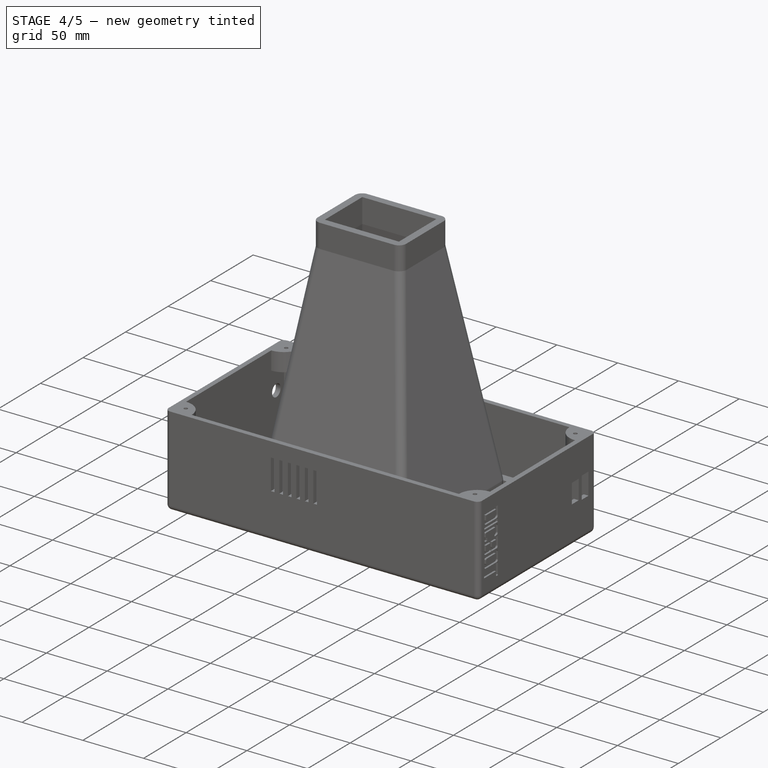
[diagram: stage 4 of 5 — iso view after this stage's code; geometry added in this stage tinted green]
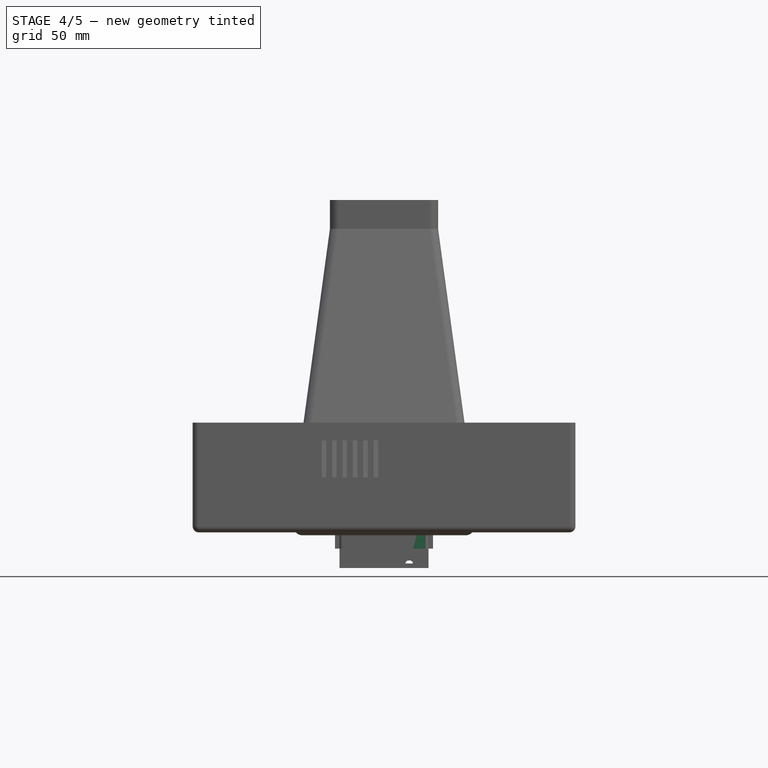
[diagram: stage 4 of 5 — front view after this stage's code; geometry added in this stage tinted green]
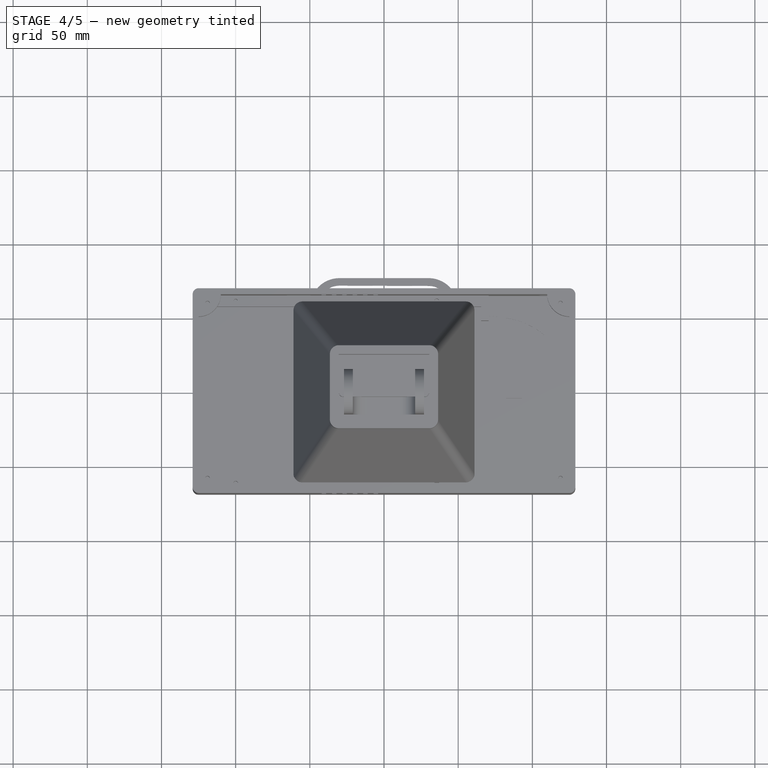
[diagram: stage 4 of 5 — top view after this stage's code; geometry added in this stage tinted green]
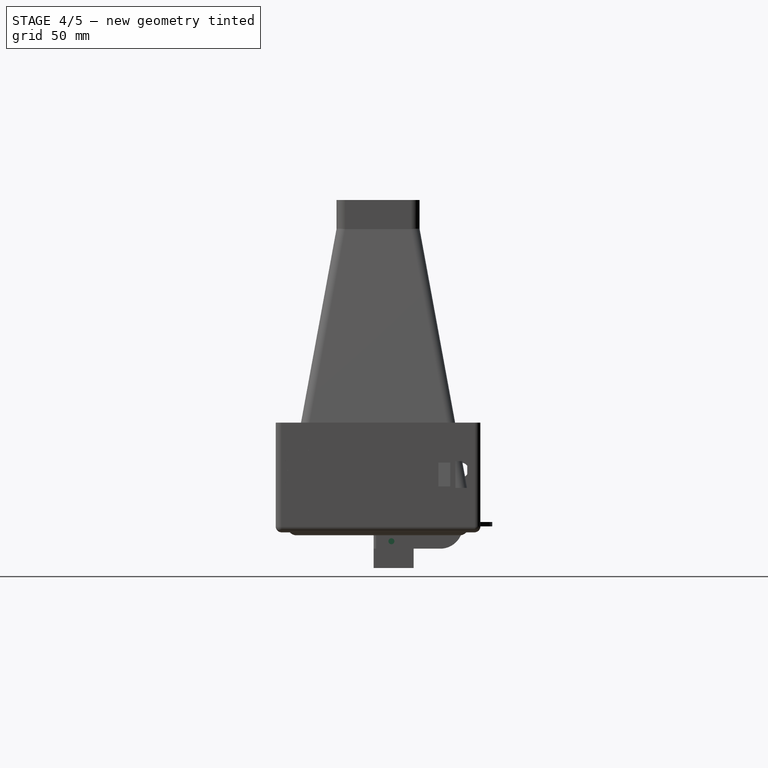
[diagram: stage 4 of 5 — right view after this stage's code; geometry added in this stage tinted green]
FEATURE [Sketcher::SketchObject] Sketch020
  FullyConstrained = false
  MapMode = 5
  Placement = pos=(129,0,0) rot=(0.57735,0.57735,0.57735;2.0944rad)
  Support = -> [Pocket001]
  sketch-geometry (139):
    g0: LineSegment StartX=-46.4077 StartY=59.5808 StartZ=0 EndX=-62.2215 EndY=59.5808 EndZ=0
    g1: LineSegment StartX=-62.2215 StartY=59.5808 StartZ=0 EndX=-62.2215 EndY=52.4969 EndZ=0
    g2: LineSegment StartX=-46.4077 StartY=59.5808 StartZ=0 EndX=-46.4077 EndY=52.9128 EndZ=0
    g3: LineSegment StartX=-48.7061 StartY=50.4681 StartZ=0 EndX=-59.8635 EndY=50.4681 EndZ=0
    g4: LineSegment StartX=-48.2119 StartY=57.3082 StartZ=0 EndX=-60.2277 EndY=57.3082 EndZ=0
    g5: LineSegment StartX=-60.2277 StartY=57.3082 StartZ=0 EndX=-60.2277 EndY=53.2963 EndZ=0
    g6: LineSegment StartX=-59.5581 StartY=52.6267 StartZ=0 EndX=-49.0137 EndY=52.6267 EndZ=0
    g7: LineSegment StartX=-48.2119 StartY=53.4286 StartZ=0 EndX=-48.2119 EndY=57.3082 EndZ=0
    g8: ArcOfCircle CenterX=-49.0137 CenterY=53.4286 CenterZ=0 NormalX=0 NormalY=0 NormalZ=1 AngleXU=0 Radius=0.80181 StartAngle=4.71239 EndAngle=6.28319
    g9: ArcOfCircle CenterX=-59.5581 CenterY=53.2963 CenterZ=0 NormalX=0 NormalY=0 NormalZ=1 AngleXU=0 Radius=0.669556 StartAngle=3.14159 EndAngle=4.71239
    g10: Circle CenterX=-46.4077 CenterY=52.9128 CenterZ=0 NormalX=0 NormalY=0 NormalZ=1 AngleXU=0 Radius=1
    g11: Circle CenterX=-46.3577 CenterY=50.4557 CenterZ=0 NormalX=0 NormalY=0 NormalZ=1 AngleXU=0 Radius=1
    g12: Circle CenterX=-48.7061 CenterY=50.4681 CenterZ=0 NormalX=0 NormalY=0 NormalZ=1 AngleXU=0 Radius=1
    g13: BSplineCurve PolesCount=3 KnotsCount=2 Degree=2 IsPeriodic=0
    g14: GeomPoint X=-46.4077 Y=52.9128 Z=0
    g15: GeomPoint X=-48.7061 Y=50.4681 Z=0
    g16: Circle CenterX=-62.2215 CenterY=52.4969 CenterZ=0 NormalX=0 NormalY=0 NormalZ=1 AngleXU=0 Radius=1
    g17: Circle CenterX=-62.2249 CenterY=50.442 CenterZ=0 NormalX=0 NormalY=0 NormalZ=1 AngleXU=0 Radius=1
    g18: Circle CenterX=-59.8635 CenterY=50.4681 CenterZ=0 NormalX=0 NormalY=0 NormalZ=1 AngleXU=0 Radius=1
    g19: BSplineCurve PolesCount=3 KnotsCount=2 Degree=2 IsPeriodic=0
    g20: GeomPoint X=-62.2215 Y=52.4969 Z=0
    g21: GeomPoint X=-59.8635 Y=50.4681 Z=0
    g22: LineSegment StartX=-46.9301 StartY=49.752 StartZ=0 EndX=-61.7265 EndY=49.752 EndZ=0
    g23: LineSegment StartX=-62.2345 StartY=49.244 StartZ=0 EndX=-62.2345 EndY=47.7721 EndZ=0
    g24: LineSegment StartX=-61.7851 StartY=47.3227 StartZ=0 EndX=-46.7605 EndY=47.3227 EndZ=0
    g25: LineSegment StartX=-46.4077 StartY=47.6755 StartZ=0 EndX=-46.4077 EndY=49.2296 EndZ=0
    g26: LineSegment StartX=-62.2215 StartY=52.4969 StartZ=0 EndX=-62.2215 EndY=49.7245 EndZ=0
    g27: ArcOfCircle CenterX=-46.9301 CenterY=49.2296 CenterZ=0 NormalX=0 NormalY=0 NormalZ=1 AngleXU=0 Radius=0.522373 StartAngle=0 EndAngle=1.5708
    g28: ArcOfCircle CenterX=-46.7605 CenterY=47.6755 CenterZ=0 NormalX=0 NormalY=0 NormalZ=1 AngleXU=0 Radius=0.352804 StartAngle=4.71239 EndAngle=6.28319
    g29: ArcOfCircle CenterX=-61.7265 CenterY=49.244 CenterZ=0 NormalX=0 NormalY=0 NormalZ=1 AngleXU=0 Radius=0.507971 StartAngle=1.5708 EndAngle=3.14159
    g30: ArcOfCircle CenterX=-61.7851 CenterY=47.7721 CenterZ=0 NormalX=0 NormalY=0 NormalZ=1 AngleXU=0 Radius=0.44941 StartAngle=3.14159 EndAngle=4.71239
    g31: LineSegment StartX=-62.3836 StartY=43.4245 StartZ=0 EndX=-62.3836 EndY=40.0424 EndZ=0
    g32: LineSegment StartX=-60.0649 StartY=37.9329 StartZ=0 EndX=-58.8446 EndY=37.9329 EndZ=0
    g33: LineSegment StartX=-58.8446 StartY=37.9329 StartZ=0 EndX=-58.8446 EndY=40.1495 EndZ=0
    g34: LineSegment StartX=-58.8446 StartY=40.1495 StartZ=0 EndX=-59.8968 EndY=40.1495 EndZ=0
    g35: LineSegment StartX=-60.5286 StartY=40.7812 StartZ=0 EndX=-60.5286 EndY=43.6745 EndZ=0
    g36: LineSegment StartX=-59.9312 StartY=44.2718 StartZ=0 EndX=-49.349 EndY=44.2718 EndZ=0
    g37: LineSegment StartX=-48.5496 StartY=43.4724 StartZ=0 EndX=-48.5496 EndY=40.7064 EndZ=0
    g38: LineSegment StartX=-49.1265 StartY=40.1295 StartZ=0 EndX=-50.3104 EndY=40.1295 EndZ=0
    g39: LineSegment StartX=-50.3104 StartY=40.1295 StartZ=0 EndX=-50.3104 EndY=37.8807 EndZ=0
    g40: LineSegment StartX=-50.3104 StartY=37.8807 StartZ=0 EndX=-48.6542 EndY=37.8807 EndZ=0
    g41: LineSegment StartX=-46.4077 StartY=39.8952 StartZ=0 EndX=-46.4077 EndY=43.788 EndZ=0
    g42: LineSegment StartX=-48.6329 StartY=46.4925 StartZ=0 EndX=-60.2326 EndY=46.4925 EndZ=0
    g43: Circle CenterX=-62.3836 CenterY=40.0424 CenterZ=0 NormalX=0 NormalY=0 NormalZ=1 AngleXU=0 Radius=1
    g44: Circle CenterX=-62.4019 CenterY=37.8534 CenterZ=0 NormalX=0 NormalY=0 NormalZ=1 AngleXU=0 Radius=1
    g45: Circle CenterX=-60.0649 CenterY=37.9329 CenterZ=0 NormalX=0 NormalY=0 NormalZ=1 AngleXU=0 Radius=1
    g46: BSplineCurve PolesCount=3 KnotsCount=2 Degree=2 IsPeriodic=0
    g47: GeomPoint X=-62.3836 Y=40.0424 Z=0
    g48: GeomPoint X=-60.0649 Y=37.9329 Z=0
    g49: ArcOfCircle CenterX=-59.8968 CenterY=40.7812 CenterZ=0 NormalX=0 NormalY=0 NormalZ=1 AngleXU=0 Radius=0.631723 StartAngle=3.14159 EndAngle=4.71239
    g50: ArcOfCircle CenterX=-59.9312 CenterY=43.6745 CenterZ=0 NormalX=0 NormalY=0 NormalZ=1 AngleXU=0 Radius=0.597371 StartAngle=1.5708 EndAngle=3.14159
    g51: Circle CenterX=-62.3836 CenterY=43.4245 CenterZ=0 NormalX=0 NormalY=0 NormalZ=1 AngleXU=0 Radius=1
    g52: Circle CenterX=-62.5404 CenterY=46.4964 CenterZ=0 NormalX=0 NormalY=0 NormalZ=1 AngleXU=0 Radius=1
    g53: Circle CenterX=-60.2326 CenterY=46.4925 CenterZ=0 NormalX=0 NormalY=0 NormalZ=1 AngleXU=0 Radius=1
    g54: BSplineCurve PolesCount=3 KnotsCount=2 Degree=2 IsPeriodic=0
    g55: GeomPoint X=-62.3836 Y=43.4245 Z=0
    g56: GeomPoint X=-60.2326 Y=46.4925 Z=0
    g57: Circle CenterX=-48.6329 CenterY=46.4925 CenterZ=0 NormalX=0 NormalY=0 NormalZ=1 AngleXU=0 Radius=1
    g58: Circle CenterX=-46.263 CenterY=46.5109 CenterZ=0 NormalX=0 NormalY=0 NormalZ=1 AngleXU=0 Radius=1
    g59: Circle CenterX=-46.4077 CenterY=43.788 CenterZ=0 NormalX=0 NormalY=0 NormalZ=1 AngleXU=0 Radius=1
    g60: BSplineCurve PolesCount=3 KnotsCount=2 Degree=2 IsPeriodic=0
    g61: GeomPoint X=-48.6329 Y=46.4925 Z=0
    g62: GeomPoint X=-46.4077 Y=43.788 Z=0
    g63: Circle CenterX=-46.4077 CenterY=39.8952 CenterZ=0 NormalX=0 NormalY=0 NormalZ=1 AngleXU=0 Radius=1
    g64: Circle CenterX=-46.2981 CenterY=37.8864 CenterZ=0 NormalX=0 NormalY=0 NormalZ=1 AngleXU=0 Radius=1
    g65: Circle CenterX=-48.6542 CenterY=37.8807 CenterZ=0 NormalX=0 NormalY=0 NormalZ=1 AngleXU=0 Radius=1
    g66: BSplineCurve PolesCount=3 KnotsCount=2 Degree=2 IsPeriodic=0
    g67: GeomPoint X=-46.4077 Y=39.8952 Z=0
    g68: GeomPoint X=-48.6542 Y=37.8807 Z=0
    g69: ArcOfCircle CenterX=-49.1265 CenterY=40.7064 CenterZ=0 NormalX=0 NormalY=0 NormalZ=1 AngleXU=0 Radius=0.576905 StartAngle=4.71239 EndAngle=6.28319
    g70: ArcOfCircle CenterX=-49.349 CenterY=43.4724 CenterZ=0 NormalX=0 NormalY=0 NormalZ=1 AngleXU=0 Radius=0.799389 StartAngle=1e-16 EndAngle=1.5708
    g71: LineSegment StartX=-46.4339 StartY=30.0666 StartZ=0 EndX=-46.4339 EndY=36.8807 EndZ=0
    g72: LineSegment StartX=-46.4339 StartY=36.8807 StartZ=0 EndX=-62.2767 EndY=36.8807 EndZ=0
    g73: LineSegment StartX=-62.2767 StartY=36.8807 StartZ=0 EndX=-62.2767 EndY=29.8585 EndZ=0
    g74: LineSegment StartX=-48.3363 StartY=34.8001 StartZ=0 EndX=-53.3039 EndY=34.8001 EndZ=0
    g75: LineSegment StartX=-53.3039 StartY=34.8001 StartZ=0 EndX=-53.3039 EndY=31.0271 EndZ=0
    g76: LineSegment StartX=-52.6295 StartY=30.3527 StartZ=0 EndX=-49.1447 EndY=30.3527 EndZ=0
    g77: LineSegment StartX=-48.3363 StartY=31.161 StartZ=0 EndX=-48.3363 EndY=34.8001 EndZ=0
    g78: LineSegment StartX=-55.0204 StartY=34.8521 StartZ=0 EndX=-60.4561 EndY=34.8521 EndZ=0
    g79: LineSegment StartX=-60.4561 StartY=34.8521 StartZ=0 EndX=-60.4561 EndY=30.6109 EndZ=0
    g80: LineSegment StartX=-59.7817 StartY=29.9365 StartZ=0 EndX=-55.9639 EndY=29.9365 EndZ=0
    g81: LineSegment StartX=-55.0204 StartY=30.88 StartZ=0 EndX=-55.0204 EndY=34.8521 EndZ=0
    g82: ArcOfCircle CenterX=-49.1447 CenterY=31.161 CenterZ=0 NormalX=0 NormalY=0 NormalZ=1 AngleXU=0 Radius=0.808373 StartAngle=4.71239 EndAngle=6.28319
    g83: ArcOfCircle CenterX=-52.6295 CenterY=31.0271 CenterZ=0 NormalX=0 NormalY=0 NormalZ=1 AngleXU=0 Radius=0.674389 StartAngle=3.14159 EndAngle=4.71239
    g84: ArcOfCircle CenterX=-55.9639 CenterY=30.88 CenterZ=0 NormalX=0 NormalY=0 NormalZ=1 AngleXU=0 Radius=0.943427 StartAngle=4.71239 EndAngle=6.28319
    g85: ArcOfCircle CenterX=-59.7817 CenterY=30.6109 CenterZ=0 NormalX=0 NormalY=0 NormalZ=1 AngleXU=0 Radius=0.674385 StartAngle=3.14159 EndAngle=4.71239
    g86: LineSegment StartX=-48.5844 StartY=28.1556 StartZ=0 EndX=-53.2403 EndY=28.1556 EndZ=0
    g87: LineSegment StartX=-55.4519 StartY=28.1556 StartZ=0 EndX=-60.1855 EndY=28.1556 EndZ=0
    g88: Circle CenterX=-46.4339 CenterY=30.0666 CenterZ=0 NormalX=0 NormalY=0 NormalZ=1 AngleXU=0 Radius=1
    g89: Circle CenterX=-46.3538 CenterY=28.1133 CenterZ=0 NormalX=0 NormalY=0 NormalZ=1 AngleXU=0 Radius=1
    g90: Circle CenterX=-48.5844 CenterY=28.1556 CenterZ=0 NormalX=0 NormalY=0 NormalZ=1 AngleXU=0 Radius=1
    g91: BSplineCurve PolesCount=3 KnotsCount=2 Degree=2 IsPeriodic=0
    g92: GeomPoint X=-46.4339 Y=30.0666 Z=0
    g93: GeomPoint X=-48.5844 Y=28.1556 Z=0
    g94: GeomPoint X=-53.9838 Y=29.1162 Z=0
    g95: Circle CenterX=-53.9838 CenterY=29.1162 CenterZ=0 NormalX=0 NormalY=0 NormalZ=1 AngleXU=0 Radius=1
    g96: Circle CenterX=-53.8956 CenterY=28.1071 CenterZ=0 NormalX=0 NormalY=0 NormalZ=1 AngleXU=0 Radius=1
    g97: Circle CenterX=-53.2403 CenterY=28.1556 CenterZ=0 NormalX=0 NormalY=0 NormalZ=1 AngleXU=0 Radius=1
    g98: BSplineCurve PolesCount=3 KnotsCount=2 Degree=2 IsPeriodic=0
    g99: GeomPoint X=-53.9838 Y=29.1162 Z=0
    g100: GeomPoint X=-53.2403 Y=28.1556 Z=0
    g101: Circle CenterX=-53.9838 CenterY=29.1162 CenterZ=0 NormalX=0 NormalY=0 NormalZ=1 AngleXU=0 Radius=1
    g102: Circle CenterX=-53.9481 CenterY=28.0588 CenterZ=0 NormalX=0 NormalY=0 NormalZ=1 AngleXU=0 Radius=1
    g103: Circle CenterX=-55.4519 CenterY=28.1556 CenterZ=0 NormalX=0 NormalY=0 NormalZ=1 AngleXU=0 Radius=1
    g104: BSplineCurve PolesCount=3 KnotsCount=2 Degree=2 IsPeriodic=0
    g105: GeomPoint X=-53.9838 Y=29.1162 Z=0
    g106: GeomPoint X=-55.4519 Y=28.1556 Z=0
    g107: Circle CenterX=-62.2767 CenterY=29.8585 CenterZ=0 NormalX=0 NormalY=0 NormalZ=1 AngleXU=0 Radius=1
    g108: Circle CenterX=-62.3636 CenterY=27.9292 CenterZ=0 NormalX=0 NormalY=0 NormalZ=1 AngleXU=0 Radius=1
    g109: Circle CenterX=-60.1855 CenterY=28.1556 CenterZ=0 NormalX=0 NormalY=0 NormalZ=1 AngleXU=0 Radius=1
    g110: BSplineCurve PolesCount=3 KnotsCount=2 Degree=2 IsPeriodic=0
    g111: GeomPoint X=-62.2767 Y=29.8585 Z=0
    g112: GeomPoint X=-60.1855 Y=28.1556 Z=0
    g113: LineSegment StartX=-48.2203 StartY=27.0606 StartZ=0 EndX=-59.982 EndY=27.0606 EndZ=0
    g114: LineSegment StartX=-62.2943 StartY=24.7483 StartZ=0 EndX=-62.2943 EndY=19.5944 EndZ=0
    g115: LineSegment StartX=-60.5467 StartY=17.8467 StartZ=0 EndX=-47.9143 EndY=17.8467 EndZ=0
    g116: LineSegment StartX=-46.3278 StartY=19.4332 StartZ=0 EndX=-46.3278 EndY=25.1681 EndZ=0
    g117: ArcOfCircle CenterX=-48.2203 CenterY=25.1681 CenterZ=0 NormalX=0 NormalY=0 NormalZ=1 AngleXU=0 Radius=1.89249 StartAngle=1e-16 EndAngle=1.5708
    g118: ArcOfCircle CenterX=-47.9143 CenterY=19.4332 CenterZ=0 NormalX=0 NormalY=0 NormalZ=1 AngleXU=0 Radius=1.58647 StartAngle=4.71239 EndAngle=6.28319
    g119: ArcOfCircle CenterX=-60.5467 CenterY=19.5944 CenterZ=0 NormalX=0 NormalY=0 NormalZ=1 AngleXU=0 Radius=1.74762 StartAngle=3.14159 EndAngle=4.71239
    g120: ArcOfCircle CenterX=-59.982 CenterY=24.7483 CenterZ=0 NormalX=0 NormalY=0 NormalZ=1 AngleXU=0 Radius=2.31227 StartAngle=1.5708 EndAngle=3.14159
    g121: LineSegment StartX=-49.0881 StartY=24.7993 StartZ=0 EndX=-59.1591 EndY=24.7993 EndZ=0
    g122: LineSegment StartX=-60.2699 StartY=23.6885 StartZ=0 EndX=-60.2699 EndY=21.1526 EndZ=0
    g123: LineSegment StartX=-59.3392 StartY=20.2219 StartZ=0 EndX=-49.0601 EndY=20.2219 EndZ=0
    g124: LineSegment StartX=-48.1761 StartY=21.1059 StartZ=0 EndX=-48.1761 EndY=23.8873 EndZ=0
    g125: ArcOfCircle CenterX=-59.1591 CenterY=23.6885 CenterZ=0 NormalX=0 NormalY=0 NormalZ=1 AngleXU=0 Radius=1.11083 StartAngle=1.5708 EndAngle=3.14159
    g126: ArcOfCircle CenterX=-59.3392 CenterY=21.1526 CenterZ=0 NormalX=0 NormalY=0 NormalZ=1 AngleXU=0 Radius=0.930694 StartAngle=3.14159 EndAngle=4.71239
    g127: ArcOfCircle CenterX=-49.0601 CenterY=21.1059 CenterZ=0 NormalX=0 NormalY=0 NormalZ=1 AngleXU=0 Radius=0.884063 StartAngle=4.71239 EndAngle=6.28319
    g128: ArcOfCircle CenterX=-49.0881 CenterY=23.8873 CenterZ=0 NormalX=0 NormalY=0 NormalZ=1 AngleXU=0 Radius=0.912053 StartAngle=0 EndAngle=1.5708
    g129: LineSegment StartX=-48.6258 StartY=17.3593 StartZ=0 EndX=-48.6258 EndY=13.648 EndZ=0
    g130: LineSegment StartX=-48.6258 StartY=13.648 StartZ=0 EndX=-62.6819 EndY=13.648 EndZ=0
    g131: LineSegment StartX=-62.6819 StartY=13.648 StartZ=0 EndX=-62.6819 EndY=11.3161 EndZ=0
    g132: LineSegment StartX=-62.6819 StartY=11.3161 StartZ=0 EndX=-48.4491 EndY=11.3161 EndZ=0
    g133: LineSegment StartX=-48.4491 StartY=11.3161 StartZ=0 EndX=-48.4491 EndY=7.63495 EndZ=0
    g134: LineSegment StartX=-48.4491 StartY=7.63495 StartZ=0 EndX=-46.9853 EndY=7.63495 EndZ=0
    g135: LineSegment StartX=-46.3898 StartY=8.23043 StartZ=0 EndX=-46.3898 EndY=16.587 EndZ=0
    g136: LineSegment StartX=-47.1621 StartY=17.3593 StartZ=0 EndX=-48.6258 EndY=17.3593 EndZ=0
    g137: ArcOfCircle CenterX=-47.1621 CenterY=16.587 CenterZ=0 NormalX=0 NormalY=0 NormalZ=1 AngleXU=0 Radius=0.77224 StartAngle=0 EndAngle=1.5708
    g138: ArcOfCircle CenterX=-46.9853 CenterY=8.23043 CenterZ=0 NormalX=0 NormalY=0 NormalZ=1 AngleXU=0 Radius=0.595471 StartAngle=4.71239 EndAngle=6.28319
  constraints (225):
    c: Horizontal(g0)
    c: Coincident(g0,g1)
    c: Vertical(g1)
    c: Coincident(g0,g2)
    c: Vertical(g2)
    c: Horizontal(g3)
    c: Coincident(g4,g5)
    c: Coincident(g7,g4)
    c: Horizontal(g4)
    c: Horizontal(g6)
    c: Vertical(g5)
    c: Vertical(g7)
    c: Tangent(g7,g8) = -1.5708
    c: Tangent(g6,g8) = -1.5708
    c: Tangent(g6,g9) = -1.5708
    c: Tangent(g5,g9) = -1.5708
    c: Weight(g10) = 1
    c: Coincident(g13,g2)
    c: Equal(g10,g11)
    c: Equal(g10,g12)
    c: Coincident(g13,g3)
    c: InternalAlignment(g10,g13)
    c: InternalAlignment(g11,g13)
    c: InternalAlignment(g12,g13)
    c: InternalAlignment(g14,g13)
    c: InternalAlignment(g15,g13)
    c: Weight(g16) = 1
    c: Coincident(g19,g1)
    c: Equal(g16,g17)
    c: Equal(g16,g18)
    c: Coincident(g19,g3)
    c: InternalAlignment(g16,g19)
    c: InternalAlignment(g17,g19)
    c: InternalAlignment(g18,g19)
    c: InternalAlignment(g20,g19)
    c: InternalAlignment(g21,g19)
    c: Horizontal(g22)
    c: Horizontal(g24)
    c: Vertical(g23)
    c: Vertical(g25)
    c: Coincident(g26,g1)
    c: Vertical(g26)
    c: Tangent(g25,g27) = -1.5708
    c: Tangent(g22,g27) = -1.5708
    c: Tangent(g25,g28) = -1.5708
    c: Tangent(g24,g28) = -1.5708
    c: Tangent(g23,g29) = -1.5708
    c: Tangent(g22,g29) = -1.5708
    c: Tangent(g23,g30) = -1.5708
    c: Tangent(g24,g30) = -1.5708
    c: Vertical(g31)
    c: Horizontal(g32)
    c: Coincident(g32,g33)
    c: Vertical(g33)
    c: Coincident(g33,g34)
    c: Vertical(g35)
    c: Horizontal(g36)
    c: Vertical(g37)
    c: Horizontal(g38)
    c: Coincident(g38,g39)
    c: Vertical(g39)
    c: Coincident(g39,g40)
    c: Horizontal(g40)
    c: Vertical(g41)
    c: Horizontal(g34)
    c: Horizontal(g42)
    c: Weight(g43) = 1
    c: Coincident(g46,g31)
    c: Equal(g43,g44)
    c: Equal(g43,g45)
    c: Coincident(g46,g32)
    c: InternalAlignment(g43,g46)
    c: InternalAlignment(g44,g46)
    c: InternalAlignment(g45,g46)
    c: InternalAlignment(g47,g46)
    c: InternalAlignment(g48,g46)
    c: Tangent(g34,g49) = 1.5708
    c: Tangent(g35,g49) = 1.5708
    c: Tangent(g35,g50) = 1.5708
    c: Tangent(g36,g50) = 1.5708
    c: Weight(g51) = 1
    c: Coincident(g54,g31)
    c: Equal(g51,g52)
    c: Equal(g51,g53)
    c: Coincident(g54,g42)
    c: InternalAlignment(g51,g54)
    c: InternalAlignment(g52,g54)
    c: InternalAlignment(g53,g54)
    c: InternalAlignment(g55,g54)
    c: InternalAlignment(g56,g54)
    c: Weight(g57) = 1
    c: Coincident(g60,g42)
    c: Equal(g57,g58)
    c: Equal(g57,g59)
    c: Coincident(g60,g41)
    c: InternalAlignment(g57,g60)
    c: InternalAlignment(g58,g60)
    c: InternalAlignment(g59,g60)
    c: InternalAlignment(g61,g60)
    c: InternalAlignment(g62,g60)
    c: Weight(g63) = 1
    c: Coincident(g66,g41)
    c: Equal(g63,g64)
    c: Equal(g63,g65)
    c: Coincident(g66,g40)
    c: InternalAlignment(g63,g66)
    c: InternalAlignment(g64,g66)
    c: InternalAlignment(g65,g66)
    c: InternalAlignment(g67,g66)
    c: InternalAlignment(g68,g66)
    c: Tangent(g38,g69) = 1.5708
    c: Tangent(g37,g69) = 1.5708
    c: Tangent(g37,g70) = 1.5708
    c: Tangent(g36,g70) = 1.5708
    c: Vertical(g71)
    c: Coincident(g71,g72)
    c: Horizontal(g72)
    c: Tangent(g72,g65)
    c: Coincident(g72,g73)
    c: Vertical(g73)
    c: Coincident(g74,g75)
    c: Coincident(g77,g74)
    c: Horizontal(g74)
    c: Horizontal(g76)
    c: Vertical(g75)
    c: Vertical(g77)
    c: Coincident(g78,g79)
    c: Coincident(g81,g78)
    c: Horizontal(g78)
    c: Horizontal(g80)
    c: Vertical(g79)
    c: Vertical(g81)
    c: Tangent(g77,g82) = -1.5708
    c: Tangent(g76,g82) = -1.5708
    c: Tangent(g76,g83) = -1.5708
    c: Tangent(g75,g83) = -1.5708
    c: Tangent(g81,g84) = -1.5708
    c: Tangent(g80,g84) = -1.5708
    c: Tangent(g80,g85) = -1.5708
    c: Tangent(g79,g85) = -1.5708
    c: Horizontal(g86)
    c: Horizontal(g87)
    c: Weight(g88) = 1
    c: Coincident(g91,g71)
    c: Equal(g88,g89)
    c: Equal(g88,g90)
    c: Coincident(g91,g86)
    c: InternalAlignment(g88,g91)
    c: InternalAlignment(g89,g91)
    c: InternalAlignment(g90,g91)
    c: InternalAlignment(g92,g91)
    c: InternalAlignment(g93,g91)
    c: Weight(g95) = 1
    c: Coincident(g98,g94)
    c: Equal(g95,g96)
    c: Equal(g95,g97)
    c: Coincident(g98,g86)
    c: InternalAlignment(g95,g98)
    c: InternalAlignment(g96,g98)
    c: InternalAlignment(g97,g98)
    c: InternalAlignment(g99,g98)
    c: InternalAlignment(g100,g98)
    c: Weight(g101) = 1
    c: Coincident(g104,g98)
    c: Equal(g101,g102)
    c: Equal(g101,g103)
    c: Coincident(g104,g87)
    c: InternalAlignment(g101,g104)
    c: InternalAlignment(g102,g104)
    c: InternalAlignment(g103,g104)
    c: InternalAlignment(g105,g104)
    c: InternalAlignment(g106,g104)
    c: Weight(g107) = 1
    c: Coincident(g110,g73)
    c: Equal(g107,g108)
    c: Equal(g107,g109)
    c: Coincident(g110,g87)
    c: InternalAlignment(g107,g110)
    c: InternalAlignment(g108,g110)
    c: InternalAlignment(g109,g110)
    c: InternalAlignment(g111,g110)
    c: InternalAlignment(g112,g110)
    c: Horizontal(g113)
    c: Horizontal(g115)
    c: Vertical(g114)
    c: Vertical(g116)
    c: Tangent(g116,g117) = -1.5708
    c: Tangent(g113,g117) = -1.5708
    c: Tangent(g116,g118) = -1.5708
    c: Tangent(g115,g118) = -1.5708
    c: Tangent(g114,g119) = -1.5708
    c: Tangent(g115,g119) = -1.5708
    c: Tangent(g114,g120) = -1.5708
    c: Tangent(g113,g120) = -1.5708
    c: Horizontal(g121)
    c: Horizontal(g123)
    c: Vertical(g122)
    c: Vertical(g124)
    c: Tangent(g122,g125) = -1.5708
    c: Tangent(g121,g125) = -1.5708
    c: Tangent(g122,g126) = -1.5708
    c: Tangent(g123,g126) = -1.5708
    c: Tangent(g124,g127) = -1.5708
    c: Tangent(g123,g127) = -1.5708
    c: Tangent(g124,g128) = -1.5708
    c: Tangent(g121,g128) = -1.5708
    c: Vertical(g129)
    c: Coincident(g129,g130)
    c: Horizontal(g130)
    c: Coincident(g130,g131)
    c: Vertical(g131)
    c: Coincident(g131,g132)
    c: Horizontal(g132)
    c: Coincident(g132,g133)
    c: Vertical(g133)
    c: Coincident(g133,g134)
    c: Vertical(g135)
    c: Coincident(g136,g129)
    c: Horizontal(g136)
    c: Horizontal(g134)
    c: Equal(g136,g134)
    c: Tangent(g136,g137) = -1.5708
    c: Tangent(g135,g137) = -1.5708
    c: Tangent(g135,g138) = -1.5708
    c: Tangent(g134,g138) = -1.5708
FEATURE [PartDesign::Plane] DatumPlane001
  Length = 60
  MapMode = 5
  Placement = pos=(0,0,0) rot=(-1,0,0;1.5708rad)
  ResizeMode = 0
  Width = 60
FEATURE [Sketcher::SketchObject] Sketch052
  FullyConstrained = true
  MapMode = 5
  Placement = pos=(0,0,0) rot=(-1,0,0;1.5708rad)
  Support = -> [DatumPlane001]
  sketch-geometry (4):
    g0: LineSegment StartX=-30 StartY=-12 StartZ=0 EndX=30 EndY=-12 EndZ=0
    g1: LineSegment StartX=30 StartY=-12 StartZ=0 EndX=30 EndY=-15 EndZ=0
    g2: LineSegment StartX=30 StartY=-15 StartZ=0 EndX=-30 EndY=-15 EndZ=0
    g3: LineSegment StartX=-30 StartY=-15 StartZ=0 EndX=-30 EndY=-12 EndZ=0
  constraints (11):
    c: Coincident(g0,g1)
    c: Coincident(g1,g2)
    c: Coincident(g2,g3)
    c: Coincident(g3,g0)
    c: Horizontal(g0)
    c: Vertical(g1)
    c: Vertical(g3)
    c: DistanceX(g2,g2) = 60
    c: Symmetric(g2,g1,g-2)
    c: DistanceY(g1,g1) = 3
    c: DistanceY(g1,g-1) = 15
FEATURE [Sketcher::SketchObject] Sketch005
  FullyConstrained = true
  MapMode = 5
  Placement = pos=(0,0,0) rot=(1,0,0;1.5708rad)
  Support = -> [XZ_Plane002]
  sketch-geometry (4):
    g0: LineSegment StartX=-30 StartY=15 StartZ=0 EndX=30 EndY=15 EndZ=0
    g1: LineSegment StartX=30 StartY=15 StartZ=0 EndX=30 EndY=-15 EndZ=0
    g2: LineSegment StartX=30 StartY=-15 StartZ=0 EndX=-30 EndY=-15 EndZ=0
    g3: LineSegment StartX=-30 StartY=-15 StartZ=0 EndX=-30 EndY=15 EndZ=0
  constraints (10):
    c: Coincident(g0,g1)
    c: Coincident(g1,g2)
    c: Coincident(g2,g3)
    c: Coincident(g3,g0)
    c: Horizontal(g2)
    c: Vertical(g1)
    c: DistanceX(g0,g0) = 60
    c: DistanceY(g1,g1) = 30
    c: Symmetric(g0,g0,g-2)
    c: Symmetric(g0,g2,g-1)
FEATURE [PartDesign::Pad] Pad002
  Direction = (0,-1,2e-16)
  Length = 3
  Length2 = 10
  Placement = pos=(0,0,0) rot=(1,0,0;1.5708rad)
  Profile = -> Sketch005
  ReferenceAxis = -> Sketch005 [N_Axis]
  Type = 0
FEATURE [Sketcher::SketchObject] Sketch053
  ExternalGeometry = -> [Pad002]
  FullyConstrained = true
  MapMode = 5
  Placement = pos=(0,0,0) rot=(-1,0,0;1.5708rad)
  Support = -> [Pad002]
  sketch-geometry (8):
    g0: LineSegment StartX=-30 StartY=15 StartZ=0 EndX=-27 EndY=15 EndZ=0
    g1: LineSegment StartX=-27 StartY=15 StartZ=0 EndX=-27 EndY=-15 EndZ=0
    g2: LineSegment StartX=-27 StartY=-15 StartZ=0 EndX=-30 EndY=-15 EndZ=0
    g3: LineSegment StartX=-30 StartY=-15 StartZ=0 EndX=-30 EndY=15 EndZ=0
    g4: LineSegment StartX=27 StartY=15 StartZ=0 EndX=30 EndY=15 EndZ=0
    g5: LineSegment StartX=30 StartY=15 StartZ=0 EndX=30 EndY=-15 EndZ=0
    g6: LineSegment StartX=30 StartY=-15 StartZ=0 EndX=27 EndY=-15 EndZ=0
    g7: LineSegment StartX=27 StartY=-15 StartZ=0 EndX=27 EndY=15 EndZ=0
  constraints (23):
    c: Coincident(g0,g1)
    c: Coincident(g1,g2)
    c: Coincident(g2,g3)
    c: Coincident(g3,g0)
    c: Horizontal(g0)
    c: Horizontal(g2)
    c: Vertical(g1)
    c: Coincident(g4,g5)
    c: Coincident(g5,g6)
    c: Coincident(g6,g7)
    c: Coincident(g7,g4)
    c: Horizontal(g4)
    c: Horizontal(g6)
    c: Vertical(g5)
    c: Vertical(g7)
    c: Symmetric(g0,g2,g-1)
    c: Horizontal(g0,g4)
    c: Horizontal(g6,g1)
    c: DistanceY(g3,g3) = 30
    c: Vertical(g4,g-4)
    c: Vertical(g0,g-3)
    c: DistanceX(g4,g4) = 3
    c: DistanceX(g0,g0) = 3
FEATURE [PartDesign::Pad] Pad003
  BaseFeature = -> Pad002
  Direction = (0,1,-2e-16)
  Length = 57
  Length2 = 10
  Placement = pos=(0,0,0) rot=(1,0,0;1.5708rad)
  Profile = -> Sketch053
  ReferenceAxis = -> Sketch053 [N_Axis]
  Type = 0
FEATURE [Sketcher::SketchObject] Sketch054
  FullyConstrained = true
  MapMode = 5
  Placement = pos=(-30,0,0) rot=(0.707107,0,-0.707107;3.14159rad)
  Support = -> [Pad003]
  sketch-geometry (13):
    g0: GeomPoint X=0 Y=-57 Z=0
    g1: GeomPoint X=0 Y=-42 Z=0
    g2: ArcOfCircle CenterX=0 CenterY=-42 CenterZ=0 NormalX=0 NormalY=0 NormalZ=1 AngleXU=0 Radius=15 StartAngle=3.14159 EndAngle=6.28319
    g3: GeomPoint X=15 Y=-42 Z=0
    g4: GeomPoint X=-15 Y=-42 Z=0
    g5: GeomPoint X=15 Y=-57 Z=0
    g6: GeomPoint X=-15 Y=-57 Z=0
    g7: LineSegment StartX=15 StartY=-42 StartZ=0 EndX=15 EndY=-57 EndZ=0
    g8: LineSegment StartX=15 StartY=-57 StartZ=0 EndX=0 EndY=-57 EndZ=0
    g9: LineSegment StartX=-15 StartY=-57 StartZ=0 EndX=0 EndY=-57 EndZ=0
    g10: LineSegment StartX=-15 StartY=-57 StartZ=0 EndX=-15 EndY=-42 EndZ=0
    g11: GeomPoint X=0 Y=-39 Z=0
    g12: Circle CenterX=0 CenterY=-42 CenterZ=0 NormalX=0 NormalY=0 NormalZ=1 AngleXU=0 Radius=3
  constraints (25):
    c: PointOnObject(g0,g-2)
    c: DistanceY(g0,g-1) = 57
    c: PointOnObject(g1,g-2)
    c: DistanceY(g0,g1) = 15
    c: Coincident(g2,g1)
    c: PointOnObject(g0,g2)
    c: Horizontal(g4,g2)
    c: Horizontal(g3,g2)
    c: Horizontal(g6,g0)
    c: Vertical(g4,g6)
    c: Horizontal(g5,g0)
    c: Coincident(g7,g3)
    c: Coincident(g7,g5)
    c: Coincident(g8,g7)
    c: Coincident(g8,g0)
    c: Coincident(g9,g6)
    c: Coincident(g9,g8)
    c: Coincident(g10,g9)
    c: Coincident(g10,g4)
    c: Tangent(g2,g7) = 1.5708
    c: Coincident(g2,g10)
    c: PointOnObject(g11,g-2)
    c: DistanceY(g2,g11) = 3
    c: Coincident(g12,g2)
    c: PointOnObject(g11,g12)
FEATURE [PartDesign::Pocket] Pocket022
  BaseFeature = -> Pad003
  Direction = (1,0,2e-16)
  Length = 60
  Length2 = 5
  Placement = pos=(0,0,0) rot=(1,0,0;1.5708rad)
  Profile = -> Sketch054
  ReferenceAxis = -> Sketch054 [N_Axis]
  Type = 0
FEATURE [PartDesign::Fillet] Fillet004
  Base = -> Pocket022 [Edge16]
  BaseFeature = -> Pocket022
  Placement = pos=(0,0,0) rot=(1,0,0;1.5708rad)
  Radius = 2
  SupportTransform = false
  UseAllEdges = false
FEATURE [PartDesign::Fillet] Fillet005
  Base = -> Fillet004 [Edge10]
  BaseFeature = -> Fillet004
  Placement = pos=(0,0,0) rot=(1,0,0;1.5708rad)
  Radius = 2
  SupportTransform = false
  UseAllEdges = false
FEATURE [PartDesign::Fillet] Fillet006
  Base = -> Fillet005 [Edge22]
  BaseFeature = -> Fillet005
  Placement = pos=(0,0,0) rot=(1,0,0;1.5708rad)
  Radius = 2
  SupportTransform = false
  UseAllEdges = false
FEATURE [PartDesign::Fillet] Fillet007
  Base = -> Fillet006 [Edge19]
  BaseFeature = -> Fillet006
  Placement = pos=(0,0,0) rot=(1,0,0;1.5708rad)
  Radius = 2
  SupportTransform = false
  UseAllEdges = false
FEATURE [PartDesign::Plane] DatumPlane
  Length = 80.7133
  MapMode = 5
  Placement = pos=(0,-6.6e-15,-15) rot=(1,0,0;3.14159rad)
  ResizeMode = 0
  Support = -> [Fillet007]
  Width = 96.7133
FEATURE [Sketcher::SketchObject] Sketch055
  ExternalGeometry = -> [Fillet007]
  FullyConstrained = false
  MapMode = 5
  Placement = pos=(0,-6.6e-15,-15) rot=(1,0,0;3.14159rad)
  Support = -> [DatumPlane]
  sketch-geometry (17):
    g0: GeomPoint X=-30 Y=3 Z=0
    g1: GeomPoint X=-30 Y=-20 Z=0
    g2: GeomPoint X=30 Y=3 Z=0
    g3: GeomPoint X=30 Y=-20 Z=0
    g4: GeomPoint X=-11.5 Y=3 Z=0
    g5: GeomPoint X=11.5 Y=3 Z=0
    g6: GeomPoint X=19.5 Y=3 Z=0
    g7: GeomPoint X=-11.5 Y=-5 Z=0
    g8: GeomPoint X=19.5 Y=-5 Z=0
    g9: LineSegment StartX=-30 StartY=-20 StartZ=0 EndX=30 EndY=-20 EndZ=0
    g10: LineSegment StartX=30 StartY=-20 StartZ=0 EndX=30 EndY=3 EndZ=0
    g11: LineSegment StartX=30 StartY=3 StartZ=0 EndX=19.5 EndY=3 EndZ=0
    g12: LineSegment StartX=19.5 StartY=3 StartZ=0 EndX=19.5 EndY=-5 EndZ=0
    g13: LineSegment StartX=19.5 StartY=-5 StartZ=0 EndX=-11.5 EndY=-5 EndZ=0
    g14: LineSegment StartX=-11.5 StartY=-5 StartZ=0 EndX=-11.5 EndY=3 EndZ=0
    g15: LineSegment StartX=-11.5 StartY=3 StartZ=0 EndX=-30 EndY=3 EndZ=0
    g16: LineSegment StartX=-30 StartY=3 StartZ=0 EndX=-30 EndY=-20 EndZ=0
  constraints (33):
    c: PointOnObject(g1,g-4)
    c: PointOnObject(g3,g-5)
    c: Horizontal(g0,g-3)
    c: Horizontal(g-3,g2)
    c: Vertical(g-5,g2)
    c: Vertical(g-4,g0)
    c: DistanceY(g1,g0) = 23
    c: DistanceY(g3,g2) = 23
    c: PointOnObject(g4,g-3)
    c: Symmetric(g5,g4,g-2)
    c: DistanceX(g4,g5) = 23
    c: PointOnObject(g6,g-3)
    c: DistanceX(g5,g6) = 8
    c: Vertical(g7,g4)
    c: Vertical(g8,g6)
    c: Horizontal(g8,g7)
    c: DistanceY(g8,g6) = 8
    c: Coincident(g9,g1)
    c: Coincident(g9,g3)
    c: Coincident(g10,g9)
    c: Coincident(g10,g2)
    c: Coincident(g11,g10)
    c: Coincident(g11,g6)
    c: Coincident(g12,g8)
    c: Vertical(g12)
    c: Coincident(g13,g7)
    c: Horizontal(g13)
    c: Coincident(g14,g4)
    c: Vertical(g14)
    c: Coincident(g15,g0)
    c: Horizontal(g15)
    c: Coincident(g16,g9)
    c: Vertical(g16)
FEATURE [PartDesign::Pad] Pad025
  BaseFeature = -> Fillet007
  Direction = (0,-2e-16,-1)
  Length = 13
  Length2 = 10
  Placement = pos=(0,0,0) rot=(1,0,0;1.5708rad)
  Profile = -> Sketch055
  ReferenceAxis = -> Sketch055 [N_Axis]
  Type = 0
FEATURE [Sketcher::SketchObject] Sketch056
  ExternalGeometry = -> [Pad025]
  FullyConstrained = true
  MapMode = 5
  Placement = pos=(0,20,-8.8e-15) rot=(-1,0,0;1.5708rad)
  Support = -> [Pad025]
  sketch-geometry (4):
    g0: LineSegment StartX=-27 StartY=25 StartZ=0 EndX=27 EndY=25 EndZ=0
    g1: LineSegment StartX=27 StartY=25 StartZ=0 EndX=27 EndY=15 EndZ=0
    g2: LineSegment StartX=27 StartY=15 StartZ=0 EndX=-27 EndY=15 EndZ=0
    g3: LineSegment StartX=-27 StartY=15 StartZ=0 EndX=-27 EndY=25 EndZ=0
  constraints (12):
    c: Coincident(g0,g1)
    c: Coincident(g1,g2)
    c: Coincident(g2,g3)
    c: Coincident(g3,g0)
    c: Horizontal(g0)
    c: Horizontal(g2)
    c: Vertical(g1)
    c: Vertical(g3)
    c: Vertical(g1,g-3)
    c: Vertical(g2,g-3)
    c: Horizontal(g2,g-3)
    c: DistanceY(g1,g1) = 10
FEATURE [PartDesign::Pocket] Pocket023
  BaseFeature = -> Pad025
  Direction = (0,-1,2e-16)
  Length = 20
  Length2 = 5
  Placement = pos=(0,0,0) rot=(1,0,0;1.5708rad)
  Profile = -> Sketch056
  ReferenceAxis = -> Sketch056 [N_Axis]
  Type = 0
FEATURE [PartDesign::Fillet] Fillet008
  Base = -> Pocket023 [Edge86]
  BaseFeature = -> Pocket023
  Placement = pos=(0,0,0) rot=(1,0,0;1.5708rad)
  Radius = 2
  SupportTransform = false
  UseAllEdges = false
FEATURE [PartDesign::Body] Body001  label="supp_head"
  Group = -> [Sketch005,Pad002,Sketch053,Pad003,Sketch054,Pocket022,Fillet004,Fillet005,Fillet006,Fillet007,DatumPlane,Sketch055,Pad025,Sketch056,Pocket023,Fillet008,Fillet009,Fillet010,Fillet011,DatumPlane001,Sketch052,Pad026,DatumPlane002,Sketch057,Pad027,DatumPlane003,Sketch058,Pocket024,Sketch059,Pad028,Sketch044,Pocket016,Sketch045,Pocket017,Sketch046,Pocket018,Pad029,Pad030,Pad031,Pad032,Pad033,Pad034]
  Origin = -> Origin002
  Tip = -> Pad034
FEATURE [PartDesign::Plane] CopyDatumPlane003
  Length = 60
  Placement = pos=(0,20,-4e-15) rot=(-1,0,0;1.5708rad)
  ResizeMode = 0
  Width = 60
FEATURE [Sketcher::SketchObject] Sketch060
  FullyConstrained = true
  MapMode = 5
  Placement = pos=(0,20,-4e-15) rot=(-1,0,0;1.5708rad)
  Support = -> [CopyDatumPlane003]
  sketch-geometry (20):
    g0: GeomPoint X=22.5 Y=25 Z=0
    g1: GeomPoint X=-22.5 Y=25 Z=0
    g2: GeomPoint X=-22.5 Y=-12 Z=0
    g3: GeomPoint X=22.5 Y=-12 Z=0
    g4: GeomPoint X=-21 Y=25 Z=0
    g5: GeomPoint X=24 Y=25 Z=0
    g6: GeomPoint X=-21 Y=-12 Z=0
    g7: GeomPoint X=24 Y=-12 Z=0
    g8: Circle CenterX=-22.5 CenterY=25 CenterZ=0 NormalX=0 NormalY=0 NormalZ=1 AngleXU=0 Radius=1.5
    g9: Circle CenterX=22.5 CenterY=25 CenterZ=0 NormalX=0 NormalY=0 NormalZ=1 AngleXU=0 Radius=1.5
    g10: Circle CenterX=22.5 CenterY=-12 CenterZ=0 NormalX=0 NormalY=0 NormalZ=1 AngleXU=0 Radius=1.5
    g11: Circle CenterX=-22.5 CenterY=-12 CenterZ=0 NormalX=0 NormalY=0 NormalZ=1 AngleXU=0 Radius=1.5
    g12: LineSegment StartX=-30 StartY=28 StartZ=0 EndX=30 EndY=28 EndZ=0
    g13: LineSegment StartX=30 StartY=28 StartZ=0 EndX=30 EndY=15.2 EndZ=0
    g14: LineSegment StartX=30 StartY=15.2 StartZ=0 EndX=26.8 EndY=15.2 EndZ=0
    g15: LineSegment StartX=26.8 StartY=15.2 StartZ=0 EndX=26.8 EndY=-15 EndZ=0
    g16: LineSegment StartX=26.8 StartY=-15 StartZ=0 EndX=-26.8 EndY=-15 EndZ=0
    g17: LineSegment StartX=-26.8 StartY=-15 StartZ=0 EndX=-26.8 EndY=15.2 EndZ=0
    g18: LineSegment StartX=-26.8 StartY=15.2 StartZ=0 EndX=-30 EndY=15.2 EndZ=0
    g19: LineSegment StartX=-30 StartY=15.2 StartZ=0 EndX=-30 EndY=28 EndZ=0
  constraints (51):
    c: DistanceY(g-1,g0) = 25
    c: Horizontal(g0,g1)
    c: DistanceX(g-1,g0) = 22.5
    c: DistanceX(g1,g-1) = 22.5
    c: Vertical(g2,g1)
    c: Vertical(g3,g0)
    c: Horizontal(g3,g2)
    c: DistanceY(g3,g-1) = 12
    c: Horizontal(g7,g3)
    c: Horizontal(g5,g0)
    c: Horizontal(g4,g1)
    c: Horizontal(g6,g2)
    c: Vertical(g4,g6)
    c: Vertical(g7,g5)
    c: DistanceX(g1,g4) = 1.5
    c: DistanceX(g0,g5) = 1.5
    c: Coincident(g8,g1)
    c: PointOnObject(g4,g8)
    c: Coincident(g9,g0)
    c: PointOnObject(g5,g9)
    c: Coincident(g10,g3)
    c: PointOnObject(g7,g10)
    c: Coincident(g11,g2)
    c: PointOnObject(g6,g11)
    c: Horizontal(g12)
    c: Coincident(g13,g12)
    c: Vertical(g13)
    c: Coincident(g14,g13)
    c: Vertical(g15)
    c: Horizontal(g16)
    c: Coincident(g17,g16)
    c: Coincident(g18,g17)
    c: Coincident(g19,g12)
    c: DistanceY(g-1,g12) = 28
    c: DistanceX(g-1,g14) = 26.8
    c: DistanceX(g-1,g15) = 26.8
    c: DistanceX(g-1,g16) = 26.8
    c: DistanceX(g16,g-1) = 26.8
    c: DistanceX(g17,g-1) = 26.8
    c: DistanceY(g16,g-1) = 15
    c: DistanceY(g15,g-1) = 15
    c: DistanceY(g14,g9) = 9.8
    c: DistanceY(g17,g8) = 9.8
    c: Horizontal(g18,g17)
    c: Horizontal(g19,g18)
    c: Horizontal(g13,g14)
    c: DistanceX(g-1,g13) = 30
    c: DistanceX(g18,g-1) = 30
    c: DistanceX(g12,g12) = 60
    c: Vertical(g19,g18)
    c: Horizontal(g15,g14)
FEATURE [PartDesign::Pad] Pad035
  Direction = (0,1,2e-16)
  Length = 4
  Length2 = 10
  Placement = pos=(0,20,-4e-15) rot=(-1,0,0;1.5708rad)
  Profile = -> Sketch060
  ReferenceAxis = -> Sketch060 [N_Axis]
  Type = 0
FEATURE [Sketcher::SketchObject] Sketch061
  ExternalGeometry = -> [Pad035]
  FullyConstrained = true
  MapMode = 5
  Placement = pos=(0,24,-3e-15) rot=(-1,0,0;1.5708rad)
  Support = -> [Pad035]
  sketch-geometry (8):
    g0: GeomPoint X=-20 Y=25 Z=0
    g1: GeomPoint X=20 Y=25 Z=0
    g2: GeomPoint X=20 Y=-12 Z=0
    g3: GeomPoint X=-20 Y=-12 Z=0
    g4: Circle CenterX=-22.5 CenterY=25 CenterZ=0 NormalX=0 NormalY=0 NormalZ=1 AngleXU=0 Radius=2.5
    g5: Circle CenterX=22.5 CenterY=25 CenterZ=0 NormalX=0 NormalY=0 NormalZ=1 AngleXU=0 Radius=2.5
    g6: Circle CenterX=22.5 CenterY=-12 CenterZ=0 NormalX=0 NormalY=0 NormalZ=1 AngleXU=0 Radius=2.5
    g7: Circle CenterX=-22.5 CenterY=-12 CenterZ=0 NormalX=0 NormalY=0 NormalZ=1 AngleXU=0 Radius=2.5
  constraints (16):
    c: Horizontal(g-4,g1)
    c: Horizontal(g0,g-3)
    c: Horizontal(g3,g-6)
    c: Horizontal(g2,g-5)
    c: DistanceX(g-3,g0) = 2.5
    c: DistanceX(g1,g-4) = 2.5
    c: Vertical(g1,g2)
    c: Vertical(g3,g0)
    c: Coincident(g4,g-3)
    c: PointOnObject(g0,g4)
    c: Coincident(g5,g-4)
    c: PointOnObject(g1,g5)
    c: Coincident(g6,g-5)
    c: PointOnObject(g2,g6)
    c: Coincident(g7,g-6)
    c: PointOnObject(g3,g7)
FEATURE [PartDesign::Pocket] Pocket025
  BaseFeature = -> Pad035
  Direction = (0,-1,-4e-16)
  Length = 2
  Length2 = 5
  Placement = pos=(0,20,-4e-15) rot=(-1,0,0;1.5708rad)
  Profile = -> Sketch061
  ReferenceAxis = -> Sketch061 [N_Axis]
  Type = 0
FEATURE [Sketcher::SketchObject] Sketch048
  FullyConstrained = true
  MapMode = 5
  Placement = pos=(0,20,-28) rot=(0,1,0;3.14159rad)
  Support = -> [Pocket025]
  sketch-geometry (5):
    g0: GeomPoint X=-14.5 Y=0 Z=0
    g1: LineSegment StartX=-14.5 StartY=0 StartZ=0 EndX=-19.5 EndY=0 EndZ=0
    g2: LineSegment StartX=-19.5 StartY=0 StartZ=0 EndX=-19.5 EndY=4 EndZ=0
    g3: LineSegment StartX=-19.5 StartY=4 StartZ=0 EndX=-14.5 EndY=4 EndZ=0
    g4: LineSegment StartX=-14.5 StartY=4 StartZ=0 EndX=-14.5 EndY=0 EndZ=0
  constraints (13):
    c: PointOnObject(g0,g-1)
    c: DistanceX(g0,g-1) = 14.5
    c: Coincident(g1,g2)
    c: Coincident(g2,g3)
    c: Coincident(g3,g4)
    c: Coincident(g4,g1)
    c: Horizontal(g1)
    c: Horizontal(g3)
    c: Vertical(g2)
    c: Vertical(g4)
    c: Coincident(g1,g0)
    c: DistanceX(g1,g1) = 5
    c: DistanceY(g4,g4) = 4
FEATURE [PartDesign::Pocket] Pocket019
  BaseFeature = -> Pocket025
  Direction = (0,-4e-16,1)
  Length = 5
  Length2 = 5
  Placement = pos=(0,20,-4e-15) rot=(-1,0,0;1.5708rad)
  Profile = -> Sketch048
  ReferenceAxis = -> Sketch048 [N_Axis]
  Type = 0
FEATURE [PartDesign::Fillet] Fillet012
  Base = -> Pocket019 [Edge37]
  BaseFeature = -> Pocket019
  Placement = pos=(0,20,-4e-15) rot=(-1,0,0;1.5708rad)
  Radius = 2
  SupportTransform = false
  UseAllEdges = false
FEATURE [PartDesign::Fillet] Fillet013
  Base = -> Fillet012 [Edge19]
  BaseFeature = -> Fillet012
  Placement = pos=(0,20,-4e-15) rot=(-1,0,0;1.5708rad)
  Radius = 2
  SupportTransform = false
  UseAllEdges = false
FEATURE [Sketcher::SketchObject] Sketch049
  FullyConstrained = true
  MapMode = 5
  Placement = pos=(0,24,-3e-15) rot=(-1,0,0;1.5708rad)
  Support = -> [Fillet013]
  sketch-geometry (3):
    g0: GeomPoint X=10 Y=-8 Z=0
    g1: GeomPoint X=14 Y=-8 Z=0
    g2: Circle CenterX=10 CenterY=-8 CenterZ=0 NormalX=0 NormalY=0 NormalZ=1 AngleXU=0 Radius=4
  constraints (6):
    c: DistanceX(g0,g1) = 4
    c: Horizontal(g1,g0)
    c: DistanceY(g0,g-1) = 8
    c: DistanceX(g-1,g0) = 10
    c: Coincident(g2,g0)
    c: PointOnObject(g1,g2)
FEATURE [PartDesign::Pocket] Pocket020
  BaseFeature = -> Fillet013
  Direction = (0,-1,-7e-16)
  Length = 4
  Length2 = 5
  Placement = pos=(0,20,-4e-15) rot=(-1,0,0;1.5708rad)
  Profile = -> Sketch049
  ReferenceAxis = -> Sketch049 [N_Axis]
  Type = 0
FEATURE [PartDesign::Body] Body007  label="supp_cover"
  Group = -> [CopyDatumPlane003,Sketch060,Pad035,Sketch061,Pocket025,Sketch048,Pocket019,Fillet012,Fillet013,Sketch049,Pocket020]
  Origin = -> Origin003
  Tip = -> Pocket020
FEATURE [Sketcher::SketchObject] Sketch042
  FullyConstrained = false
  MapMode = 5
  Placement = pos=(0,-55,0) rot=(0,0.707107,0.707107;3.14159rad)
  sketch-geometry (8):
    g0: LineSegment StartX=-55 StartY=9 StartZ=0 EndX=-50 EndY=9 EndZ=0
    g1: LineSegment StartX=-50 StartY=9 StartZ=0 EndX=-50 EndY=4 EndZ=0
    g2: LineSegment StartX=-50 StartY=4 StartZ=0 EndX=-55 EndY=4 EndZ=0
    g3: LineSegment StartX=-55 StartY=4 StartZ=0 EndX=-55 EndY=9 EndZ=0
    g4: LineSegment StartX=55 StartY=4 StartZ=0 EndX=50 EndY=4 EndZ=0
    g5: LineSegment StartX=50 StartY=4 StartZ=0 EndX=50 EndY=9 EndZ=0
    g6: LineSegment StartX=50 StartY=9 StartZ=0 EndX=55 EndY=9 EndZ=0
    g7: LineSegment StartX=55 StartY=9 StartZ=0 EndX=55 EndY=4 EndZ=0
  constraints (20):
    c: Coincident(g0,g1)
    c: Coincident(g1,g2)
    c: Coincident(g2,g3)
    c: Coincident(g3,g0)
    c: Horizontal(g0)
    c: Horizontal(g2)
    c: Vertical(g1)
    c: Vertical(g3)
    c: Coincident(g4,g5)
    c: Coincident(g5,g6)
    c: Coincident(g6,g7)
    c: Coincident(g7,g4)
    c: Horizontal(g4)
    c: Horizontal(g6)
    c: Vertical(g5)
    c: Vertical(g7)
    c: DistanceX(g4,g4) = 5
    c: DistanceX(g0,g0) = 5
    c: DistanceY(g5,g5) = 5
    c: DistanceY(g1,g1) = 5
FEATURE [Sketcher::SketchObject] Sketch038
  FullyConstrained = true
  MapMode = 5
  Support = -> [XY_Plane013]
  sketch-geometry (4):
    g0: LineSegment StartX=-55 StartY=55 StartZ=0 EndX=55 EndY=55 EndZ=0
    g1: LineSegment StartX=55 StartY=55 StartZ=0 EndX=55 EndY=-55 EndZ=0
    g2: LineSegment StartX=55 StartY=-55 StartZ=0 EndX=-55 EndY=-55 EndZ=0
    g3: LineSegment StartX=-55 StartY=-55 StartZ=0 EndX=-55 EndY=55 EndZ=0
  constraints (10):
    c: Coincident(g0,g1)
    c: Coincident(g1,g2)
    c: Coincident(g2,g3)
    c: Coincident(g3,g0)
    c: Horizontal(g2)
    c: Vertical(g1)
    c: DistanceX(g0,g0) = 110
    c: DistanceY(g1,g1) = 110
    c: Symmetric(g0,g0,g-2)
    c: Symmetric(g2,g0,g-1)
FEATURE [PartDesign::Pad] Pad036
  Direction = (0,0,1)
  Length = 220
  Length2 = 10
  Profile = -> Sketch038
  ReferenceAxis = -> Sketch038 [N_Axis]
  Type = 0
FEATURE [Sketcher::SketchObject] Sketch039
  FullyConstrained = true
  MapMode = 5
  Placement = pos=(0,-55,0) rot=(1,0,0;1.5708rad)
  Support = -> [Pad036]
  sketch-geometry (18):
    g0: GeomPoint X=0 Y=220 Z=0
    g1: GeomPoint X=-30.5 Y=220 Z=0
    g2: GeomPoint X=30.5 Y=220 Z=0
    g3: GeomPoint X=0 Y=20 Z=0
    g4: GeomPoint X=-55 Y=20 Z=0
    g5: GeomPoint X=55 Y=20 Z=0
    g6: GeomPoint X=-30.5 Y=200 Z=0
    g7: GeomPoint X=30.5 Y=200 Z=0
    g8: GeomPoint X=-55 Y=220 Z=0
    g9: GeomPoint X=55 Y=220 Z=0
    g10: LineSegment StartX=-55 StartY=20 StartZ=0 EndX=-30.5 EndY=200 EndZ=0
    g11: LineSegment StartX=-30.5 StartY=220 StartZ=0 EndX=-30.5 EndY=200 EndZ=0
    g12: LineSegment StartX=-55 StartY=220 StartZ=0 EndX=-30.5 EndY=220 EndZ=0
    g13: LineSegment StartX=-55 StartY=220 StartZ=0 EndX=-55 EndY=20 EndZ=0
    g14: LineSegment StartX=30.5 StartY=220 StartZ=0 EndX=55 EndY=220 EndZ=0
    g15: LineSegment StartX=55 StartY=20 StartZ=0 EndX=55 EndY=220 EndZ=0
    g16: LineSegment StartX=55 StartY=20 StartZ=0 EndX=30.5 EndY=200 EndZ=0
    g17: LineSegment StartX=30.5 StartY=200 StartZ=0 EndX=30.5 EndY=220 EndZ=0
  constraints (34):
    c: Vertical(g-1,g0)
    c: DistanceY(g-1,g0) = 220
    c: Horizontal(g2,g0)
    c: DistanceX(g1,g2) = 61
    c: Symmetric(g1,g2,g-2)
    c: Vertical(g-1,g3)
    c: DistanceY(g-1,g3) = 20
    c: Horizontal(g3,g5)
    c: DistanceX(g4,g5) = 110
    c: Symmetric(g4,g5,g-2)
    c: Vertical(g7,g2)
    c: Vertical(g6,g1)
    c: Horizontal(g7,g6)
    c: DistanceY(g7,g2) = 20
    c: Vertical(g9,g5)
    c: Vertical(g4,g8)
    c: Horizontal(g8,g0)
    c: Horizontal(g9,g2)
    c: Coincident(g10,g4)
    c: Coincident(g10,g6)
    c: Coincident(g11,g1)
    c: Coincident(g11,g10)
    c: Coincident(g12,g8)
    c: Coincident(g12,g11)
    c: Coincident(g13,g12)
    c: Coincident(g13,g10)
    c: Coincident(g14,g2)
    c: Coincident(g14,g9)
    c: Coincident(g15,g5)
    c: Coincident(g15,g14)
    c: Coincident(g16,g15)
    c: Coincident(g16,g7)
    c: Coincident(g17,g16)
    c: Coincident(g17,g14)
FEATURE [PartDesign::Pocket] Pocket013
  BaseFeature = -> Pad036
  Direction = (0,1,-2e-16)
  Length = 158
  Length2 = 5
  Profile = -> Sketch039
  ReferenceAxis = -> Sketch039 [N_Axis]
  Type = 0
FEATURE [PartDesign::Plane] DatumPlane004
  Length = 156.577
  MapMode = 5
  Placement = pos=(55,0,0) rot=(0.57735,0.57735,0.57735;2.0944rad)
  ResizeMode = 0
  Support = -> [Pocket013]
  Width = 279.577
FEATURE [Sketcher::SketchObject] Sketch062
  FullyConstrained = true
  MapMode = 5
  Placement = pos=(55,0,0) rot=(0.57735,0.57735,0.57735;2.0944rad)
  Support = -> [DatumPlane004]
  sketch-geometry (18):
    g0: GeomPoint X=0 Y=220 Z=0
    g1: GeomPoint X=-22 Y=220 Z=0
    g2: GeomPoint X=22 Y=220 Z=0
    g3: GeomPoint X=-22 Y=200 Z=0
    g4: GeomPoint X=22 Y=200 Z=0
    g5: GeomPoint X=0 Y=20 Z=0
    g6: GeomPoint X=-55 Y=20 Z=0
    g7: GeomPoint X=55 Y=20 Z=0
    g8: GeomPoint X=-55 Y=220 Z=0
    g9: GeomPoint X=55 Y=220 Z=0
    g10: LineSegment StartX=-55 StartY=20 StartZ=0 EndX=-22 EndY=200 EndZ=0
    g11: LineSegment StartX=-22 StartY=220 StartZ=0 EndX=-22 EndY=200 EndZ=0
    g12: LineSegment StartX=-55 StartY=220 StartZ=0 EndX=-22 EndY=220 EndZ=0
    g13: LineSegment StartX=-55 StartY=220 StartZ=0 EndX=-55 EndY=20 EndZ=0
    g14: LineSegment StartX=22 StartY=220 StartZ=0 EndX=22 EndY=200 EndZ=0
    g15: LineSegment StartX=22 StartY=200 StartZ=0 EndX=55 EndY=20 EndZ=0
    g16: LineSegment StartX=55 StartY=20 StartZ=0 EndX=55 EndY=220 EndZ=0
    g17: LineSegment StartX=55 StartY=220 StartZ=0 EndX=22 EndY=220 EndZ=0
  constraints (34):
    c: Vertical(g0,g-1)
    c: DistanceY(g-1,g0) = 220
    c: Horizontal(g2,g0)
    c: DistanceX(g1,g2) = 44
    c: Symmetric(g1,g2,g-2)
    c: Vertical(g3,g1)
    c: Vertical(g4,g2)
    c: Horizontal(g4,g3)
    c: DistanceY(g4,g2) = 20
    c: Vertical(g-1,g5)
    c: DistanceY(g-1,g5) = 20
    c: Horizontal(g7,g5)
    c: DistanceX(g6,g7) = 110
    c: Symmetric(g6,g7,g-2)
    c: Horizontal(g9,g2)
    c: Horizontal(g8,g1)
    c: Vertical(g9,g7)
    c: Vertical(g6,g8)
    c: Coincident(g10,g6)
    c: Coincident(g10,g3)
    c: Coincident(g11,g1)
    c: Coincident(g11,g10)
    c: Coincident(g12,g8)
    c: Coincident(g12,g11)
    c: Coincident(g13,g12)
    c: Coincident(g13,g10)
    c: Coincident(g14,g2)
    c: Coincident(g14,g4)
    c: Coincident(g15,g14)
    c: Coincident(g15,g7)
    c: Coincident(g16,g15)
    c: Coincident(g16,g9)
    c: Coincident(g17,g16)
    c: Coincident(g17,g14)
FEATURE [PartDesign::Pocket] Pocket026
  BaseFeature = -> Pocket013
  Direction = (-1,0,0)
  Length = 158
  Length2 = 5
  Profile = -> Sketch062
  ReferenceAxis = -> Sketch062 [N_Axis]
  Type = 0
FEATURE [PartDesign::Thickness] Thickness001
  Base = -> Pocket026 [Face13]
  BaseFeature = -> Pocket026
  Intersection = false
  Join = 0
  Mode = 0
  SupportTransform = false
  Value = 6
FEATURE [PartDesign::Pad] Pad023
  BaseFeature = -> Thickness001
  Direction = (0,1,-2e-16)
  Length = 110
  Length2 = 10
  Profile = -> Sketch042
  ReferenceAxis = -> Sketch042 [N_Axis]
  Type = 0
FEATURE [PartDesign::Body] Body008  label="cono"
  Group = -> [Sketch038,Pad036,Sketch039,Pocket013,DatumPlane004,Sketch062,Pocket026,Thickness001,Sketch042,Pad023]
  Origin = -> Origin013
  Placement = pos=(-0.100429,-201,-6.06644) rot=(-1,0,0;1.5708rad)
  Tip = -> Pad023
FEATURE [Sketcher::SketchObject] Sketch037
  FullyConstrained = false
  MapMode = 5
  Support = -> [XY_Plane014]
  sketch-geometry (20):
    g0: LineSegment StartX=54.5 StartY=57 StartZ=0 EndX=54.5 EndY=-57 EndZ=0
    g1: LineSegment StartX=54.5 StartY=-57 StartZ=0 EndX=-54.5 EndY=-57 EndZ=0
    g2: LineSegment StartX=-54.5 StartY=-57 StartZ=0 EndX=-54.5 EndY=57 EndZ=0
    g3: GeomPoint X=-30 Y=57 Z=0
    g4: GeomPoint X=30 Y=57 Z=0
    g5: ArcOfCircle CenterX=-30 CenterY=57 CenterZ=0 NormalX=0 NormalY=0 NormalZ=1 AngleXU=0 Radius=20 StartAngle=1.5708 EndAngle=3.14159
    g6: ArcOfCircle CenterX=30 CenterY=57 CenterZ=0 NormalX=0 NormalY=0 NormalZ=1 AngleXU=0 Radius=20 StartAngle=2.5e-15 EndAngle=1.5708
    g7: LineSegment StartX=30 StartY=77 StartZ=0 EndX=-30 EndY=77 EndZ=0
    g8: GeomPoint X=-50 Y=57 Z=0
    g9: GeomPoint X=50 Y=57 Z=0
    g10: LineSegment StartX=-54.5 StartY=57 StartZ=0 EndX=-50 EndY=57 EndZ=0
    g11: LineSegment StartX=54.5 StartY=57 StartZ=0 EndX=50 EndY=57 EndZ=0
    g12: ArcOfCircle CenterX=-30 CenterY=57 CenterZ=0 NormalX=0 NormalY=0 NormalZ=1 AngleXU=0 Radius=14.9762 StartAngle=1.56769 EndAngle=3.14159
    g13: ArcOfCircle CenterX=29.9509 CenterY=56.8139 CenterZ=0 NormalX=0 NormalY=0 NormalZ=1 AngleXU=0 Radius=14.9762 StartAngle=0.0124265 EndAngle=1.56769
    g14: LineSegment StartX=29.9974 StartY=71.79 StartZ=0 EndX=-29.9535 EndY=71.9761 EndZ=0
    g15: GeomPoint X=-44.9762 Y=57 Z=0
    g16: GeomPoint X=44.9259 Y=57 Z=0
    g17: LineSegment StartX=-44.9762 StartY=57 StartZ=0 EndX=-30 EndY=57 EndZ=0
    g18: LineSegment StartX=-30 StartY=57 StartZ=0 EndX=30 EndY=57 EndZ=0
    g19: LineSegment StartX=30 StartY=57 StartZ=0 EndX=44.9259 EndY=57 EndZ=0
  constraints (44):
    c: Coincident(g0,g1)
    c: Coincident(g1,g2)
    c: Horizontal(g1)
    c: Vertical(g0)
    c: DistanceX(g2,g0) = 109
    c: DistanceY(g0,g0) = 114
    c: Symmetric(g2,g0,g-2)
    c: Symmetric(g1,g2,g-1)
    c: Horizontal(g3,g2)
    c: DistanceX(g3,g4) = 60
    c: Symmetric(g3,g4,g-2)
    c: Tangent(g6,g7) = -1.5708
    c: Tangent(g7,g5) = -1.5708
    c: Equal(g5,g6)
    c: Coincident(g5,g3)
    c: Coincident(g6,g4)
    c: DistanceY(g6,g6) = 20
    c: PointOnObject(g8,g5)
    c: Horizontal(g8,g2)
    c: PointOnObject(g9,g6)
    c: Horizontal(g0,g9)
    c: Coincident(g10,g2)
    c: Coincident(g10,g8)
    c: Coincident(g11,g0)
    c: Coincident(g11,g9)
    c: PointOnObject(g5,g10)
    c: PointOnObject(g6,g11)
    c: Tangent(g13,g14) = -1.5708
    c: Tangent(g14,g12) = -1.5708
    c: Equal(g12,g13)
    c: Coincident(g12,g5)
    c: DistanceY(g6,g13) = 14.79
    c: PointOnObject(g15,g12)
    c: Horizontal(g5,g15)
    c: PointOnObject(g16,g13)
    c: Horizontal(g16,g6)
    c: Coincident(g17,g15)
    c: Coincident(g18,g17)
    c: Coincident(g18,g6)
    c: Horizontal(g18)
    c: Coincident(g19,g6)
    c: Coincident(g19,g16)
    c: PointOnObject(g12,g17)
    c: PointOnObject(g13,g19)
FEATURE [PartDesign::Pad] Pad021
  Direction = (0,0,1)
  Length = 3
  Length2 = 10
  Profile = -> Sketch037
  ReferenceAxis = -> Sketch037 [N_Axis]
  Type = 0
FEATURE [PartDesign::Plane] DatumPlane005
  Length = 133.171
  MapMode = 5
  Placement = pos=(0,0,3) rot=(0,0,1;0rad)
  ResizeMode = 0
  Support = -> [Pad021]
  Width = 158.171
FEATURE [Sketcher::SketchObject] Sketch040
  FullyConstrained = true
  MapMode = 5
  Placement = pos=(0,0,3) rot=(0,0,1;0rad)
  Support = -> [DatumPlane005]
  sketch-geometry (4):
    g0: LineSegment StartX=-54.5 StartY=57 StartZ=0 EndX=54.5 EndY=57 EndZ=0
    g1: LineSegment StartX=54.5 StartY=57 StartZ=0 EndX=54.5 EndY=53 EndZ=0
    g2: LineSegment StartX=54.5 StartY=53 StartZ=0 EndX=-54.5 EndY=53 EndZ=0
    g3: LineSegment StartX=-54.5 StartY=53 StartZ=0 EndX=-54.5 EndY=57 EndZ=0
  constraints (11):
    c: Coincident(g0,g1)
    c: Coincident(g1,g2)
    c: Coincident(g2,g3)
    c: Coincident(g3,g0)
    c: Horizontal(g0)
    c: Vertical(g1)
    c: Vertical(g3)
    c: DistanceY(g1,g1) = 4
    c: DistanceX(g0,g0) = 109
    c: Symmetric(g2,g1,g-2)
    c: DistanceY(g-1,g0) = 57
FEATURE [PartDesign::Pad] Pad022
  BaseFeature = -> Pad021
  Direction = (0,0,1)
  Length = 16
  Length2 = 10
  Profile = -> Sketch040
  ReferenceAxis = -> Sketch040 [N_Axis]
  Type = 0
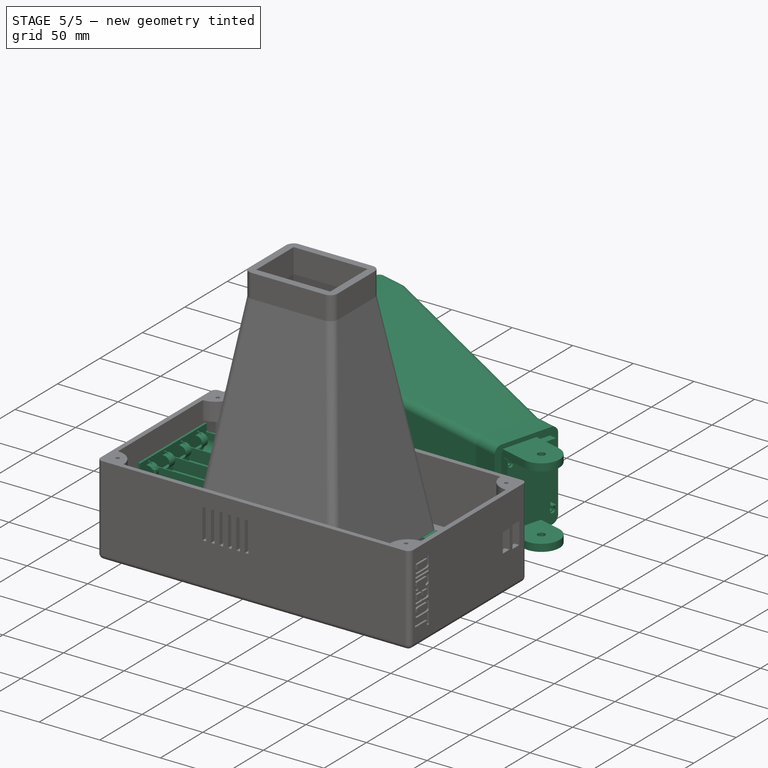
[diagram: stage 5 of 5 — iso view after this stage's code; geometry added in this stage tinted green]
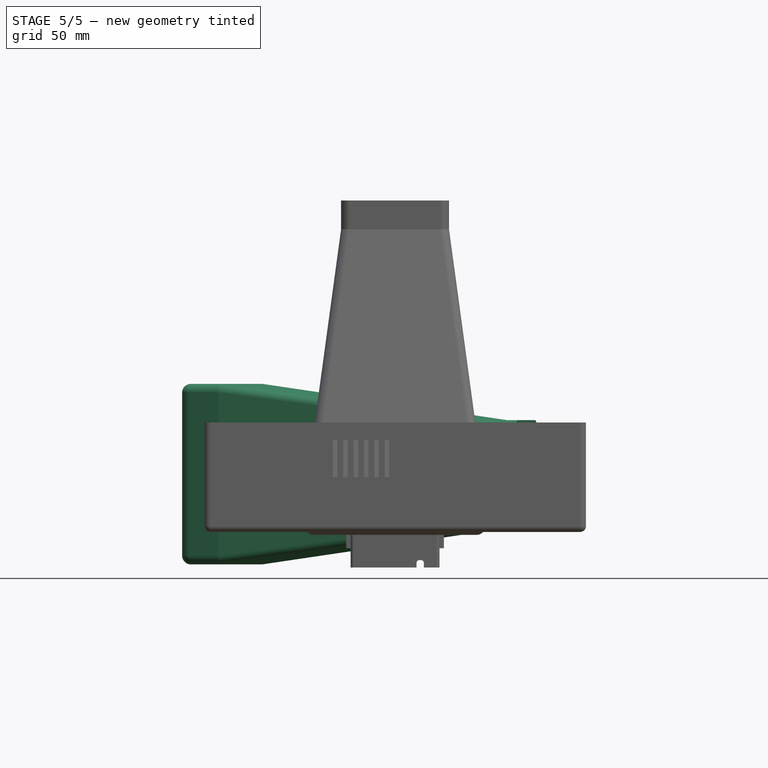
[diagram: stage 5 of 5 — front view after this stage's code; geometry added in this stage tinted green]
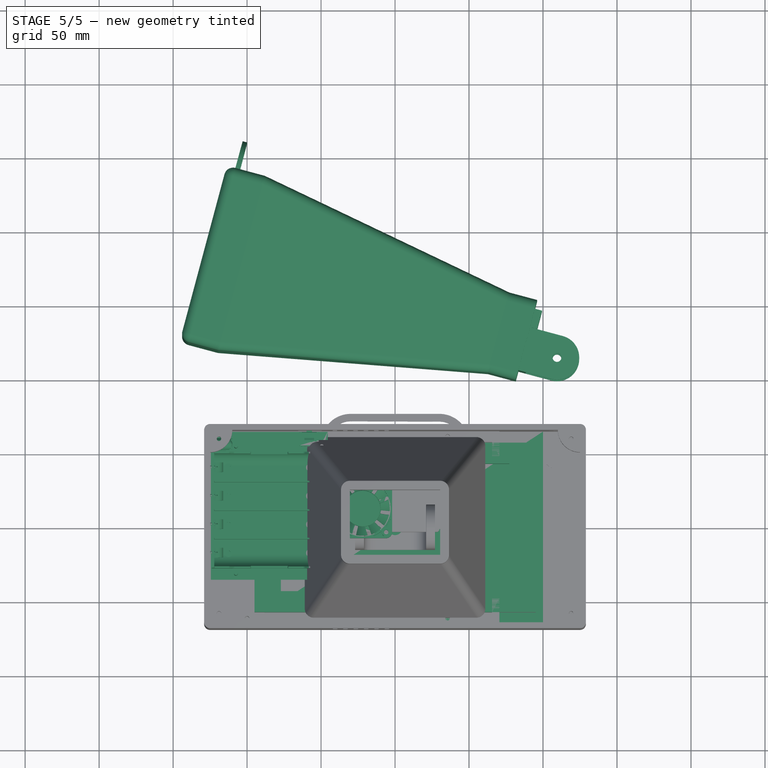
[diagram: stage 5 of 5 — top view after this stage's code; geometry added in this stage tinted green]
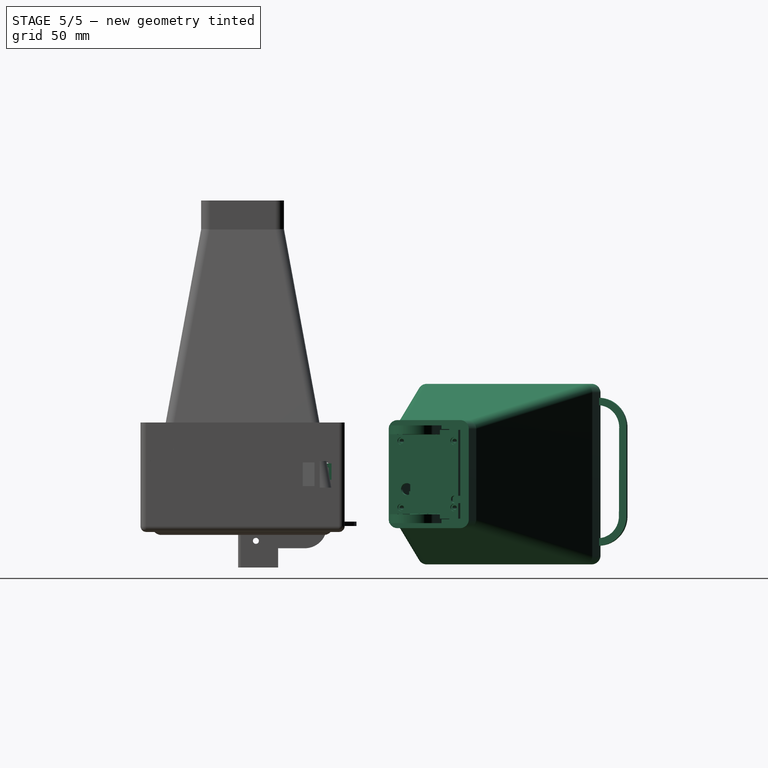
[diagram: stage 5 of 5 — right view after this stage's code; geometry added in this stage tinted green]
FEATURE [Sketcher::SketchObject] Sketch008
  FullyConstrained = true
  MapMode = 5
  Support = -> [XY_Plane008]
  sketch-geometry (8):
    g0: LineSegment StartX=-95 StartY=57.3 StartZ=0 EndX=95 EndY=57.3 EndZ=0
    g1: LineSegment StartX=95 StartY=57.3 StartZ=0 EndX=95 EndY=-57.3 EndZ=0
    g2: LineSegment StartX=95 StartY=-57.3 StartZ=0 EndX=-95 EndY=-57.3 EndZ=0
    g3: LineSegment StartX=-95 StartY=-57.3 StartZ=0 EndX=-95 EndY=57.3 EndZ=0
    g4: LineSegment StartX=-77.14 StartY=43.06 StartZ=0 EndX=77.14 EndY=43.06 EndZ=0
    g5: LineSegment StartX=77.14 StartY=43.06 StartZ=0 EndX=77.14 EndY=-43.06 EndZ=0
    g6: LineSegment StartX=77.14 StartY=-43.06 StartZ=0 EndX=-77.14 EndY=-43.06 EndZ=0
    g7: LineSegment StartX=-77.14 StartY=-43.06 StartZ=0 EndX=-77.14 EndY=43.06 EndZ=0
  constraints (22):
    c: Coincident(g0,g1)
    c: Coincident(g1,g2)
    c: Coincident(g2,g3)
    c: Coincident(g3,g0)
    c: Horizontal(g0)
    c: Horizontal(g2)
    c: Vertical(g1)
    c: Vertical(g3)
    c: Symmetric(g0,g1,g-1)
    c: DistanceX(g2,g2) = 190
    c: DistanceY(g1,g1) = 114.6
    c: Coincident(g4,g5)
    c: Coincident(g5,g6)
    c: Coincident(g6,g7)
    c: Coincident(g7,g4)
    c: Horizontal(g4)
    c: Horizontal(g6)
    c: Vertical(g5)
    c: Vertical(g7)
    c: Symmetric(g5,g4,g-1)
    c: DistanceX(g6,g6) = 154.28
    c: DistanceY(g5,g5) = 86.12
FEATURE [PartDesign::Pad] Pad006
  Direction = (0,0,1)
  Length = 20
  Length2 = 100
  Profile = -> Sketch008
  Refine = true
  Type = 0
FEATURE [PartDesign::Body] Body003
  Group = -> [Sketch008,Pad006]
  Origin = -> Origin008
  Tip = -> Pad006
FEATURE [App::Part] Part003  label="Pantalla"
  Group = -> [Body003]
  Origin = -> Origin007
  Placement = pos=(-30,0,0) rot=(0,0,1;0rad)
FEATURE [Sketcher::SketchObject] Sketch009
  FullyConstrained = true
  MapMode = 5
  Support = -> [XY_Plane009]
  sketch-geometry (4):
    g0: LineSegment StartX=-100 StartY=65 StartZ=0 EndX=100 EndY=65 EndZ=0
    g1: LineSegment StartX=100 StartY=65 StartZ=0 EndX=100 EndY=-65 EndZ=0
    g2: LineSegment StartX=100 StartY=-65 StartZ=0 EndX=-100 EndY=-65 EndZ=0
    g3: LineSegment StartX=-100 StartY=-65 StartZ=0 EndX=-100 EndY=65 EndZ=0
  constraints (11):
    c: Coincident(g0,g1)
    c: Coincident(g1,g2)
    c: Coincident(g2,g3)
    c: Coincident(g3,g0)
    c: Horizontal(g0)
    c: Horizontal(g2)
    c: Vertical(g1)
    c: Vertical(g3)
    c: Symmetric(g0,g1,g-1)
    c: DistanceX(g0,g0) = 200
    c: DistanceY(g1,g1) = 130
FEATURE [PartDesign::Pad] Pad007
  Direction = (0,0,1)
  Length = 5
  Length2 = 10
  Profile = -> Sketch009
  ReferenceAxis = -> Sketch009 [N_Axis]
  Type = 0
FEATURE [Part::Feature] Solid
  shape: bbox 40 x 10 x 40 mm, 104 faces (baked)
FEATURE [Part::Feature] Solid001
  shape: bbox 37.68 x 7.505 x 37.45 mm, 115 faces (baked)
FEATURE [Part::Compound2] Compound001  label="40mm fan v2"
  Links = -> [Solid,Solid001]
  Placement = pos=(-22,12,59) rot=(1,0,0;1.5708rad)
FEATURE [Part::Feature] Part__Feature  label="Cell Holder v5"
  Placement = pos=(-59,-17.6438,-12.6772) rot=(0,0,1;1.5708rad)
  shape: bbox 83.7 x 78.6 x 21 mm, 228 faces, 9 solids (baked)
FEATURE [Sketcher::SketchObject] Sketch006
  FullyConstrained = true
  MapMode = 5
  Support = -> [XY_Plane006]
  sketch-geometry (4):
    g0: LineSegment StartX=-50 StartY=39.5 StartZ=0 EndX=50 EndY=39.5 EndZ=0
    g1: LineSegment StartX=50 StartY=39.5 StartZ=0 EndX=50 EndY=-39.5 EndZ=0
    g2: LineSegment StartX=50 StartY=-39.5 StartZ=0 EndX=-50 EndY=-39.5 EndZ=0
    g3: LineSegment StartX=-50 StartY=-39.5 StartZ=0 EndX=-50 EndY=39.5 EndZ=0
  constraints (11):
    c: Coincident(g0,g1)
    c: Coincident(g1,g2)
    c: Coincident(g2,g3)
    c: Coincident(g3,g0)
    c: Horizontal(g0)
    c: Horizontal(g2)
    c: Vertical(g1)
    c: Vertical(g3)
    c: Symmetric(g0,g1,g-1)
    c: DistanceX(g2,g2) = 100
    c: DistanceY(g1,g1) = 79
FEATURE [PartDesign::Pad] Pad004
  Direction = (0,0,1)
  Length = 1
  Length2 = 100
  Offset = 2
  Profile = -> Sketch006
  Refine = true
  Reversed = true
  Type = 0
FEATURE [Sketcher::SketchObject] Sketch007
  ExternalGeometry = -> [Pad004]
  FullyConstrained = true
  MapMode = 5
  Support = -> [Pad004]
  sketch-geometry (12):
    g0: Circle CenterX=-46 CenterY=22.5 CenterZ=0 NormalX=0 NormalY=0 NormalZ=1 AngleXU=0 Radius=1.25
    g1: LineSegment StartX=-46 StartY=22.5 StartZ=0 EndX=-46 EndY=39.5 EndZ=0
    g2: LineSegment StartX=-46 StartY=22.5 StartZ=0 EndX=-50 EndY=22.5 EndZ=0
    g3: Circle CenterX=40 CenterY=22.5 CenterZ=0 NormalX=0 NormalY=0 NormalZ=1 AngleXU=0 Radius=1.25
    g4: LineSegment StartX=40 StartY=22.5 StartZ=0 EndX=40 EndY=39.5 EndZ=0
    g5: LineSegment StartX=40 StartY=22.5 StartZ=0 EndX=50 EndY=22.5 EndZ=0
    g6: Circle CenterX=-46 CenterY=-35.5 CenterZ=0 NormalX=0 NormalY=0 NormalZ=1 AngleXU=0 Radius=1.25
    g7: LineSegment StartX=-46 StartY=-35.5 StartZ=0 EndX=-46 EndY=-39.5 EndZ=0
    g8: LineSegment StartX=-46 StartY=-35.5 StartZ=0 EndX=-50 EndY=-35.5 EndZ=0
    g9: Circle CenterX=40 CenterY=-35.5 CenterZ=0 NormalX=0 NormalY=0 NormalZ=1 AngleXU=0 Radius=1.25
    g10: LineSegment StartX=40 StartY=-35.5 StartZ=0 EndX=40 EndY=-39.5 EndZ=0
    g11: LineSegment StartX=40 StartY=-35.5 StartZ=0 EndX=50 EndY=-35.5 EndZ=0
  constraints (36):
    c: Coincident(g1,g0)
    c: PointOnObject(g1,g-3)
    c: Vertical(g1)
    c: DistanceY(g1,g1) = 17
    c: Radius(g0) = 1.25
    c: Coincident(g2,g0)
    c: PointOnObject(g2,g-4)
    c: Horizontal(g2)
    c: DistanceX(g2,g2) = 4
    c: Radius(g3) = 1.25
    c: Coincident(g4,g3)
    c: PointOnObject(g4,g-3)
    c: Vertical(g4)
    c: DistanceY(g4,g4) = 17
    c: Coincident(g5,g3)
    c: PointOnObject(g5,g-5)
    c: Horizontal(g5)
    c: DistanceX(g5,g5) = 10
    c: Radius(g6) = 1.25
    c: Coincident(g7,g6)
    c: PointOnObject(g7,g-6)
    c: Vertical(g7)
    c: DistanceY(g7,g7) = 4
    c: Coincident(g8,g6)
    c: PointOnObject(g8,g-4)
    c: Horizontal(g8)
    c: DistanceX(g8,g8) = 4
    c: Radius(g9) = 1.25
    c: Coincident(g10,g9)
    c: PointOnObject(g10,g-6)
    c: Vertical(g10)
    c: DistanceY(g10,g10) = 4
    c: Coincident(g11,g9)
    c: PointOnObject(g11,g-5)
    c: Horizontal(g11)
    c: DistanceX(g11,g11) = 10
FEATURE [PartDesign::Pad] Pad005
  BaseFeature = -> Pad004
  Direction = (0,0,1)
  Length = 22
  Length2 = 7
  Profile = -> Sketch007
  ReferenceAxis = -> Sketch007 [N_Axis]
  Refine = true
  Type = 4
FEATURE [PartDesign::Body] Body002
  Group = -> [Sketch006,Pad004,Sketch007,Pad005]
  Origin = -> Origin006
  Tip = -> Pad005
FEATURE [App::Part] Part002  label="Soporte PowerBank"
  Group = -> [Body002]
  Origin = -> Origin005
  Placement = pos=(-59,-14.6438,-12.6772) rot=(0,0,1;1.5708rad)
FEATURE [Part::Feature] Part__Feature006  label="DC Power Jack 5.5mm x 2.1mm"
  Placement = pos=(-95,27,-7) rot=(-0.57735,0.57735,0.57735;4.18879rad)
  shape: bbox 14.62 x 9.77 x 14.38 mm, 201 faces, 6 solids (baked)
FEATURE [Part::Feature] Part__Feature001  label="8SS-Dial (1)"
  shape: bbox 3.7 x 5.35 x 3.6 mm, 23 faces (baked)
FEATURE [Part::Feature] Part__Feature002  label="8SS-Terminal-PCB (Silver)"
  Placement = pos=(4.4,-9.55,0) rot=(0,1,0;1.5708rad)
  shape: bbox 0.8 x 6 x 2.8 mm, 14 faces (baked)
FEATURE [Part::Feature] Part__Feature003  label="8SS-Terminal-PCB (Silver)001"
  Placement = pos=(0,-9.55,0) rot=(0,1,0;1.5708rad)
  shape: bbox 0.8 x 6 x 2.8 mm, 14 faces (baked)
FEATURE [Part::Feature] Part__Feature004  label="8SS-Terminal-PCB (Silver)002"
  Placement = pos=(-4.4,-9.55,0) rot=(0,1,0;1.5708rad)
  shape: bbox 0.8 x 6 x 2.8 mm, 14 faces (baked)
FEATURE [Part::Feature] Part__Feature005  label="8SS-Body-3"
  shape: bbox 13 x 9.85 x 7.9 mm, 176 faces (baked)
FEATURE [App::Part] _SS1022_Z  label="8SS1022-Z"
  Group = -> [Part__Feature001,Part__Feature002,Part__Feature003,Part__Feature004,Part__Feature005]
  Origin = -> Origin004
  Placement = pos=(-32,35,-9) rot=(0,0,1;0rad)
FEATURE [Part::Compound] Compound  label="POWER BANK"
  Links = -> [Part__Feature,Part002,Part__Feature006,_SS1022_Z]
  Placement = pos=(-26,29,45) rot=(0,0,1;0rad)
FEATURE [PartDesign::Fillet] Fillet009
  Base = -> Fillet008 [Edge40]
  BaseFeature = -> Fillet008
  Placement = pos=(0,0,0) rot=(1,0,0;1.5708rad)
  Radius = 2
  SupportTransform = false
  UseAllEdges = false
FEATURE [PartDesign::Fillet] Fillet010
  Base = -> Fillet009 [Edge51]
  BaseFeature = -> Fillet009
  Placement = pos=(0,0,0) rot=(1,0,0;1.5708rad)
  Radius = 2
  SupportTransform = false
  UseAllEdges = false
FEATURE [PartDesign::Fillet] Fillet011
  Base = -> Fillet010 [Edge32]
  BaseFeature = -> Fillet010
  Placement = pos=(0,0,0) rot=(1,0,0;1.5708rad)
  Radius = 2
  SupportTransform = false
  UseAllEdges = false
FEATURE [PartDesign::Pad] Pad026
  BaseFeature = -> Fillet011
  Direction = (0,1,2e-16)
  Length = 20
  Length2 = 10
  Placement = pos=(0,0,0) rot=(1,0,0;1.5708rad)
  Profile = -> Sketch052
  ReferenceAxis = -> Sketch052 [N_Axis]
  Type = 0
FEATURE [PartDesign::Plane] DatumPlane002
  Length = 77.8288
  MapMode = 5
  Placement = pos=(0,7.2e-15,0) rot=(-1,0,0;1.5708rad)
  ResizeMode = 0
  Support = -> [Pad026]
  Width = 64.8288
FEATURE [Sketcher::SketchObject] Sketch057
  ExternalGeometry = -> [Pad026]
  FullyConstrained = true
  MapMode = 5
  Placement = pos=(0,7.2e-15,0) rot=(-1,0,0;1.5708rad)
  Support = -> [DatumPlane002]
  sketch-geometry (8):
    g0: GeomPoint X=-22.5 Y=25 Z=0
    g1: GeomPoint X=22.5 Y=25 Z=0
    g2: Circle CenterX=-22.5 CenterY=25 CenterZ=0 NormalX=0 NormalY=0 NormalZ=1 AngleXU=0 Radius=2.5
    g3: Circle CenterX=22.5 CenterY=25 CenterZ=0 NormalX=0 NormalY=0 NormalZ=1 AngleXU=0 Radius=2.5
    g4: GeomPoint X=-22.5 Y=-12 Z=0
    g5: GeomPoint X=22.5 Y=-12 Z=0
    g6: Circle CenterX=22.5 CenterY=-12 CenterZ=0 NormalX=0 NormalY=0 NormalZ=1 AngleXU=0 Radius=2.5
    g7: Circle CenterX=-22.5 CenterY=-12 CenterZ=0 NormalX=0 NormalY=0 NormalZ=1 AngleXU=0 Radius=2.5
  constraints (16):
    c: PointOnObject(g0,g-3)
    c: PointOnObject(g1,g-3)
    c: DistanceX(g1,g-4) = 2.5
    c: DistanceX(g-5,g0) = 2.5
    c: Coincident(g2,g0)
    c: PointOnObject(g-5,g2)
    c: Coincident(g3,g1)
    c: PointOnObject(g-4,g3)
    c: PointOnObject(g4,g-8)
    c: PointOnObject(g5,g-8)
    c: DistanceX(g5,g-6) = 2.5
    c: DistanceX(g-7,g4) = 2.5
    c: Coincident(g6,g5)
    c: PointOnObject(g-6,g6)
    c: Coincident(g7,g4)
    c: PointOnObject(g-7,g7)
FEATURE [PartDesign::Pad] Pad027
  BaseFeature = -> Pad026
  Direction = (0,1,-4e-16)
  Length = 20
  Length2 = 10
  Placement = pos=(0,0,0) rot=(1,0,0;1.5708rad)
  Profile = -> Sketch057
  ReferenceAxis = -> Sketch057 [N_Axis]
  Type = 0
FEATURE [PartDesign::Plane] DatumPlane003
  Length = 77.8288
  MapMode = 5
  Placement = pos=(0,20,-8.8e-15) rot=(-1,0,0;1.5708rad)
  ResizeMode = 0
  Support = -> [Pad027]
  Width = 64.8288
FEATURE [Sketcher::SketchObject] Sketch058
  ExternalGeometry = -> [Pad027]
  FullyConstrained = true
  MapMode = 5
  Placement = pos=(0,20,-8.8e-15) rot=(-1,0,0;1.5708rad)
  Support = -> [DatumPlane003]
  sketch-geometry (12):
    g0: GeomPoint X=-22.5 Y=25 Z=0
    g1: GeomPoint X=22.5 Y=25 Z=0
    g2: GeomPoint X=-22.5 Y=-12 Z=0
    g3: GeomPoint X=22.5 Y=-12 Z=0
    g4: GeomPoint X=-21 Y=25 Z=0
    g5: GeomPoint X=-21 Y=-12 Z=0
    g6: GeomPoint X=24 Y=-12 Z=0
    g7: GeomPoint X=24 Y=25 Z=0
    g8: Circle CenterX=-22.5 CenterY=25 CenterZ=0 NormalX=0 NormalY=0 NormalZ=1 AngleXU=0 Radius=1.5
    g9: Circle CenterX=22.5 CenterY=25 CenterZ=0 NormalX=0 NormalY=0 NormalZ=1 AngleXU=0 Radius=1.5
    g10: Circle CenterX=22.5 CenterY=-12 CenterZ=0 NormalX=0 NormalY=0 NormalZ=1 AngleXU=0 Radius=1.5
    g11: Circle CenterX=-22.5 CenterY=-12 CenterZ=0 NormalX=0 NormalY=0 NormalZ=1 AngleXU=0 Radius=1.5
  constraints (24):
    c: PointOnObject(g0,g-3)
    c: DistanceX(g-3,g0) = 2.5
    c: PointOnObject(g1,g-4)
    c: PointOnObject(g2,g-5)
    c: PointOnObject(g3,g-6)
    c: DistanceX(g1,g-4) = 2.5
    c: Vertical(g1,g3)
    c: Vertical(g2,g0)
    c: PointOnObject(g4,g-3)
    c: PointOnObject(g5,g-5)
    c: PointOnObject(g6,g-6)
    c: PointOnObject(g7,g-4)
    c: Vertical(g4,g5)
    c: Vertical(g6,g7)
    c: DistanceX(g2,g5) = 1.5
    c: DistanceX(g3,g6) = 1.5
    c: Coincident(g8,g0)
    c: PointOnObject(g4,g8)
    c: Coincident(g9,g1)
    c: PointOnObject(g7,g9)
    c: Coincident(g10,g3)
    c: PointOnObject(g6,g10)
    c: Coincident(g11,g2)
    c: PointOnObject(g5,g11)
FEATURE [PartDesign::Pocket] Pocket024
  BaseFeature = -> Pad027
  Direction = (0,-1,7e-16)
  Length = 20
  Length2 = 5
  Placement = pos=(0,0,0) rot=(1,0,0;1.5708rad)
  Profile = -> Sketch058
  ReferenceAxis = -> Sketch058 [N_Axis]
  Type = 0
FEATURE [Sketcher::SketchObject] Sketch059
  ExternalGeometry = -> [Pocket024]
  FullyConstrained = true
  MapMode = 5
  Placement = pos=(0,0,0) rot=(-1,0,0;1.5708rad)
  Support = -> [Pocket024]
  sketch-geometry (9):
    g0: GeomPoint X=11.5 Y=15 Z=0
    g1: LineSegment StartX=-14.5 StartY=15 StartZ=0 EndX=-11.5 EndY=15 EndZ=0
    g2: LineSegment StartX=-11.5 StartY=15 StartZ=0 EndX=-11.5 EndY=-15 EndZ=0
    g3: LineSegment StartX=-11.5 StartY=-15 StartZ=0 EndX=-14.5 EndY=-15 EndZ=0
    g4: LineSegment StartX=-14.5 StartY=-15 StartZ=0 EndX=-14.5 EndY=15 EndZ=0
    g5: LineSegment StartX=11.5 StartY=15 StartZ=0 EndX=14.5 EndY=15 EndZ=0
    g6: LineSegment StartX=14.5 StartY=15 StartZ=0 EndX=14.5 EndY=-15 EndZ=0
    g7: LineSegment StartX=14.5 StartY=-15 StartZ=0 EndX=11.5 EndY=-15 EndZ=0
    g8: LineSegment StartX=11.5 StartY=-15 StartZ=0 EndX=11.5 EndY=15 EndZ=0
  constraints (27):
    c: DistanceX(g-3,g-1) = 11.5
    c: PointOnObject(g0,g-3)
    c: DistanceX(g-3,g0) = 23
    c: Coincident(g1,g2)
    c: Coincident(g2,g3)
    c: Coincident(g3,g4)
    c: Coincident(g4,g1)
    c: Horizontal(g1)
    c: Horizontal(g3)
    c: Vertical(g2)
    c: Vertical(g4)
    c: Coincident(g5,g6)
    c: Coincident(g6,g7)
    c: Coincident(g7,g8)
    c: Coincident(g8,g5)
    c: Horizontal(g5)
    c: Horizontal(g7)
    c: Vertical(g6)
    c: Vertical(g8)
    c: Vertical(g5,g0)
    c: Vertical(g1,g-3)
    c: Horizontal(g5,g0)
    c: Horizontal(g1,g-3)
    c: Horizontal(g7,g2)
    c: DistanceY(g6,g6) = 30
    c: DistanceX(g1,g1) = 3
    c: DistanceX(g5,g5) = 3
FEATURE [PartDesign::Pad] Pad028
  BaseFeature = -> Pocket024
  Direction = (0,1,-4e-16)
  Length = 3
  Length2 = 10
  Placement = pos=(0,0,0) rot=(1,0,0;1.5708rad)
  Profile = -> Sketch059
  ReferenceAxis = -> Sketch059 [N_Axis]
  Type = 0
FEATURE [Sketcher::SketchObject] Sketch044
  ExternalGeometry = -> [Pad028]
  FullyConstrained = false
  MapMode = 5
  Placement = pos=(30,0,0) rot=(0.707107,0,0.707107;3.14159rad)
  Support = -> [Pad028]
  sketch-geometry (6):
    g0: GeomPoint X=5 Y=-9 Z=0
    g1: GeomPoint X=-10 Y=-9 Z=0
    g2: GeomPoint X=-8 Y=-9.23834 Z=0
    g3: GeomPoint X=7 Y=-9.06628 Z=0
    g4: Circle CenterX=-10 CenterY=-9 CenterZ=0 NormalX=0 NormalY=0 NormalZ=1 AngleXU=0 Radius=2.01415
    g5: Circle CenterX=5 CenterY=-9 CenterZ=0 NormalX=0 NormalY=0 NormalZ=1 AngleXU=0 Radius=2.0011
  constraints (10):
    c: DistanceX(g0,g-3) = 10
    c: DistanceY(g0,g-4) = 10
    c: Horizontal(g0,g1)
    c: DistanceX(g1,g0) = 15
    c: DistanceX(g0,g3) = 2
    c: DistanceX(g1,g2) = 2
    c: Coincident(g4,g1)
    c: PointOnObject(g2,g4)
    c: Coincident(g5,g0)
    c: PointOnObject(g3,g5)
FEATURE [PartDesign::Pocket] Pocket016
  BaseFeature = -> Pad028
  Direction = (-1,0,2e-16)
  Length = 70
  Length2 = 5
  Placement = pos=(0,0,0) rot=(1,0,0;1.5708rad)
  Profile = -> Sketch044
  ReferenceAxis = -> Sketch044 [N_Axis]
  Type = 0
FEATURE [Sketcher::SketchObject] Sketch045
  ExternalGeometry = -> [Pocket016]
  FullyConstrained = true
  MapMode = 5
  Placement = pos=(0,-3,7e-16) rot=(1,0,0;1.5708rad)
  Support = -> [Pocket016]
  sketch-geometry (18):
    g0: GeomPoint X=-24.4 Y=0 Z=0
    g1: GeomPoint X=24.4 Y=0 Z=0
    g2: GeomPoint X=-24.4 Y=6 Z=0
    g3: GeomPoint X=-24.4 Y=-6 Z=0
    g4: GeomPoint X=24.4 Y=-6 Z=0
    g5: GeomPoint X=24.4 Y=6 Z=0
    g6: GeomPoint X=-21.8 Y=6 Z=0
    g7: GeomPoint X=-21.8 Y=0 Z=0
    g8: GeomPoint X=-21.8 Y=-6 Z=0
    g9: GeomPoint X=27 Y=-6 Z=0
    g10: GeomPoint X=27 Y=0 Z=0
    g11: GeomPoint X=27 Y=6 Z=0
    g12: Circle CenterX=-24.4 CenterY=6 CenterZ=0 NormalX=0 NormalY=0 NormalZ=1 AngleXU=0 Radius=2.6
    g13: Circle CenterX=-24.4 CenterY=0 CenterZ=0 NormalX=0 NormalY=0 NormalZ=1 AngleXU=0 Radius=2.6
    g14: Circle CenterX=-24.4 CenterY=-6 CenterZ=0 NormalX=0 NormalY=0 NormalZ=1 AngleXU=0 Radius=2.6
    g15: Circle CenterX=24.4 CenterY=0 CenterZ=0 NormalX=0 NormalY=0 NormalZ=1 AngleXU=0 Radius=2.6
    g16: Circle CenterX=24.4 CenterY=6 CenterZ=0 NormalX=0 NormalY=0 NormalZ=1 AngleXU=0 Radius=2.6
    g17: Circle CenterX=24.4 CenterY=-6 CenterZ=0 NormalX=0 NormalY=0 NormalZ=1 AngleXU=0 Radius=2.6
  constraints (36):
    c: PointOnObject(g0,g-1)
    c: PointOnObject(g1,g-1)
    c: DistanceX(g1,g-3) = 3.6
    c: DistanceX(g-4,g0) = 3.6
    c: Vertical(g5,g1)
    c: Vertical(g4,g1)
    c: Vertical(g3,g0)
    c: Vertical(g2,g0)
    c: DistanceY(g1,g5) = 6
    c: DistanceY(g4,g1) = 6
    c: Horizontal(g4,g3)
    c: Horizontal(g2,g5)
    c: PointOnObject(g7,g-1)
    c: PointOnObject(g10,g-1)
    c: DistanceX(g4,g9) = 2.6
    c: DistanceX(g3,g8) = 2.6
    c: Vertical(g9,g10)
    c: Vertical(g10,g11)
    c: Vertical(g6,g8)
    c: Vertical(g8,g7)
    c: Horizontal(g8,g4)
    c: Horizontal(g9,g4)
    c: Horizontal(g6,g2)
    c: Horizontal(g11,g5)
    c: Coincident(g12,g2)
    c: PointOnObject(g6,g12)
    c: Coincident(g13,g0)
    c: PointOnObject(g7,g13)
    c: Coincident(g14,g3)
    c: PointOnObject(g8,g14)
    c: Coincident(g15,g1)
    c: PointOnObject(g10,g15)
    c: Coincident(g16,g5)
    c: PointOnObject(g11,g16)
    c: Coincident(g17,g4)
    c: PointOnObject(g9,g17)
FEATURE [PartDesign::Pocket] Pocket017
  BaseFeature = -> Pocket016
  Direction = (0,1,-7e-16)
  Length = 5
  Length2 = 5
  Placement = pos=(0,0,0) rot=(1,0,0;1.5708rad)
  Profile = -> Sketch045
  ReferenceAxis = -> Sketch045 [N_Axis]
  Type = 0
FEATURE [Sketcher::SketchObject] Sketch046
  ExternalGeometry = -> [Pocket017]
  FullyConstrained = true
  MapMode = 5
  Placement = pos=(0,-6.4e-15,-28) rot=(1,0,0;3.14159rad)
  Support = -> [Pocket017]
  sketch-geometry (4):
    g0: LineSegment StartX=19.5 StartY=-5 StartZ=0 EndX=14.5 EndY=-5 EndZ=0
    g1: LineSegment StartX=14.5 StartY=-5 StartZ=0 EndX=14.5 EndY=-20 EndZ=0
    g2: LineSegment StartX=14.5 StartY=-20 StartZ=0 EndX=19.5 EndY=-20 EndZ=0
    g3: LineSegment StartX=19.5 StartY=-20 StartZ=0 EndX=19.5 EndY=-5 EndZ=0
  constraints (11):
    c: Coincident(g0,g1)
    c: Coincident(g1,g2)
    c: Coincident(g2,g3)
    c: Coincident(g3,g0)
    c: Horizontal(g0)
    c: Horizontal(g2)
    c: Vertical(g1)
    c: Vertical(g3)
    c: Coincident(g0,g-3)
    c: Horizontal(g-4,g2)
    c: DistanceX(g0,g0) = 5
FEATURE [PartDesign::Pocket] Pocket018
  BaseFeature = -> Pocket017
  Direction = (0,9e-16,1)
  Length = 3
  Length2 = 5
  Placement = pos=(0,0,0) rot=(1,0,0;1.5708rad)
  Profile = -> Sketch046
  ReferenceAxis = -> Sketch046 [N_Axis]
  Type = 0
FEATURE [PartDesign::Pad] Pad029
  BaseFeature = -> Pocket018
  Direction = (1,0,0)
  Length = 3
  Length2 = 10
  Placement = pos=(0,0,0) rot=(1,0,0;1.5708rad)
  Profile = -> Pocket018 [Face82]
  Type = 0
FEATURE [PartDesign::Pad] Pad030
  BaseFeature = -> Pad029
  Direction = (1,0,0)
  Length = 3
  Length2 = 10
  Placement = pos=(0,0,0) rot=(1,0,0;1.5708rad)
  Profile = -> Pad029 [Face81]
  Type = 0
FEATURE [PartDesign::Pad] Pad031
  BaseFeature = -> Pad030
  Direction = (1,0,0)
  Length = 3
  Length2 = 10
  Placement = pos=(0,0,0) rot=(1,0,0;1.5708rad)
  Profile = -> Pad030 [Face49]
  Type = 0
FEATURE [PartDesign::Pad] Pad032
  BaseFeature = -> Pad031
  Direction = (-1,0,0)
  Length = 3
  Length2 = 10
  Placement = pos=(0,0,0) rot=(1,0,0;1.5708rad)
  Profile = -> Pad031 [Face10]
  Type = 0
FEATURE [PartDesign::Pad] Pad033
  BaseFeature = -> Pad032
  Direction = (-1,0,0)
  Length = 3
  Length2 = 10
  Placement = pos=(0,0,0) rot=(1,0,0;1.5708rad)
  Profile = -> Pad032 [Face22]
  Type = 0
FEATURE [PartDesign::Pad] Pad034
  BaseFeature = -> Pad033
  Direction = (-1,0,0)
  Length = 3
  Length2 = 10
  Placement = pos=(0,0,0) rot=(1,0,0;1.5708rad)
  Profile = -> Pad033 [Face9]
  Type = 0
FEATURE [PartDesign::Body] Body009  label="porta_muestra"
  Group = -> [Sketch037,Pad021,DatumPlane005,Sketch040,Pad022]
  Origin = -> Origin014
  Placement = pos=(-1.68372,-201,-9.16845) rot=(-1,0,0;1.5708rad)
  Tip = -> Pad022
FEATURE [Part::Compound] Compound004  label="CONO "
  Links = -> [Body001,Body007,Body008,Body009]
  Placement = pos=(68.8811,124.884,35) rot=(0.621515,0.476905,-0.621515;2.25159rad)
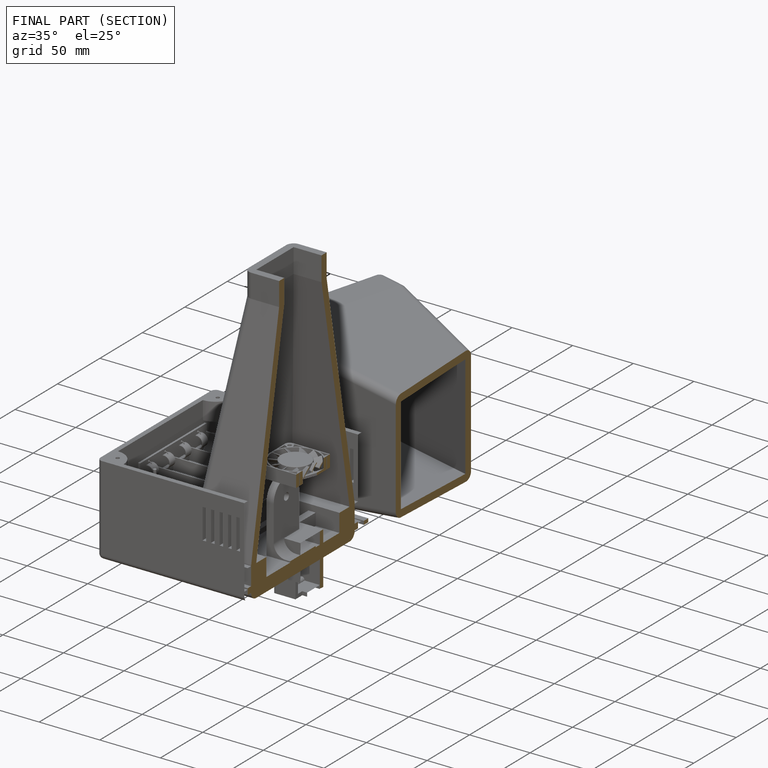
[diagram: finished part — half-section view (interior)]
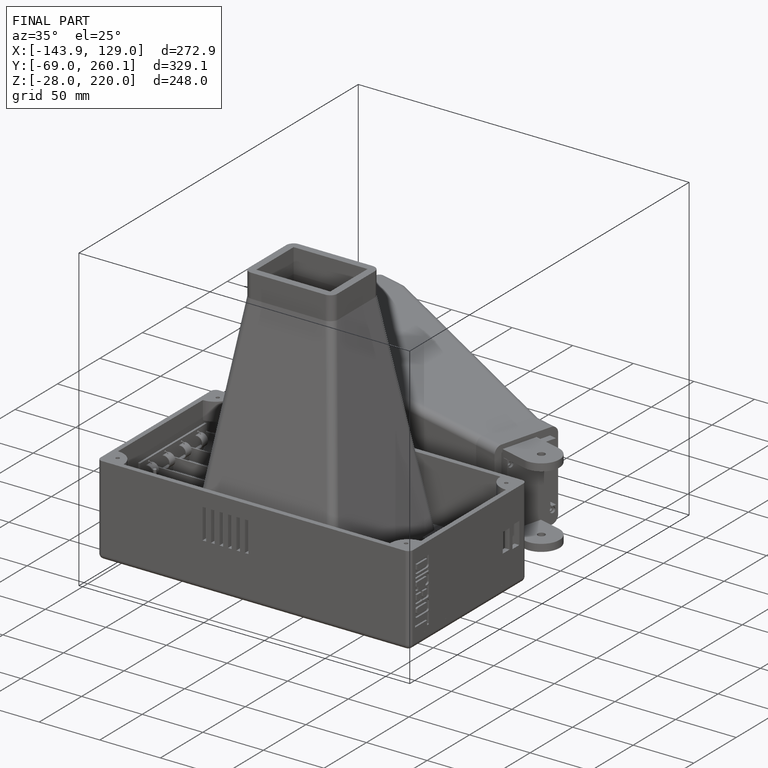
[diagram: finished part — iso view with bounding-box wireframe]
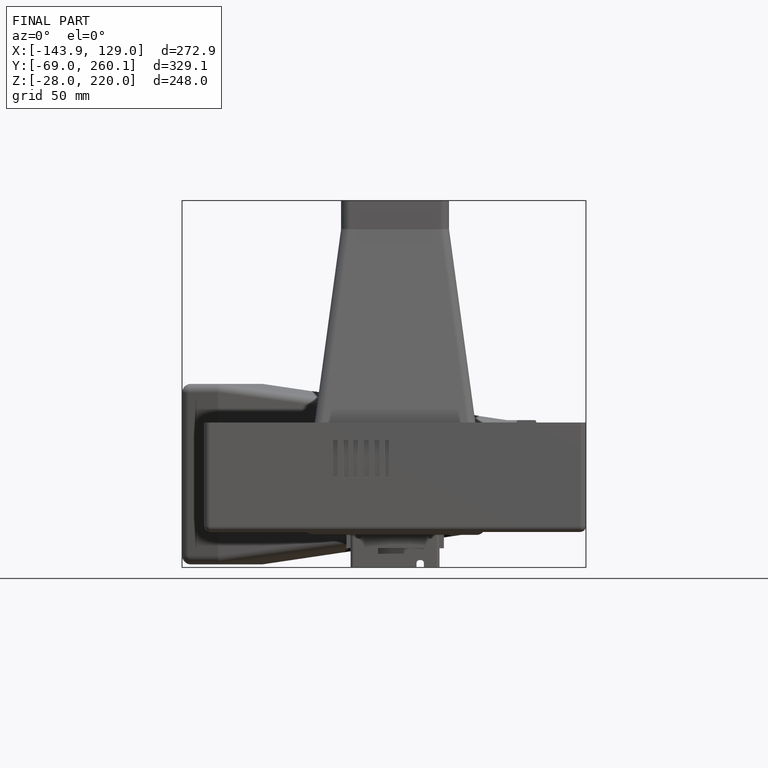
[diagram: finished part — front view with bounding-box wireframe]
